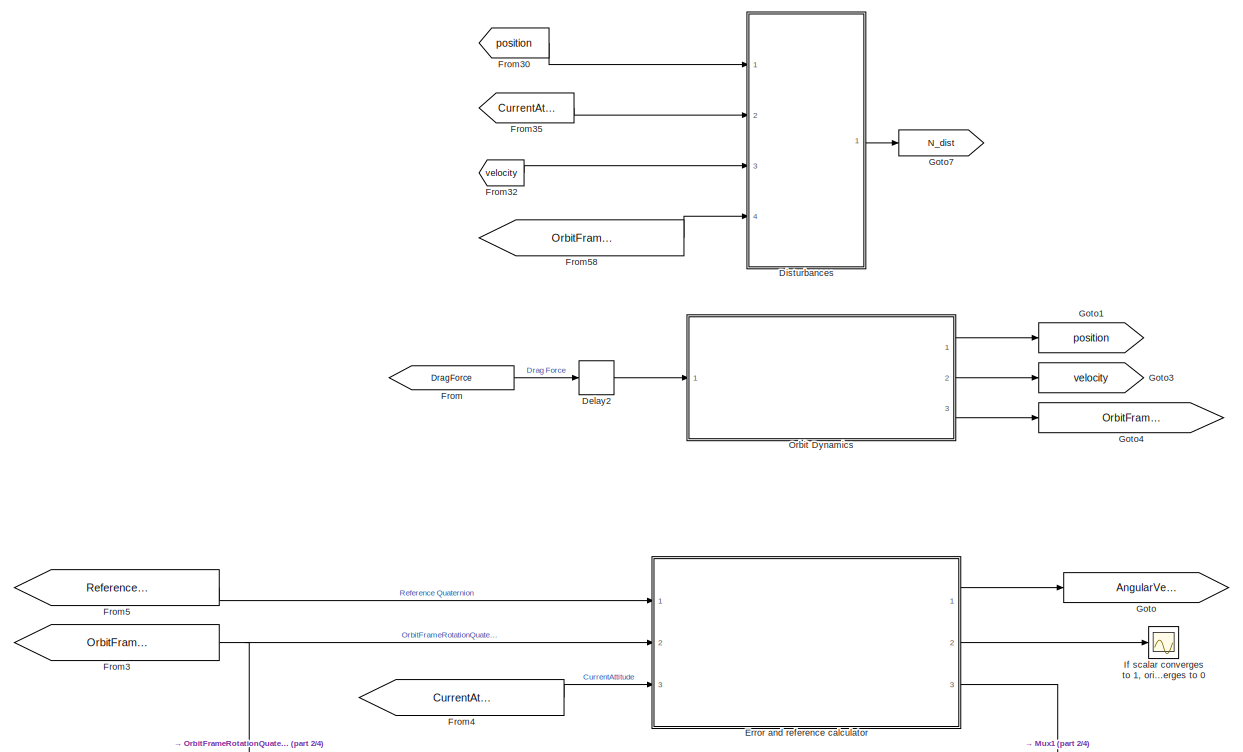
[diagram: root canvas - part 1/4, top right region]
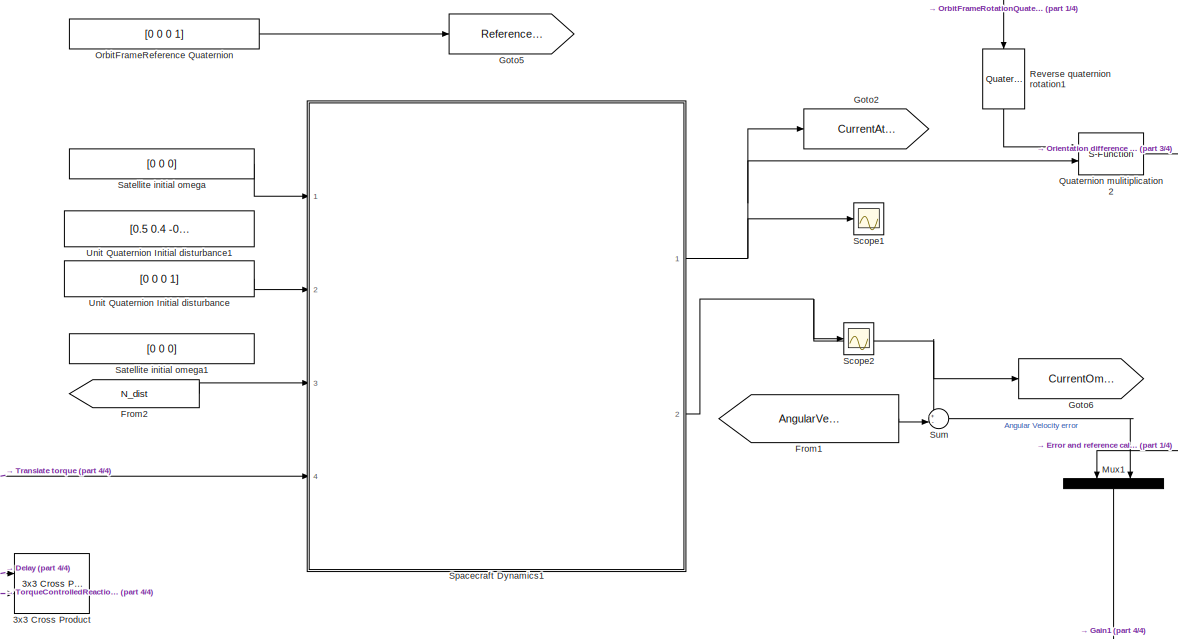
[diagram: root canvas - part 2/4, bottom center region]
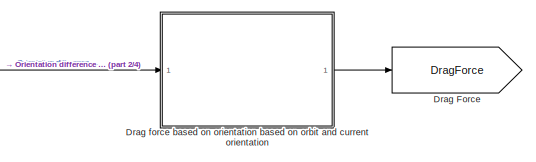
[diagram: root canvas - part 3/4, middle right region]
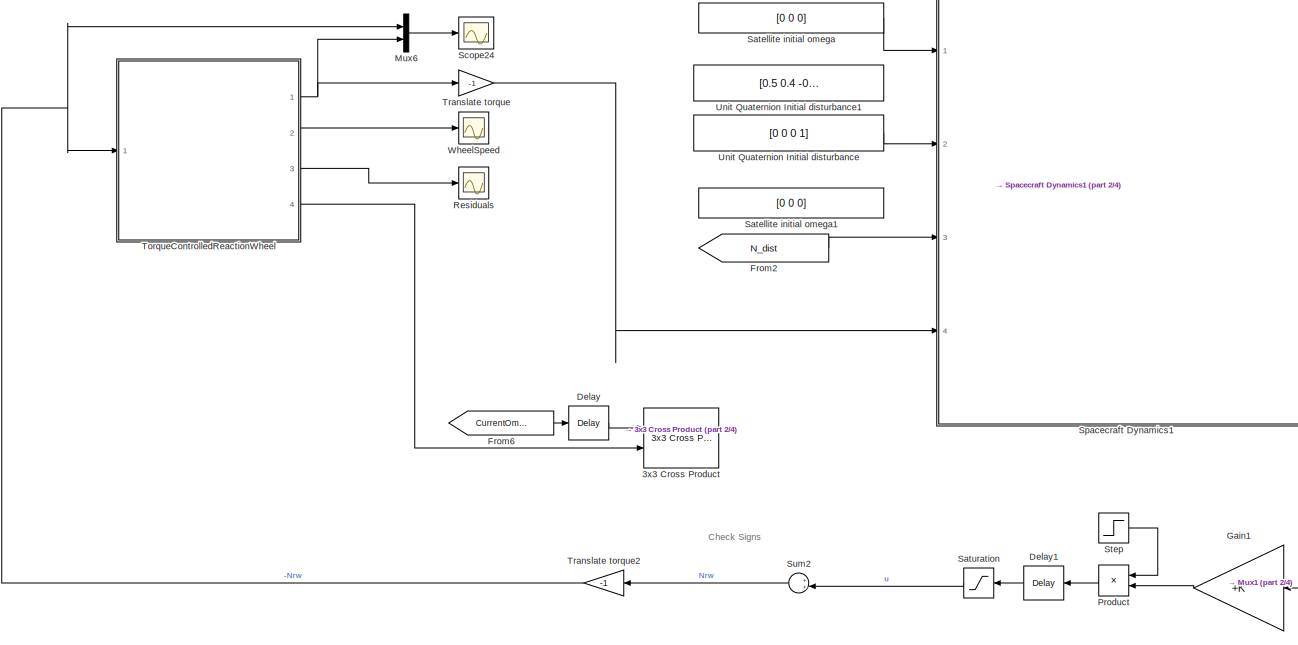
[diagram: root canvas - part 4/4, bottom left region]
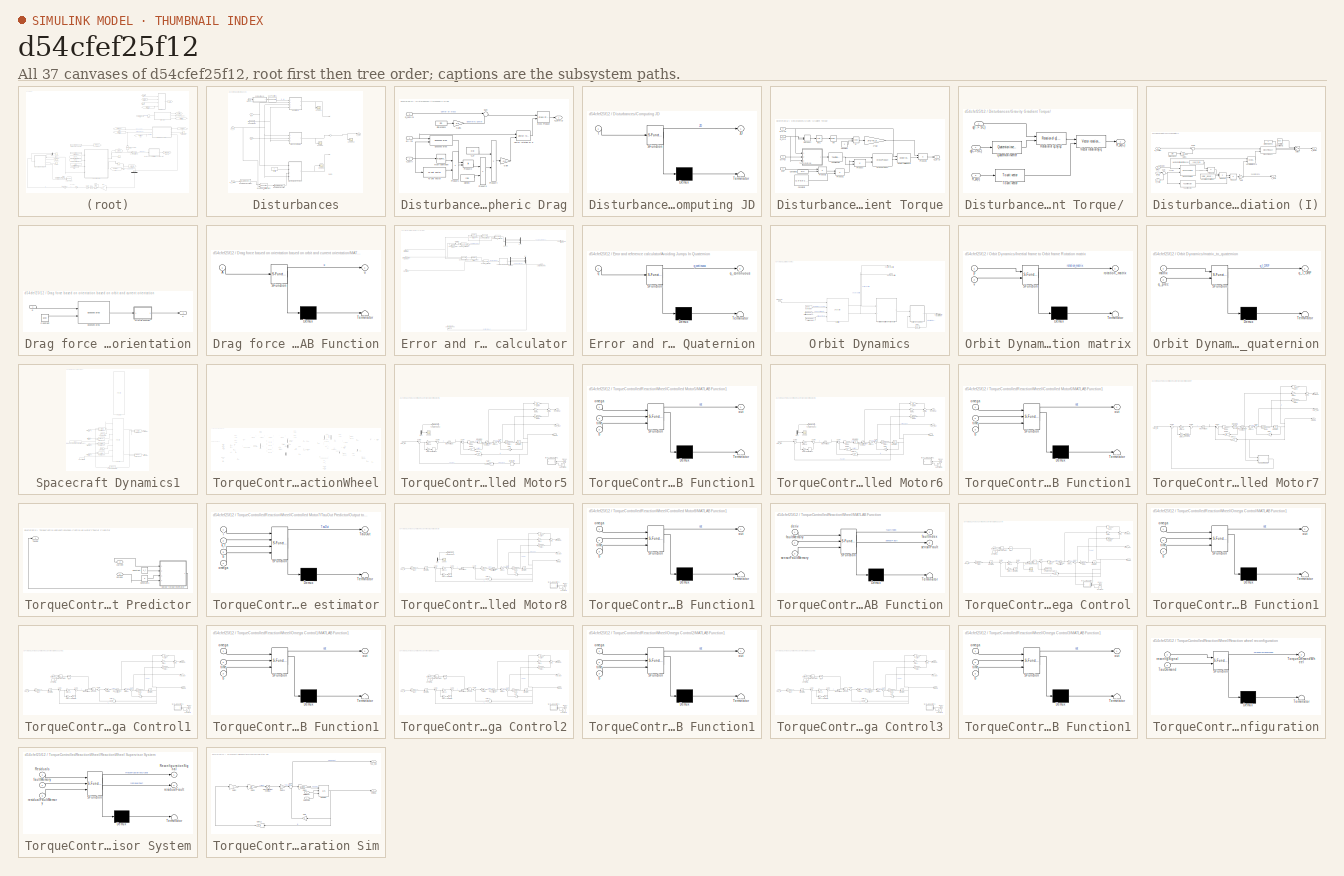
[diagram: thumbnail index - all 37 canvases of the model, root first then tree order]
MODEL slx_d54cfef25f12
KIND model
CONFIG AbsTol = auto
CONFIG EnableMultiTasking = off
CONFIG FixedStep = 1e-2
CONFIG MaxStep = 1e-1
CONFIG MinStep = 1e-6
CONFIG RelTol = 1e-9
CONFIG SampleTimeConstraint = Unconstrained
CONFIG Solver = VariableStepAuto
CONFIG SolverName = VariableStepAuto
CONFIG StartTime = 0.0
CONFIG StopTime = 100
BLOCK [Reference] 3x3 Cross Product  REF=sharedutil/3x3 Cross Product
  Ports = [2, 1]
  SourceBlock = sharedutil/3x3 Cross Product
  SourceProductBaseCode = AE
  SourceProductName = Aerospace Blockset
  SourceType = CrossProduct
BLOCK [Delay] Delay
  DelayLength = 1
  InitialCondition = [0;0;0]
  InputPortMap = u0
  Ports = [1, 1]
BLOCK [Delay] Delay1
  DelayLength = 1
  InitialCondition = [0;0;0]
  InputPortMap = u0
  Ports = [1, 1]
BLOCK [Delay] Delay2
  DelayLength = 1
  InitialCondition = 0
  InputPortMap = u0
  Ports = [1, 1]
BLOCK [SubSystem] Disturbances
  Ports = [4, 1]
  RequestExecContextInheritance = off
BLOCK [SubSystem] Disturbances/Atmospheric Drag
  AncestorBlock = aausat3_lib/Disturbances/Atmospheric
  Ports = [3, 1]
  RequestExecContextInheritance = off
BLOCK [Constant] Disturbances/Atmospheric Drag/C_D
  Value = Cd
BLOCK [Reference] Disturbances/Atmospheric Drag/Cross Product  REF=aausat3_lib/Math Utilities/Vector operations/Cross Product  (lib defined in mdl_4157f6465749, slx_d9305f96731e)
  Ports = [2, 1]
  SourceBlock = aausat3_lib/Math Utilities/Vector operations/Cross Product
  SourceProductName = AAUSAT3
  SourceType = SubSystem
BLOCK [Constant] Disturbances/Atmospheric Drag/Density
  Value = rho
BLOCK [Constant] Disturbances/Atmospheric Drag/Dimensions
  Value = Dim
BLOCK [Reference] Disturbances/Atmospheric Drag/Exposed area  REF=aausat3_lib/Other Model Utilities/Exposed area  (lib defined in mdl_4157f6465749, slx_d9305f96731e)
  Ports = [2, 1]
  SourceBlock = aausat3_lib/Other Model Utilities/Exposed area
  SourceProductName = AAUSAT3
BLOCK [Gain] Disturbances/Atmospheric Drag/Gain
  Gain = -1/2
BLOCK [Gain] Disturbances/Atmospheric Drag/Gain1
  Gain = 1/2
BLOCK [Outport] Disturbances/Atmospheric Drag/N_atm(S)
  IconDisplay = Port number
BLOCK [Product] Disturbances/Atmospheric Drag/Product1
  InputSameDT = off
  Ports = [2, 1]
  RndMeth = Floor
BLOCK [Product] Disturbances/Atmospheric Drag/Product2
  InputSameDT = off
  Ports = [2, 1]
  RndMeth = Floor
BLOCK [Product] Disturbances/Atmospheric Drag/Product3
  InputSameDT = off
  Ports = [2, 1]
  RndMeth = Floor
BLOCK [Product] Disturbances/Atmospheric Drag/Product4
  InputSameDT = off
  Ports = [2, 1]
  RndMeth = Floor
BLOCK [Inport] Disturbances/Atmospheric Drag/R_com(S)
  IconDisplay = Port number
  Port = 3
BLOCK [Sum] Disturbances/Atmospheric Drag/Sum
  IconShape = round
  InputSameDT = off
  Inputs = |-+
  OutDataTypeStr = Inherit: Inherit via internal rule
  Ports = [2, 1]
  SaturateOnIntegerOverflow = off
BLOCK [Reference] Disturbances/Atmospheric Drag/To unit vector  REF=aausat3_lib/Math Utilities/Vector operations/To unit vector  (lib defined in mdl_4157f6465749, slx_d9305f96731e)
  Ports = [1, 1]
  SourceBlock = aausat3_lib/Math Utilities/Vector operations/To unit vector
  SourceProductName = AAUSAT3
  SourceType = SubSystem
BLOCK [Inport] Disturbances/Atmospheric Drag/V_sc(I)
  IconDisplay = Port number
  Port = 2
BLOCK [Reference] Disturbances/Atmospheric Drag/Vector rotation by q  REF=aausat3_lib/Math Utilities/Quaternion operations/Vector rotation by q  (lib defined in mdl_4157f6465749, slx_d9305f96731e)
  Ports = [2, 1]
  SourceBlock = aausat3_lib/Math Utilities/Quaternion operations/Vector rotation by q
  SourceProductName = AAUSAT3
  SourceType = SubSystem
BLOCK [Math] Disturbances/Atmospheric Drag/math operation
  Operator = magnitude^2
  Ports = [1, 1]
BLOCK [Inport] Disturbances/Atmospheric Drag/q(I->S)
  IconDisplay = Port number
BLOCK [Clock] Disturbances/Clock1
  Decimation = 100
BLOCK [SubSystem] Disturbances/Computing JD
  ErrorFcn = Stateflow.Translate.translate
  PermitHierarchicalResolution = ExplicitOnly
  Ports = [1, 1]
  RequestExecContextInheritance = off
  SFBlockType = MATLAB Function
  TreatAsAtomicUnit = on
BLOCK [Demux] Disturbances/Computing JD/ Demux 
  Outputs = 1
  Ports = [1, 1]
BLOCK [S-Function] Disturbances/Computing JD/ SFunction 
  EnableBusSupport = on
  FunctionName = sf_sfun
  PortCounts = [1 2]
  Ports = [1, 2]
  SFcnIsStateOwnerBlock = off
  SFunctionDeploymentMode = off
  Tag = Stateflow S-Function faultHandling_combined 82
BLOCK [Terminator] Disturbances/Computing JD/ Terminator 
BLOCK [Outport] Disturbances/Computing JD/JD
  IconDisplay = Port number
BLOCK [Inport] Disturbances/Computing JD/t
  IconDisplay = Port number
BLOCK [Constant] Disturbances/Constant20
  Value = [0.0493,0.0972,0.0549]
BLOCK [SubSystem] Disturbances/Gravity Gradient Torque
  AncestorBlock = aausat3_lib/Disturbances/Gravity Gradient Torque
  Ports = [4, 1]
  RequestExecContextInheritance = off
BLOCK [SubSystem] Disturbances/Gravity Gradient Torque/ 
  Ports = [3, 1]
  RequestExecContextInheritance = off
BLOCK [Reference] Disturbances/Gravity Gradient Torque/ /Quaternion inverter  REF=aausat3_lib/Math Utilities/Quaternion operations/Quaternion inverter  (lib defined in mdl_4157f6465749, slx_d9305f96731e)
  Ports = [1, 1]
  SourceBlock = aausat3_lib/Math Utilities/Quaternion operations/Quaternion inverter
  SourceProductName = AAUSAT3
  SourceType = SubSystem
BLOCK [Outport] Disturbances/Gravity Gradient Torque/ /R_sc(C)
  IconDisplay = Port number
BLOCK [Inport] Disturbances/Gravity Gradient Torque/ /R_sc(I)
  IconDisplay = Port number
  Port = 3
BLOCK [Reference] Disturbances/Gravity Gradient Torque/ /Rotation of q1 by q2  REF=aausat3_lib/Math Utilities/Quaternion operations/Rotation of q1 by q2  (lib defined in mdl_4157f6465749, slx_d9305f96731e)
  Ports = [2, 1]
  SourceBlock = aausat3_lib/Math Utilities/Quaternion operations/Rotation of q1 by q2
  SourceProductName = AAUSAT3
  SourceType = SubSystem
BLOCK [Reference] Disturbances/Gravity Gradient Torque/ /To unit vector  REF=aausat3_lib/Math Utilities/Vector operations/To unit vector  (lib defined in mdl_4157f6465749, slx_d9305f96731e)
  Ports = [1, 1]
  SourceBlock = aausat3_lib/Math Utilities/Vector operations/To unit vector
  SourceProductName = AAUSAT3
  SourceType = SubSystem
BLOCK [Reference] Disturbances/Gravity Gradient Torque/ /Vector rotation by q  REF=aausat3_lib/Math Utilities/Quaternion operations/Vector rotation by q  (lib defined in mdl_4157f6465749, slx_d9305f96731e)
  Ports = [2, 1]
  SourceBlock = aausat3_lib/Math Utilities/Quaternion operations/Vector rotation by q
  SourceProductName = AAUSAT3
  SourceType = SubSystem
BLOCK [Inport] Disturbances/Gravity Gradient Torque/ /q(C->SC)
  IconDisplay = Port number
BLOCK [Inport] Disturbances/Gravity Gradient Torque/ /q(I -> SC)
  IconDisplay = Port number
  Port = 2
BLOCK [Gain] Disturbances/Gravity Gradient Torque/3*GM
  Gain = 3*G*M_earth
BLOCK [Constant] Disturbances/Gravity Gradient Torque/Constant
  Value = 3
BLOCK [Constant] Disturbances/Gravity Gradient Torque/Constant1
  Value = [1 0 0;0 1 0;0 0 1]
BLOCK [Constant] Disturbances/Gravity Gradient Torque/Constant2
  Value = [1 1 1]
  VectorParams1D = off
BLOCK [Reference] Disturbances/Gravity Gradient Torque/Cross Product  REF=aausat3_lib/Math Utilities/Vector operations/Cross Product  (lib defined in mdl_4157f6465749, slx_d9305f96731e)
  Ports = [2, 1]
  SourceBlock = aausat3_lib/Math Utilities/Vector operations/Cross Product
  SourceProductName = AAUSAT3
  SourceType = SubSystem
BLOCK [DotProduct] Disturbances/Gravity Gradient Torque/Dot roduct
  OutDataTypeStr = Inherit: Inherit via internal rule
BLOCK [Inport] Disturbances/Gravity Gradient Torque/I(C)
  IconDisplay = Port number
  Port = 2
BLOCK [Outport] Disturbances/Gravity Gradient Torque/N_gr(S)
  IconDisplay = Port number
BLOCK [Product] Disturbances/Gravity Gradient Torque/Product
  InputSameDT = off
  Multiplication = Matrix(*)
  Ports = [2, 1]
  RndMeth = Floor
BLOCK [Product] Disturbances/Gravity Gradient Torque/Product1
  InputSameDT = off
  Ports = [2, 1]
  RndMeth = Floor
BLOCK [Product] Disturbances/Gravity Gradient Torque/Product2
  InputSameDT = off
  Multiplication = Matrix(*)
  Ports = [2, 1]
  RndMeth = Floor
BLOCK [Product] Disturbances/Gravity Gradient Torque/Product3
  InputSameDT = off
  Ports = [2, 1]
  RndMeth = Floor
BLOCK [Math] Disturbances/Gravity Gradient Torque/R
  Operator = pow
  Ports = [2, 1]
BLOCK [Inport] Disturbances/Gravity Gradient Torque/R_sc(I)
  IconDisplay = Port number
BLOCK [Reference] Disturbances/Gravity Gradient Torque/To unit vector  REF=aausat3_lib/Math Utilities/Vector operations/To unit vector  (lib defined in mdl_4157f6465749, slx_d9305f96731e)
  Ports = [1, 1]
  SourceBlock = aausat3_lib/Math Utilities/Vector operations/To unit vector
  SourceProductName = AAUSAT3
  SourceType = SubSystem
BLOCK [Reference] Disturbances/Gravity Gradient Torque/Vector rotation by q  REF=aausat3_lib/Math Utilities/Quaternion operations/Vector rotation by q  (lib defined in mdl_4157f6465749, slx_d9305f96731e)
  Ports = [2, 1]
  SourceBlock = aausat3_lib/Math Utilities/Quaternion operations/Vector rotation by q
  SourceProductName = AAUSAT3
  SourceType = SubSystem
BLOCK [Math] Disturbances/Gravity Gradient Torque/inv
  Operator = reciprocal
  Ports = [1, 1]
BLOCK [Math] Disturbances/Gravity Gradient Torque/inv1
  Operator = sqrt
  Ports = [1, 1]
BLOCK [Inport] Disturbances/Gravity Gradient Torque/q(C->S)
  IconDisplay = Port number
  Port = 3
BLOCK [Inport] Disturbances/Gravity Gradient Torque/q(I->S)
  IconDisplay = Port number
  Port = 4
BLOCK [Constant] Disturbances/Inertia
  Value = I
BLOCK [Outport] Disturbances/N_dist
  IconDisplay = Port number
BLOCK [Reference] Disturbances/Quaternion inverter  REF=aausat3_lib/Math Utilities/Quaternion operations/Quaternion inverter  (lib defined in mdl_4157f6465749, slx_d9305f96731e)
  Ports = [1, 1]
  SourceBlock = aausat3_lib/Math Utilities/Quaternion operations/Quaternion inverter
  SourceProductName = AAUSAT3
  SourceType = SubSystem
BLOCK [Reference] Disturbances/Quaternion inverter10  REF=aausat3_lib/Math Utilities/Quaternion operations/Quaternion inverter  (lib defined in mdl_4157f6465749, slx_d9305f96731e)
  Ports = [1, 1]
  SourceBlock = aausat3_lib/Math Utilities/Quaternion operations/Quaternion inverter
  SourceProductName = AAUSAT3
  SourceType = SubSystem
BLOCK [S-Function] Disturbances/Quaternion mulitiplication6
  EnableBusSupport = off
  FunctionName = qmul
  Ports = [2, 1]
  SFcnIsStateOwnerBlock = off
  SFunctionDeploymentMode = off
BLOCK [SubSystem] Disturbances/Radiation (I)
  AncestorBlock = aausat3_lib/Disturbances/Radiation (I)
  Ports = [4, 2]
  RequestExecContextInheritance = off
BLOCK [Constant] Disturbances/Radiation (I)/Absorbtion Coefficient
  Value = solar_absorb_coeff
BLOCK [Constant] Disturbances/Radiation (I)/Absorbtion Coefficient1
  Value = [0;0;0]
BLOCK [Reference] Disturbances/Radiation (I)/Cross Product  REF=aausat3_lib/Math Utilities/Vector operations/Cross Product  (lib defined in mdl_4157f6465749, slx_d9305f96731e)
  Ports = [2, 1]
  SourceBlock = aausat3_lib/Math Utilities/Vector operations/Cross Product
  SourceProductName = AAUSAT3
  SourceType = SubSystem
BLOCK [Constant] Disturbances/Radiation (I)/Dimensions
  Value = Dim
BLOCK [Constant] Disturbances/Radiation (I)/Dimensions1
BLOCK [Reference] Disturbances/Radiation (I)/Exposed area  REF=aausat3_lib/Other Model Utilities/Exposed area  (lib defined in mdl_4157f6465749, slx_d9305f96731e)
  Ports = [2, 1]
  SourceBlock = aausat3_lib/Other Model Utilities/Exposed area
  SourceProductName = AAUSAT3
BLOCK [Outport] Disturbances/Radiation (I)/F_rad(I)
  IconDisplay = Port number
  Port = 2
BLOCK [Gain] Disturbances/Radiation (I)/Gain
  Gain = -1
BLOCK [Gain] Disturbances/Radiation (I)/Gain1
  Gain = 1/2
BLOCK [Constant] Disturbances/Radiation (I)/Momentum flux from the sun
  Value = solar_m_flux
BLOCK [Outport] Disturbances/Radiation (I)/N_rad(S)
  IconDisplay = Port number
BLOCK [Product] Disturbances/Radiation (I)/Product1
  InputSameDT = off
  Ports = [2, 1]
  RndMeth = Floor
BLOCK [Product] Disturbances/Radiation (I)/Product2
  InputSameDT = off
  Ports = [2, 1]
  RndMeth = Floor
BLOCK [Product] Disturbances/Radiation (I)/Product4
  InputSameDT = off
  Ports = [2, 1]
  RndMeth = Floor
BLOCK [Inport] Disturbances/Radiation (I)/R_com(S)
  IconDisplay = Port number
  Port = 4
BLOCK [Inport] Disturbances/Radiation (I)/R_s(I)
  IconDisplay = Port number
BLOCK [Inport] Disturbances/Radiation (I)/R_sat(I)
  IconDisplay = Port number
  Port = 2
BLOCK [Sum] Disturbances/Radiation (I)/Sum
  IconShape = round
  InputSameDT = off
  Inputs = |+-
  OutDataTypeStr = Inherit: Inherit via internal rule
  Ports = [2, 1]
BLOCK [Sum] Disturbances/Radiation (I)/Sum1
  IconShape = round
  InputSameDT = off
  Inputs = |-+
  OutDataTypeStr = Inherit: Inherit via internal rule
  Ports = [2, 1]
  SaturateOnIntegerOverflow = off
BLOCK [Switch] Disturbances/Radiation (I)/Switch
  Criteria = u2 ~= 0
  InputSameDT = off
  SaturateOnIntegerOverflow = off
BLOCK [Reference] Disturbances/Radiation (I)/To unit vector  REF=aausat3_lib/Math Utilities/Vector operations/To unit vector  (lib defined in mdl_4157f6465749, slx_d9305f96731e)
  Ports = [1, 1]
  SourceBlock = aausat3_lib/Math Utilities/Vector operations/To unit vector
  SourceProductName = AAUSAT3
  SourceType = SubSystem
BLOCK [Reference] Disturbances/Radiation (I)/Vector rotation by q  REF=aausat3_lib/Math Utilities/Quaternion operations/Vector rotation by q  (lib defined in mdl_4157f6465749, slx_d9305f96731e)
  Ports = [2, 1]
  SourceBlock = aausat3_lib/Math Utilities/Quaternion operations/Vector rotation by q
  SourceProductName = AAUSAT3
  SourceType = SubSystem
BLOCK [Inport] Disturbances/Radiation (I)/q(I->S)
  IconDisplay = Port number
  Port = 3
BLOCK [Scope] Disturbances/Scope1
  Floating = off
  NumInputPorts = 1
  Ports = [1]
  ScopeSpecificationString = Simulink.scopes.TimeScopeBlockCfg('CurrentConfiguration', extmgr.ConfigurationSet(extmgr.Configuration('Core','General UI',true),extmgr.Configuration('Core','Source UI',true),extmgr.Configuration('Sources','WiredSimulink',true,'DataLoggingVariableName','ScopeData1'),extmgr.Configuration('Visuals','Time Domain',true,'SerializedDisplays',{struct('MinYLimReal','-1.00000','MaxYLimReal','1.00000','YLab...<+1515ch>
BLOCK [Scope] Disturbances/Scope19
  Floating = off
  NumInputPorts = 1
  Ports = [1]
  ScopeSpecificationString = Simulink.scopes.TimeScopeBlockCfg('CurrentConfiguration', extmgr.ConfigurationSet(extmgr.Configuration('Core','General UI',true),extmgr.Configuration('Core','Source UI',true),extmgr.Configuration('Sources','WiredSimulink',true,'DataLoggingVariableName','ScopeData3'),extmgr.Configuration('Visuals','Time Domain',true,'SerializedDisplays',{struct('MinYLimReal','-0.0000000006','MaxYLimReal','0.0000000...<+1522ch>
BLOCK [Scope] Disturbances/Scope2
  Floating = off
  NumInputPorts = 1
  Ports = [1]
  ScopeSpecificationString = Simulink.scopes.TimeScopeBlockCfg('CurrentConfiguration', extmgr.ConfigurationSet(extmgr.Configuration('Core','General UI',true),extmgr.Configuration('Core','Source UI',true),extmgr.Configuration('Sources','WiredSimulink',true,'DataLoggingVariableName','ScopeData2'),extmgr.Configuration('Visuals','Time Domain',true,'SerializedDisplays',{struct('MinYLimReal','-0.0000000006','MaxYLimReal','0.0000000...<+1558ch>
BLOCK [Scope] Disturbances/Scope3
  Floating = off
  NumInputPorts = 1
  Ports = [1]
  ScopeSpecificationString = Simulink.scopes.TimeScopeBlockCfg('CurrentConfiguration', extmgr.ConfigurationSet(extmgr.Configuration('Core','General UI',true),extmgr.Configuration('Core','Source UI',true),extmgr.Configuration('Sources','WiredSimulink',true,'DataLoggingVariableName','ScopeData5'),extmgr.Configuration('Visuals','Time Domain',true,'SerializedDisplays',{struct('MinYLimReal','-0.0000000007','MaxYLimReal','0.0000000...<+1575ch>
BLOCK [Sum] Disturbances/Sum1
  InputSameDT = off
  Inputs = +++
  OutDataTypeStr = Inherit: Inherit via internal rule
  Ports = [3, 1]
BLOCK [Reference] Disturbances/Sun Position1  REF=aausat3_lib/Orbit and Ephemeris/Ephemeris/Sun Position  (lib defined in mdl_4157f6465749, slx_d9305f96731e)
  Ports = [1, 1]
  SourceBlock = aausat3_lib/Orbit and Ephemeris/Ephemeris/Sun Position
  SourceProductName = AAUSAT3
  SourceType = SubSystem
BLOCK [Inport] Disturbances/p1 
  IconDisplay = Port number
BLOCK [Inport] Disturbances/q_I_ORF
  IconDisplay = Port number
  Port = 4
BLOCK [Inport] Disturbances/q_I_S 
  IconDisplay = Port number
  Port = 2
BLOCK [Inport] Disturbances/v1 
  IconDisplay = Port number
  Port = 3
BLOCK [Goto] Drag Force
  GotoTag = DragForce
BLOCK [SubSystem] Drag force based on orientation based on orbit and current orientation
  Ports = [1, 1]
  RequestExecContextInheritance = off
  TreatAsAtomicUnit = on
BLOCK [Constant] Drag force based on orientation based on orbit and current orientation/Constant
  Value = [1 0 0]
BLOCK [Reference] Drag force based on orientation based on orbit and current orientation/Exposed area  REF=aausat3_lib/Other Model Utilities/Exposed area  (lib defined in mdl_4157f6465749, slx_d9305f96731e)
  Ports = [2, 1]
  SourceBlock = aausat3_lib/Other Model Utilities/Exposed area
  SourceProductName = AAUSAT3
BLOCK [SubSystem] Drag force based on orientation based on orbit and current orientation/MATLAB Function
  ErrorFcn = Stateflow.Translate.translate
  PermitHierarchicalResolution = ExplicitOnly
  Ports = [1, 1]
  RequestExecContextInheritance = off
  SFBlockType = MATLAB Function
  TreatAsAtomicUnit = on
BLOCK [Demux] Drag force based on orientation based on orbit and current orientation/MATLAB Function/ Demux 
  Outputs = 1
  Ports = [1, 1]
BLOCK [S-Function] Drag force based on orientation based on orbit and current orientation/MATLAB Function/ SFunction 
  EnableBusSupport = on
  FunctionName = sf_sfun
  PortCounts = [1 2]
  Ports = [1, 2]
  SFcnIsStateOwnerBlock = off
  SFunctionDeploymentMode = off
  Tag = Stateflow S-Function faultHandling_combined 14
BLOCK [Terminator] Drag force based on orientation based on orbit and current orientation/MATLAB Function/ Terminator 
BLOCK [Inport] Drag force based on orientation based on orbit and current orientation/MATLAB Function/A
  IconDisplay = Port number
BLOCK [Outport] Drag force based on orientation based on orbit and current orientation/MATLAB Function/u
  IconDisplay = Port number
BLOCK [Inport] Drag force based on orientation based on orbit and current orientation/q
  IconDisplay = Port number
BLOCK [Outport] Drag force based on orientation based on orbit and current orientation/u
  IconDisplay = Port number
BLOCK [SubSystem] Error and reference calculator
  Ports = [3, 3]
  RequestExecContextInheritance = off
BLOCK [Outport] Error and reference calculator/AngularVelocityReference
  IconDisplay = Port number
BLOCK [SubSystem] Error and reference calculator/Avoiding Jumps In Quaternion
  ErrorFcn = Stateflow.Translate.translate
  PermitHierarchicalResolution = ExplicitOnly
  Ports = [1, 1]
  RequestExecContextInheritance = off
  SFBlockType = MATLAB Function
  TreatAsAtomicUnit = on
BLOCK [Demux] Error and reference calculator/Avoiding Jumps In Quaternion/ Demux 
  Outputs = 1
  Ports = [1, 1]
BLOCK [S-Function] Error and reference calculator/Avoiding Jumps In Quaternion/ SFunction 
  EnableBusSupport = on
  FunctionName = sf_sfun
  PortCounts = [1 2]
  Ports = [1, 2]
  SFcnIsStateOwnerBlock = off
  SFunctionDeploymentMode = off
  Tag = Stateflow S-Function faultHandling_combined 3
BLOCK [Terminator] Error and reference calculator/Avoiding Jumps In Quaternion/ Terminator 
BLOCK [Inport] Error and reference calculator/Avoiding Jumps In Quaternion/q
  IconDisplay = Port number
BLOCK [Outport] Error and reference calculator/Avoiding Jumps In Quaternion/q_continuous
  IconDisplay = Port number
BLOCK [Inport] Error and reference calculator/CurrentAttitude
  IconDisplay = Port number
  Port = 3
BLOCK [Demux] Error and reference calculator/Demux2
  DisplayOption = bar
  Ports = [1, 4]
BLOCK [Demux] Error and reference calculator/Demux3
  DisplayOption = bar
  Ports = [1, 4]
BLOCK [Derivative] Error and reference calculator/Derivative
BLOCK [Gain] Error and reference calculator/Gain
  Gain = 2
  OutDataTypeStr = Inherit: Inherit via internal rule
  ParamDataTypeStr = Inherit: Inherit via internal rule
  SaturateOnIntegerOverflow = off
BLOCK [Mux] Error and reference calculator/Mux
  DisplayOption = bar
  Inputs = 3
  Ports = [3, 1]
BLOCK [Mux] Error and reference calculator/Mux2
  DisplayOption = bar
  Inputs = 3
  Ports = [3, 1]
BLOCK [Inport] Error and reference calculator/OrbitFrameRotationQuaternion
  IconDisplay = Port number
  Port = 2
BLOCK [Outport] Error and reference calculator/Orientation Error (vector component)
  IconDisplay = Port number
  Port = 3
BLOCK [Outport] Error and reference calculator/Quaternion error scalar component
  IconDisplay = Port number
  Port = 2
BLOCK [S-Function] Error and reference calculator/Quaternion mulitiplication
  EnableBusSupport = off
  FunctionName = qmul
  Ports = [2, 1]
  SFcnIsStateOwnerBlock = off
  SFunctionDeploymentMode = off
BLOCK [S-Function] Error and reference calculator/Quaternion mulitiplication1
  EnableBusSupport = off
  FunctionName = qmul
  Ports = [2, 1]
  SFcnIsStateOwnerBlock = off
  SFunctionDeploymentMode = off
BLOCK [S-Function] Error and reference calculator/Quaternion mulitiplication3
  EnableBusSupport = off
  FunctionName = qmul
  Ports = [2, 1]
  SFcnIsStateOwnerBlock = off
  SFunctionDeploymentMode = off
BLOCK [S-Function] Error and reference calculator/Quaternion mulitiplication4
  EnableBusSupport = off
  FunctionName = qmul
  Ports = [2, 1]
  SFcnIsStateOwnerBlock = off
  SFunctionDeploymentMode = off
BLOCK [S-Function] Error and reference calculator/Quaternion mulitiplication5
  EnableBusSupport = off
  FunctionName = qmul
  Ports = [2, 1]
  SFcnIsStateOwnerBlock = off
  SFunctionDeploymentMode = off
BLOCK [Inport] Error and reference calculator/Reference Quaternion
  IconDisplay = Port number
BLOCK [Reference] Error and reference calculator/Reverse quaternion rotation  REF=aausat3_lib/Math Utilities/Quaternion operations/Vector rotation by q/Quaternion inverter  (lib defined in mdl_4157f6465749, slx_d9305f96731e)
  Ports = [1, 1]
  SourceBlock = aausat3_lib/Math Utilities/Quaternion operations/Vector rotation by q/Quaternion inverter
  SourceProductName = AAUSAT3
  SourceType = SubSystem
BLOCK [Reference] Error and reference calculator/Reverse quaternion rotation2  REF=aausat3_lib/Math Utilities/Quaternion operations/Vector rotation by q/Quaternion inverter  (lib defined in mdl_4157f6465749, slx_d9305f96731e)
  Ports = [1, 1]
  SourceBlock = aausat3_lib/Math Utilities/Quaternion operations/Vector rotation by q/Quaternion inverter
  SourceProductName = AAUSAT3
  SourceType = SubSystem
BLOCK [Reference] Error and reference calculator/Reverse quaternion rotation4  REF=aausat3_lib/Math Utilities/Quaternion operations/Vector rotation by q/Quaternion inverter  (lib defined in mdl_4157f6465749, slx_d9305f96731e)
  Ports = [1, 1]
  SourceBlock = aausat3_lib/Math Utilities/Quaternion operations/Vector rotation by q/Quaternion inverter
  SourceProductName = AAUSAT3
  SourceType = SubSystem
BLOCK [From] From
  GotoTag = DragForce
BLOCK [From] From1
  GotoTag = AngularVelocityReference
BLOCK [From] From2
  GotoTag = N_dist
BLOCK [From] From3
  GotoTag = OrbitFrameRotationQuaternion
BLOCK [From] From30
  GotoTag = position
BLOCK [From] From32
  GotoTag = velocity
BLOCK [From] From35
  GotoTag = CurrentAttitude
BLOCK [From] From4
  GotoTag = CurrentAttitude
BLOCK [From] From5
  GotoTag = ReferenceQuaternion
BLOCK [From] From58
  GotoTag = OrbitFrameRotationQuaternion
BLOCK [From] From6
  GotoTag = CurrentOmega
BLOCK [Gain] Gain1
  Gain = +K
  Multiplication = Matrix(K*u)
  OutDataTypeStr = Inherit: Inherit via internal rule
  ParamDataTypeStr = Inherit: Inherit via internal rule
  SaturateOnIntegerOverflow = off
BLOCK [Goto] Goto
  GotoTag = AngularVelocityReference
BLOCK [Goto] Goto1
  GotoTag = position
BLOCK [Goto] Goto2
  GotoTag = CurrentAttitude
BLOCK [Goto] Goto3
  GotoTag = velocity
BLOCK [Goto] Goto4
  GotoTag = OrbitFrameRotationQuaternion
BLOCK [Goto] Goto5
  GotoTag = ReferenceQuaternion
BLOCK [Goto] Goto6
  GotoTag = CurrentOmega
BLOCK [Goto] Goto7
  GotoTag = N_dist
BLOCK [Scope] If scalar converges to 1, orientation error converges to 0
  Floating = off
  NumInputPorts = 1
  Ports = [1]
  ScopeSpecificationString = Simulink.scopes.TimeScopeBlockCfg('CurrentConfiguration', extmgr.ConfigurationSet(extmgr.Configuration('Core','General UI',true),extmgr.Configuration('Core','Source UI',true),extmgr.Configuration('Sources','WiredSimulink',true,'DataLoggingVariableName','ScopeData1'),extmgr.Configuration('Visuals','Time Domain',true,'SerializedDisplays',{struct('MinYLimReal','-0.02921','MaxYLimReal','1.11436','YLab...<+1526ch>
BLOCK [Mux] Mux1
  DisplayOption = bar
  Inputs = 2
  Ports = [2, 1]
BLOCK [Mux] Mux6
  DisplayOption = bar
  Inputs = 2
  Ports = [2, 1]
BLOCK [SubSystem] Orbit Dynamics
  Ports = [1, 3]
  RequestExecContextInheritance = off
BLOCK [Constant] Orbit Dynamics/Constant1
  Value = [0 0 0]
BLOCK [Delay] Orbit Dynamics/Delay
  DelayLength = 1
  InitialCondition = 0
  InputPortMap = u0
  Ports = [1, 1]
BLOCK [Inport] Orbit Dynamics/Drag Force
  IconDisplay = Port number
BLOCK [Outport] Orbit Dynamics/ECI to Orbit rotation quaternion
  IconDisplay = Port number
  Port = 3
BLOCK [SubSystem] Orbit Dynamics/Inertial frame to Orbit frame Rotation matrix
  ErrorFcn = Stateflow.Translate.translate
  PermitHierarchicalResolution = ExplicitOnly
  Ports = [2, 1]
  RequestExecContextInheritance = off
  SFBlockType = MATLAB Function
  TreatAsAtomicUnit = on
BLOCK [Demux] Orbit Dynamics/Inertial frame to Orbit frame Rotation matrix/ Demux 
  Outputs = 1
  Ports = [1, 1]
BLOCK [S-Function] Orbit Dynamics/Inertial frame to Orbit frame Rotation matrix/ SFunction 
  EnableBusSupport = on
  FunctionName = sf_sfun
  PortCounts = [2 2]
  Ports = [2, 2]
  SFcnIsStateOwnerBlock = off
  SFunctionDeploymentMode = off
  Tag = Stateflow S-Function faultHandling_combined 2
BLOCK [Terminator] Orbit Dynamics/Inertial frame to Orbit frame Rotation matrix/ Terminator 
BLOCK [Inport] Orbit Dynamics/Inertial frame to Orbit frame Rotation matrix/p
  IconDisplay = Port number
BLOCK [Outport] Orbit Dynamics/Inertial frame to Orbit frame Rotation matrix/rotation_matrix
  IconDisplay = Port number
BLOCK [Inport] Orbit Dynamics/Inertial frame to Orbit frame Rotation matrix/v
  IconDisplay = Port number
  Port = 2
BLOCK [Constant] Orbit Dynamics/Initial velocity
  Value = [0 7.5459e+03 0]
BLOCK [Constant] Orbit Dynamics/Orbit frame distance
  Value = [7*10^6 0 0]
BLOCK [Outport] Orbit Dynamics/Position of satellite
  IconDisplay = Port number
BLOCK [S-Function] Orbit Dynamics/Satelllite 1
  EnableBusSupport = off
  FunctionName = satDynamics_J2
  Parameters = 1, 5.9722*10^(24), 6.674*10^(-11), 6371009, 1.08262668*10^-3
  Ports = [4, 2]
  SFcnIsStateOwnerBlock = off
  SFunctionDeploymentMode = off
BLOCK [Outport] Orbit Dynamics/Velocity of satellite
  IconDisplay = Port number
  Port = 2
BLOCK [SubSystem] Orbit Dynamics/matrix_to_quaternion
  ErrorFcn = Stateflow.Translate.translate
  PermitHierarchicalResolution = ExplicitOnly
  Ports = [2, 1]
  RequestExecContextInheritance = off
  SFBlockType = MATLAB Function
  TreatAsAtomicUnit = on
BLOCK [Demux] Orbit Dynamics/matrix_to_quaternion/ Demux 
  Outputs = 1
  Ports = [1, 1]
BLOCK [S-Function] Orbit Dynamics/matrix_to_quaternion/ SFunction 
  EnableBusSupport = on
  FunctionName = sf_sfun
  PortCounts = [2 2]
  Ports = [2, 2]
  SFcnIsStateOwnerBlock = off
  SFunctionDeploymentMode = off
  Tag = Stateflow S-Function faultHandling_combined 1
BLOCK [Terminator] Orbit Dynamics/matrix_to_quaternion/ Terminator 
BLOCK [Inport] Orbit Dynamics/matrix_to_quaternion/matrix
  IconDisplay = Port number
BLOCK [Outport] Orbit Dynamics/matrix_to_quaternion/q_I_ORF
  IconDisplay = Port number
BLOCK [Inport] Orbit Dynamics/matrix_to_quaternion/q_prec
  IconDisplay = Port number
  Port = 2
BLOCK [Constant] OrbitFrameReference Quaternion
  Value = [0 0 0 1]
BLOCK [Product] Product
  InputSameDT = off
  OutDataTypeStr = Inherit: Inherit via internal rule
  Ports = [2, 1]
  RndMeth = Floor
  SaturateOnIntegerOverflow = off
BLOCK [S-Function] Quaternion mulitiplication2
  EnableBusSupport = off
  FunctionName = qmul
  Ports = [2, 1]
  SFcnIsStateOwnerBlock = off
  SFunctionDeploymentMode = off
BLOCK [Scope] Residuals
  Floating = off
  NumInputPorts = 1
  Ports = [1]
  ScopeSpecificationString = Simulink.scopes.TimeScopeBlockCfg('CurrentConfiguration', extmgr.ConfigurationSet(extmgr.Configuration('Core','General UI',true),extmgr.Configuration('Core','Source UI',true),extmgr.Configuration('Sources','WiredSimulink',true,'DataLoggingVariableName','ScopeData2'),extmgr.Configuration('Visuals','Time Domain',true,'SerializedDisplays',{struct('MinYLimReal','-0.00000045','MaxYLimReal','0.00000005'...<+1627ch>
BLOCK [Reference] Reverse quaternion rotation1  REF=aausat3_lib/Math Utilities/Quaternion operations/Vector rotation by q/Quaternion inverter  (lib defined in mdl_4157f6465749, slx_d9305f96731e)
  Ports = [1, 1]
  SourceBlock = aausat3_lib/Math Utilities/Quaternion operations/Vector rotation by q/Quaternion inverter
  SourceProductName = AAUSAT3
  SourceType = SubSystem
BLOCK [Constant] Satellite initial omega
  Value = [0 0 0]
BLOCK [Constant] Satellite initial omega1
  Value = [0 0 0]
BLOCK [Saturate] Saturation
  InputPortMap = u0
  LowerLimit = -2*10^-3
  Ports = [1, 1]
  UpperLimit = 2*10^-3
BLOCK [Scope] Scope1
  Floating = off
  NumInputPorts = 1
  Ports = [1]
  ScopeSpecificationString = Simulink.scopes.TimeScopeBlockCfg('CurrentConfiguration', extmgr.ConfigurationSet(extmgr.Configuration('Core','General UI',true),extmgr.Configuration('Core','Source UI',true),extmgr.Configuration('Sources','WiredSimulink',true,'DataLoggingVariableName','ScopeData3'),extmgr.Configuration('Visuals','Time Domain',true,'SerializedDisplays',{struct('MinYLimReal','-0.12505','MaxYLimReal','1.12501','YLab...<+1542ch>
BLOCK [Scope] Scope2
  Floating = off
  NumInputPorts = 1
  Ports = [1]
  ScopeSpecificationString = Simulink.scopes.TimeScopeBlockCfg('CurrentConfiguration', extmgr.ConfigurationSet(extmgr.Configuration('Core','General UI',true),extmgr.Configuration('Core','Source UI',true),extmgr.Configuration('Sources','WiredSimulink',true,'DataLoggingVariableName','ScopeData4'),extmgr.Configuration('Visuals','Time Domain',true,'SerializedDisplays',{struct('MinYLimReal','-0.02877','MaxYLimReal','0.02587','YLab...<+1540ch>
BLOCK [Scope] Scope24
  Floating = off
  NumInputPorts = 1
  Ports = [1]
  ScopeSpecificationString = Simulink.scopes.TimeScopeBlockCfg('CurrentConfiguration', extmgr.ConfigurationSet(extmgr.Configuration('Core','General UI',true),extmgr.Configuration('Core','Source UI',true),extmgr.Configuration('Sources','WiredSimulink',true,'DataLoggingVariableName','ScopeData3'),extmgr.Configuration('Visuals','Time Domain',true,'SerializedDisplays',{struct('MinYLimReal','-0.00000081','MaxYLimReal','0.00000004'...<+1566ch>
BLOCK [SubSystem] Spacecraft Dynamics1
  AncestorBlock = spacecraft_dynamics2_lib/Spacecraft Dynamics
  Ports = [4, 2]
  RequestExecContextInheritance = off
BLOCK [Inport] Spacecraft Dynamics1/Actuator N_mt + N_rw - w x h(sc)
  IconDisplay = Port number
  Port = 4
BLOCK [Outport] Spacecraft Dynamics1/Angular rate W(SC)
  IconDisplay = Port number
  Port = 2
BLOCK [Outport] Spacecraft Dynamics1/Attitude q(I->SC)
  IconDisplay = Port number
BLOCK [Inport] Spacecraft Dynamics1/Disturbance N_dist(SC)
  IconDisplay = Port number
  Port = 3
BLOCK [Constant] Spacecraft Dynamics1/Dummy Nrw input
  Value = [0 0 0]
BLOCK [Inport] Spacecraft Dynamics1/Initial Values W_i(SC)
  IconDisplay = Port number
BLOCK [Inport] Spacecraft Dynamics1/Initial Values q(I->SC)
  IconDisplay = Port number
  Port = 2
BLOCK [Constant] Spacecraft Dynamics1/Principal and Body frame is aligned, Principal frame  q(SC->P)
  Value = [0 0 0 1]
BLOCK [Constant] Spacecraft Dynamics1/Reaction wheel initial ang moment
  Value = [0 0 0 ]
BLOCK [Reference] Spacecraft Dynamics1/Reverse quaternion rotation  REF=aausat3_lib/Math Utilities/Quaternion operations/Vector rotation by q/Quaternion inverter  (lib defined in mdl_4157f6465749, slx_d9305f96731e)
  Ports = [1, 1]
  SourceBlock = aausat3_lib/Math Utilities/Quaternion operations/Vector rotation by q/Quaternion inverter
  SourceProductName = AAUSAT3
  SourceType = SubSystem
BLOCK [Reference] Spacecraft Dynamics1/Rotation of q1 by q1  REF=aausat3_lib/Math Utilities/Quaternion operations/Rotation of q1 by q2  (lib defined in mdl_4157f6465749, slx_d9305f96731e)
  Ports = [2, 1]
  SourceBlock = aausat3_lib/Math Utilities/Quaternion operations/Rotation of q1 by q2
  SourceProductName = AAUSAT3
  SourceType = SubSystem
BLOCK [Reference] Spacecraft Dynamics1/Rotation of q1 by q2  REF=aausat3_lib/Math Utilities/Quaternion operations/Rotation of q1 by q2  (lib defined in mdl_4157f6465749, slx_d9305f96731e)
  Ports = [2, 1]
  SourceBlock = aausat3_lib/Math Utilities/Quaternion operations/Rotation of q1 by q2
  SourceProductName = AAUSAT3
  SourceType = SubSystem
BLOCK [S-Function] Spacecraft Dynamics1/S-Function
  EnableBusSupport = off
  FunctionName = scdynamics3
  Ports = [7, 3]
  SFcnIsStateOwnerBlock = off
  SFunctionDeploymentMode = off
BLOCK [S-Function] Spacecraft Dynamics1/S-Function1
  Commented = on
  EnableBusSupport = off
  FunctionName = scdynamics2
  Ports = [7, 3]
  SFcnIsStateOwnerBlock = off
  SFunctionDeploymentMode = off
BLOCK [Constant] Spacecraft Dynamics1/Spacecraft Inertia I(P)
  Value = I
BLOCK [Reference] Spacecraft Dynamics1/Vector rotation by q  REF=aausat3_lib/Math Utilities/Quaternion operations/Vector rotation by q  (lib defined in mdl_4157f6465749, slx_d9305f96731e)
  Ports = [2, 1]
  SourceBlock = aausat3_lib/Math Utilities/Quaternion operations/Vector rotation by q
  SourceProductName = AAUSAT3
  SourceType = SubSystem
BLOCK [Reference] Spacecraft Dynamics1/Vector rotation by q2  REF=aausat3_lib/Math Utilities/Quaternion operations/Vector rotation by q  (lib defined in mdl_4157f6465749, slx_d9305f96731e)
  Ports = [2, 1]
  SourceBlock = aausat3_lib/Math Utilities/Quaternion operations/Vector rotation by q
  SourceProductName = AAUSAT3
  SourceType = SubSystem
BLOCK [Reference] Spacecraft Dynamics1/Vector rotation by q3  REF=aausat3_lib/Math Utilities/Quaternion operations/Vector rotation by q  (lib defined in mdl_4157f6465749, slx_d9305f96731e)
  Ports = [2, 1]
  SourceBlock = aausat3_lib/Math Utilities/Quaternion operations/Vector rotation by q
  SourceProductName = AAUSAT3
  SourceType = SubSystem
BLOCK [Reference] Spacecraft Dynamics1/Vector rotation by q4  REF=aausat3_lib/Math Utilities/Quaternion operations/Vector rotation by q  (lib defined in mdl_4157f6465749, slx_d9305f96731e)
  Ports = [2, 1]
  SourceBlock = aausat3_lib/Math Utilities/Quaternion operations/Vector rotation by q
  SourceProductName = AAUSAT3
  SourceType = SubSystem
BLOCK [Step] Step
  After = 0
  Before = 1
  SampleTime = 0
  Time = 1000
BLOCK [Sum] Sum
  IconShape = round
  InputSameDT = off
  Inputs = +-|
  OutDataTypeStr = Inherit: Inherit via internal rule
  Ports = [2, 1]
  SaturateOnIntegerOverflow = off
BLOCK [Sum] Sum2
  IconShape = round
  InputSameDT = off
  Inputs = ++|
  OutDataTypeStr = Inherit: Inherit via internal rule
  Ports = [2, 1]
  SaturateOnIntegerOverflow = off
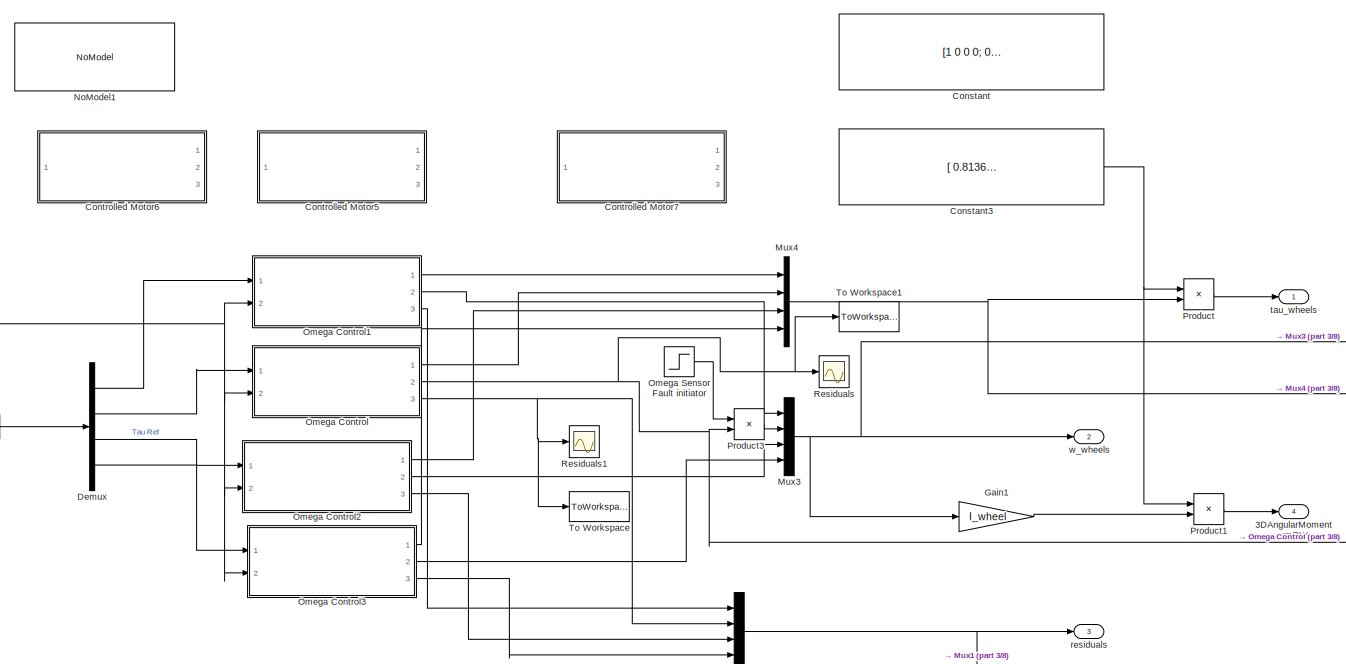
[diagram: TorqueControlledReactionWheel - part 1/8, top center region]
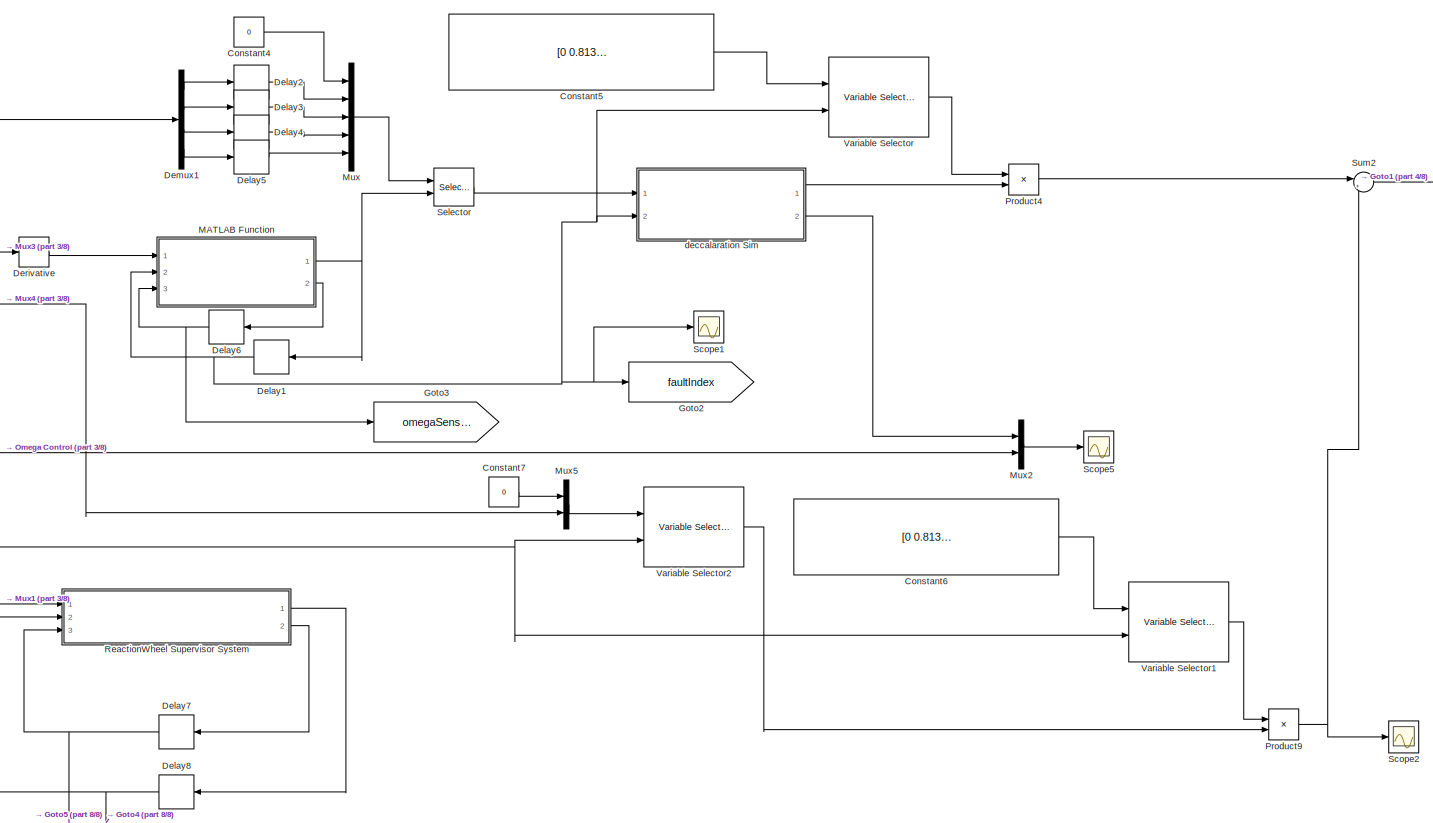
[diagram: TorqueControlledReactionWheel - part 2/8, right side, full height]
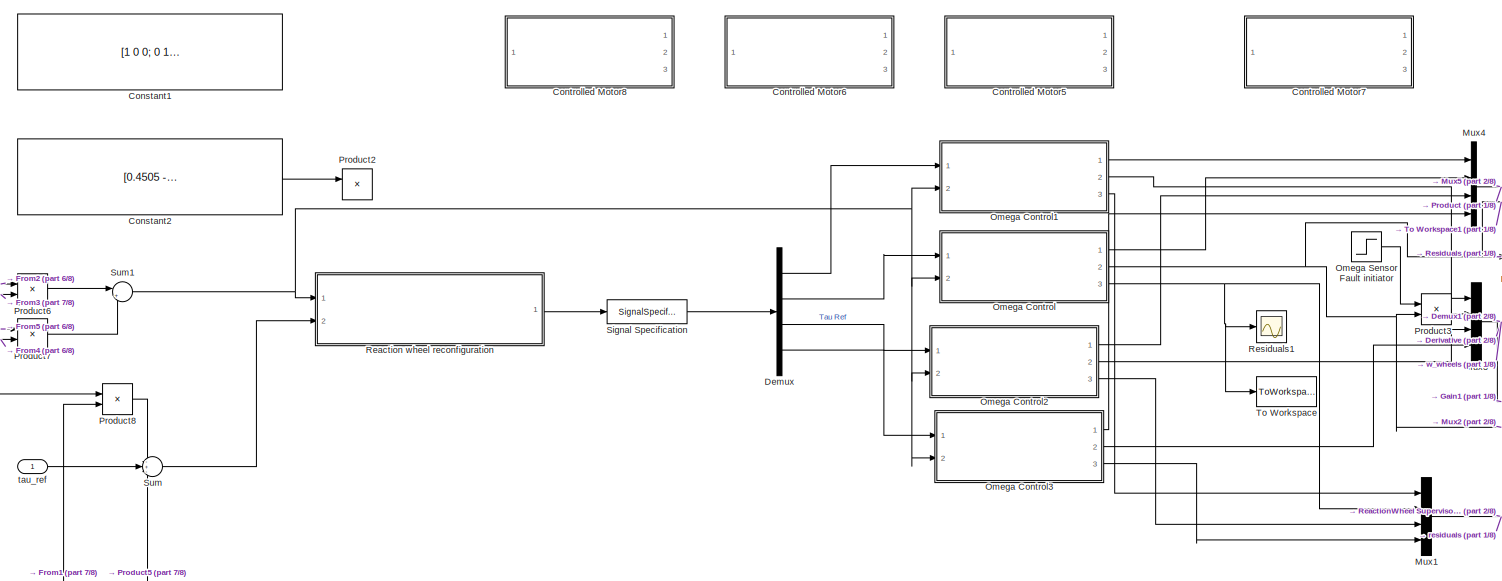
[diagram: TorqueControlledReactionWheel - part 3/8, middle left region]
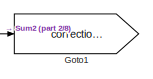
[diagram: TorqueControlledReactionWheel - part 4/8, top right region]
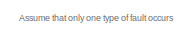
[diagram: TorqueControlledReactionWheel - part 5/8, top left region]
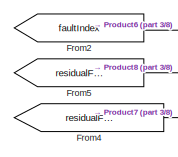
[diagram: TorqueControlledReactionWheel - part 6/8, middle left region]
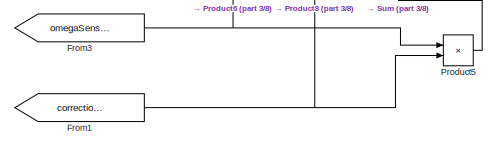
[diagram: TorqueControlledReactionWheel - part 7/8, bottom left region]
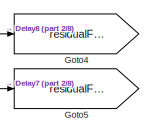
[diagram: TorqueControlledReactionWheel - part 8/8, bottom right region]
BLOCK [SubSystem] TorqueControlledReactionWheel
  Ports = [1, 4]
  RequestExecContextInheritance = off
BLOCK [Outport] TorqueControlledReactionWheel/3DAngularMomentumRW
  IconDisplay = Port number
  Port = 4
BLOCK [Constant] TorqueControlledReactionWheel/Constant
  Value = [1 0 0 0; 0 1 0 0; 0 0 1 0]
BLOCK [Constant] TorqueControlledReactionWheel/Constant1
  Commented = on
  Value = [1 0 0; 0 1 0; 0 0 1; 0 0 0]
BLOCK [Constant] TorqueControlledReactionWheel/Constant2
  Commented = on
  Value = [0.4505   -0.0000    0.0187;\n    0.4087    3.9840   -0.0098;\n    0.4087   -3.9840   -0.0098;\n    0.7372   -0.0000    0.9995]
BLOCK [Constant] TorqueControlledReactionWheel/Constant3
  Value = [    0.8136    0.7749    0.7749         0;\n         0    0.1255   -0.1255         0;\n   -0.5814   -0.5814   -0.5814    1.0000]
BLOCK [Constant] TorqueControlledReactionWheel/Constant4
  Value = 0
BLOCK [Constant] TorqueControlledReactionWheel/Constant5
  Value = [0    0.8136    0.7749    0.7749         0;\n 0        0    0.1255   -0.1255         0;\n 0  -0.5814   -0.5814   -0.5814    1.0000]
BLOCK [Constant] TorqueControlledReactionWheel/Constant6
  Value = [0    0.8136    0.7749    0.7749         0;\n 0        0    0.1255   -0.1255         0;\n 0  -0.5814   -0.5814   -0.5814    1.0000]
BLOCK [Constant] TorqueControlledReactionWheel/Constant7
  Value = 0
BLOCK [SubSystem] TorqueControlledReactionWheel/Controlled Motor5
  Commented = on
  Ports = [1, 3]
  RequestExecContextInheritance = off
BLOCK [Clock] TorqueControlledReactionWheel/Controlled Motor5/Clock1
  Commented = on
BLOCK [Constant] TorqueControlledReactionWheel/Controlled Motor5/Constant1
  Commented = on
  Value = b
BLOCK [Derivative] TorqueControlledReactionWheel/Controlled Motor5/Derivative
BLOCK [Derivative] TorqueControlledReactionWheel/Controlled Motor5/Derivative1
BLOCK [Gain] TorqueControlledReactionWheel/Controlled Motor5/Gain
  Gain = b
  OutDataTypeStr = Inherit: Inherit via internal rule
  ParamDataTypeStr = Inherit: Inherit via internal rule
  SaturateOnIntegerOverflow = off
BLOCK [Gain] TorqueControlledReactionWheel/Controlled Motor5/Gain1
  Gain = 1/I_wheel
  OutDataTypeStr = Inherit: Inherit via internal rule
  ParamDataTypeStr = Inherit: Inherit via internal rule
  SaturateOnIntegerOverflow = off
BLOCK [Gain] TorqueControlledReactionWheel/Controlled Motor5/Gain10
  Gain = kd
  OutDataTypeStr = Inherit: Inherit via internal rule
  ParamDataTypeStr = Inherit: Inherit via internal rule
  SaturateOnIntegerOverflow = off
BLOCK [Gain] TorqueControlledReactionWheel/Controlled Motor5/Gain11
  Gain = k_t
  OutDataTypeStr = Inherit: Inherit via internal rule
  ParamDataTypeStr = Inherit: Inherit via internal rule
  SaturateOnIntegerOverflow = off
BLOCK [Gain] TorqueControlledReactionWheel/Controlled Motor5/Gain12
  Gain = k_e
  OutDataTypeStr = Inherit: Inherit via internal rule
  ParamDataTypeStr = Inherit: Inherit via internal rule
  SaturateOnIntegerOverflow = off
BLOCK [Gain] TorqueControlledReactionWheel/Controlled Motor5/Gain18
  Gain = kp
  OutDataTypeStr = Inherit: Inherit via internal rule
  ParamDataTypeStr = Inherit: Inherit via internal rule
  SaturateOnIntegerOverflow = off
BLOCK [Gain] TorqueControlledReactionWheel/Controlled Motor5/Gain2
  Gain = k_t
  OutDataTypeStr = Inherit: Inherit via internal rule
  ParamDataTypeStr = Inherit: Inherit via internal rule
  SaturateOnIntegerOverflow = off
BLOCK [Gain] TorqueControlledReactionWheel/Controlled Motor5/Gain3
  Gain = I_wheel
  OutDataTypeStr = Inherit: Inherit via internal rule
  ParamDataTypeStr = Inherit: Inherit via internal rule
  SaturateOnIntegerOverflow = off
BLOCK [Gain] TorqueControlledReactionWheel/Controlled Motor5/Gain4
  Gain = b
  OutDataTypeStr = Inherit: Inherit via internal rule
  ParamDataTypeStr = Inherit: Inherit via internal rule
  SaturateOnIntegerOverflow = off
BLOCK [Gain] TorqueControlledReactionWheel/Controlled Motor5/Gain5
  Gain = R
  OutDataTypeStr = Inherit: Inherit via internal rule
  ParamDataTypeStr = Inherit: Inherit via internal rule
  SaturateOnIntegerOverflow = off
BLOCK [Gain] TorqueControlledReactionWheel/Controlled Motor5/Gain6
  Gain = 1/L
  OutDataTypeStr = Inherit: Inherit via internal rule
  ParamDataTypeStr = Inherit: Inherit via internal rule
  SaturateOnIntegerOverflow = off
BLOCK [Gain] TorqueControlledReactionWheel/Controlled Motor5/Gain7
  Gain = I_wheel
  OutDataTypeStr = Inherit: Inherit via internal rule
  ParamDataTypeStr = Inherit: Inherit via internal rule
  SaturateOnIntegerOverflow = off
BLOCK [Integrator] TorqueControlledReactionWheel/Controlled Motor5/Integrator
  Ports = [1, 1]
BLOCK [Integrator] TorqueControlledReactionWheel/Controlled Motor5/Integrator1
  Ports = [1, 1]
BLOCK [SubSystem] TorqueControlledReactionWheel/Controlled Motor5/MATLAB Function1
  Commented = on
  ErrorFcn = Stateflow.Translate.translate
  PermitHierarchicalResolution = ExplicitOnly
  Ports = [3, 1]
  RequestExecContextInheritance = off
  SFBlockType = MATLAB Function
  TreatAsAtomicUnit = on
BLOCK [Demux] TorqueControlledReactionWheel/Controlled Motor5/MATLAB Function1/ Demux 
  Outputs = 1
  Ports = [1, 1]
BLOCK [S-Function] TorqueControlledReactionWheel/Controlled Motor5/MATLAB Function1/ SFunction 
  EnableBusSupport = on
  FunctionName = sf_sfun
  PortCounts = [3 2]
  Ports = [3, 2]
  SFcnIsStateOwnerBlock = off
  SFunctionDeploymentMode = off
  Tag = Stateflow S-Function faultHandling_combined 7
BLOCK [Terminator] TorqueControlledReactionWheel/Controlled Motor5/MATLAB Function1/ Terminator 
BLOCK [Inport] TorqueControlledReactionWheel/Controlled Motor5/MATLAB Function1/b
  IconDisplay = Port number
  Port = 3
BLOCK [Inport] TorqueControlledReactionWheel/Controlled Motor5/MATLAB Function1/omega
  IconDisplay = Port number
BLOCK [Outport] TorqueControlledReactionWheel/Controlled Motor5/MATLAB Function1/out
  IconDisplay = Port number
BLOCK [Inport] TorqueControlledReactionWheel/Controlled Motor5/MATLAB Function1/time
  IconDisplay = Port number
  Port = 2
BLOCK [Saturate] TorqueControlledReactionWheel/Controlled Motor5/Max current Not nominal
  InputPortMap = u0
  LowerLimit = -1.5
  Ports = [1, 1]
  UpperLimit = 1.5
BLOCK [Saturate] TorqueControlledReactionWheel/Controlled Motor5/Max voltage
  InputPortMap = u0
  LowerLimit = -6
  Ports = [1, 1]
  UpperLimit = 6
BLOCK [Mux] TorqueControlledReactionWheel/Controlled Motor5/Mux
  Commented = on
  DisplayOption = bar
  Inputs = 2
  Ports = [2, 1]
BLOCK [Outport] TorqueControlledReactionWheel/Controlled Motor5/Residual
  IconDisplay = Port number
  Port = 3
BLOCK [Scope] TorqueControlledReactionWheel/Controlled Motor5/Scope
  Commented = on
  Floating = off
  NumInputPorts = 1
  Ports = [1]
  ScopeSpecificationString = Simulink.scopes.TimeScopeBlockCfg('CurrentConfiguration', extmgr.ConfigurationSet(extmgr.Configuration('Core','General UI',true),extmgr.Configuration('Core','Source UI',true),extmgr.Configuration('Sources','WiredSimulink',true,'DataLoggingVariableName','ScopeData5'),extmgr.Configuration('Visuals','Time Domain',true,'SerializedDisplays',{struct('MinYLimReal','-0.0000014','MaxYLimReal','0.0000003','...<+1428ch>  <repeated x3 — deduplicated; at blocks: Scope>
BLOCK [Sum] TorqueControlledReactionWheel/Controlled Motor5/Sum
  IconShape = round
  InputSameDT = off
  Inputs = |+-
  OutDataTypeStr = Inherit: Inherit via internal rule
  Ports = [2, 1]
  SaturateOnIntegerOverflow = off
BLOCK [Sum] TorqueControlledReactionWheel/Controlled Motor5/Sum1
  IconShape = round
  InputSameDT = off
  Inputs = +-+
  OutDataTypeStr = Inherit: Inherit via internal rule
  Ports = [3, 1]
  SaturateOnIntegerOverflow = off
BLOCK [Sum] TorqueControlledReactionWheel/Controlled Motor5/Sum7
  IconShape = round
  InputSameDT = off
  Inputs = +--
  OutDataTypeStr = Inherit: Inherit via internal rule
  Ports = [3, 1]
  SaturateOnIntegerOverflow = off
BLOCK [Sum] TorqueControlledReactionWheel/Controlled Motor5/Sum8
  IconShape = round
  InputSameDT = off
  Inputs = |++
  OutDataTypeStr = Inherit: Inherit via internal rule
  Ports = [2, 1]
  SaturateOnIntegerOverflow = off
BLOCK [Sum] TorqueControlledReactionWheel/Controlled Motor5/Sum9
  IconShape = round
  InputSameDT = off
  Inputs = |+-
  OutDataTypeStr = Inherit: Inherit via internal rule
  Ports = [2, 1]
  SaturateOnIntegerOverflow = off
BLOCK [Outport] TorqueControlledReactionWheel/Controlled Motor5/Tau_Out 
  IconDisplay = Port number
BLOCK [Inport] TorqueControlledReactionWheel/Controlled Motor5/Tau_ref
  IconDisplay = Port number
BLOCK [ToWorkspace] TorqueControlledReactionWheel/Controlled Motor5/To Workspace
  Commented = on
  FixptAsFi = on
  MaxDataPoints = inf
  Ports = [1]
  SampleTime = -1
  Save2DSignal = 3-D array (concatenate along third dimension)
  SaveFormat = Timeseries
  VariableName = simout
BLOCK [Outport] TorqueControlledReactionWheel/Controlled Motor5/omega
  IconDisplay = Port number
  Port = 2
BLOCK [SubSystem] TorqueControlledReactionWheel/Controlled Motor6
  Commented = on
  Ports = [1, 3]
  RequestExecContextInheritance = off
BLOCK [Clock] TorqueControlledReactionWheel/Controlled Motor6/Clock1
  Commented = on
BLOCK [Constant] TorqueControlledReactionWheel/Controlled Motor6/Constant1
  Commented = on
  Value = b
BLOCK [Derivative] TorqueControlledReactionWheel/Controlled Motor6/Derivative1
BLOCK [Gain] TorqueControlledReactionWheel/Controlled Motor6/Gain
  Gain = b
  OutDataTypeStr = Inherit: Inherit via internal rule
  ParamDataTypeStr = Inherit: Inherit via internal rule
  SaturateOnIntegerOverflow = off
BLOCK [Gain] TorqueControlledReactionWheel/Controlled Motor6/Gain1
  Gain = 1/I_wheel
  OutDataTypeStr = Inherit: Inherit via internal rule
  ParamDataTypeStr = Inherit: Inherit via internal rule
  SaturateOnIntegerOverflow = off
BLOCK [Gain] TorqueControlledReactionWheel/Controlled Motor6/Gain10
  Gain = kd
  OutDataTypeStr = Inherit: Inherit via internal rule
  ParamDataTypeStr = Inherit: Inherit via internal rule
  SaturateOnIntegerOverflow = off
BLOCK [Gain] TorqueControlledReactionWheel/Controlled Motor6/Gain11
  Gain = k_t
  OutDataTypeStr = Inherit: Inherit via internal rule
  ParamDataTypeStr = Inherit: Inherit via internal rule
  SaturateOnIntegerOverflow = off
BLOCK [Gain] TorqueControlledReactionWheel/Controlled Motor6/Gain12
  Gain = k_e
  OutDataTypeStr = Inherit: Inherit via internal rule
  ParamDataTypeStr = Inherit: Inherit via internal rule
  SaturateOnIntegerOverflow = off
BLOCK [Gain] TorqueControlledReactionWheel/Controlled Motor6/Gain18
  Gain = kp
  OutDataTypeStr = Inherit: Inherit via internal rule
  ParamDataTypeStr = Inherit: Inherit via internal rule
  SaturateOnIntegerOverflow = off
BLOCK [Gain] TorqueControlledReactionWheel/Controlled Motor6/Gain2
  Gain = k_t
  OutDataTypeStr = Inherit: Inherit via internal rule
  ParamDataTypeStr = Inherit: Inherit via internal rule
  SaturateOnIntegerOverflow = off
BLOCK [Gain] TorqueControlledReactionWheel/Controlled Motor6/Gain3
  Gain = I_wheel
  OutDataTypeStr = Inherit: Inherit via internal rule
  ParamDataTypeStr = Inherit: Inherit via internal rule
  SaturateOnIntegerOverflow = off
BLOCK [Gain] TorqueControlledReactionWheel/Controlled Motor6/Gain4
  Gain = b
  OutDataTypeStr = Inherit: Inherit via internal rule
  ParamDataTypeStr = Inherit: Inherit via internal rule
  SaturateOnIntegerOverflow = off
BLOCK [Gain] TorqueControlledReactionWheel/Controlled Motor6/Gain5
  Gain = R
  OutDataTypeStr = Inherit: Inherit via internal rule
  ParamDataTypeStr = Inherit: Inherit via internal rule
  SaturateOnIntegerOverflow = off
BLOCK [Gain] TorqueControlledReactionWheel/Controlled Motor6/Gain6
  Gain = 1/L
  OutDataTypeStr = Inherit: Inherit via internal rule
  ParamDataTypeStr = Inherit: Inherit via internal rule
  SaturateOnIntegerOverflow = off
BLOCK [Integrator] TorqueControlledReactionWheel/Controlled Motor6/Integrator
  Ports = [1, 1]
BLOCK [Integrator] TorqueControlledReactionWheel/Controlled Motor6/Integrator1
  Ports = [1, 1]
BLOCK [SubSystem] TorqueControlledReactionWheel/Controlled Motor6/MATLAB Function1
  Commented = on
  ErrorFcn = Stateflow.Translate.translate
  PermitHierarchicalResolution = ExplicitOnly
  Ports = [3, 1]
  RequestExecContextInheritance = off
  SFBlockType = MATLAB Function
  TreatAsAtomicUnit = on
BLOCK [Demux] TorqueControlledReactionWheel/Controlled Motor6/MATLAB Function1/ Demux 
  Outputs = 1
  Ports = [1, 1]
BLOCK [S-Function] TorqueControlledReactionWheel/Controlled Motor6/MATLAB Function1/ SFunction 
  EnableBusSupport = on
  FunctionName = sf_sfun
  PortCounts = [3 2]
  Ports = [3, 2]
  SFcnIsStateOwnerBlock = off
  SFunctionDeploymentMode = off
  Tag = Stateflow S-Function faultHandling_combined 9
BLOCK [Terminator] TorqueControlledReactionWheel/Controlled Motor6/MATLAB Function1/ Terminator 
BLOCK [Inport] TorqueControlledReactionWheel/Controlled Motor6/MATLAB Function1/b
  IconDisplay = Port number
  Port = 3
BLOCK [Inport] TorqueControlledReactionWheel/Controlled Motor6/MATLAB Function1/omega
  IconDisplay = Port number
BLOCK [Outport] TorqueControlledReactionWheel/Controlled Motor6/MATLAB Function1/out
  IconDisplay = Port number
BLOCK [Inport] TorqueControlledReactionWheel/Controlled Motor6/MATLAB Function1/time
  IconDisplay = Port number
  Port = 2
BLOCK [Saturate] TorqueControlledReactionWheel/Controlled Motor6/Max current Not nominal
  InputPortMap = u0
  LowerLimit = -1.5
  Ports = [1, 1]
  UpperLimit = 1.5
BLOCK [Saturate] TorqueControlledReactionWheel/Controlled Motor6/Max voltage
  InputPortMap = u0
  LowerLimit = -6
  Ports = [1, 1]
  UpperLimit = 6
BLOCK [Mux] TorqueControlledReactionWheel/Controlled Motor6/Mux
  Commented = on
  DisplayOption = bar
  Inputs = 2
  Ports = [2, 1]
BLOCK [Outport] TorqueControlledReactionWheel/Controlled Motor6/Residual
  IconDisplay = Port number
  Port = 3
BLOCK [Scope] TorqueControlledReactionWheel/Controlled Motor6/Scope
  Commented = on
  Floating = off
  NumInputPorts = 1
  Ports = [1]
BLOCK [Sum] TorqueControlledReactionWheel/Controlled Motor6/Sum
  IconShape = round
  InputSameDT = off
  Inputs = |+-
  OutDataTypeStr = Inherit: Inherit via internal rule
  Ports = [2, 1]
  SaturateOnIntegerOverflow = off
BLOCK [Sum] TorqueControlledReactionWheel/Controlled Motor6/Sum1
  IconShape = round
  InputSameDT = off
  Inputs = +-+
  OutDataTypeStr = Inherit: Inherit via internal rule
  Ports = [3, 1]
  SaturateOnIntegerOverflow = off
BLOCK [Sum] TorqueControlledReactionWheel/Controlled Motor6/Sum7
  IconShape = round
  InputSameDT = off
  Inputs = +--
  OutDataTypeStr = Inherit: Inherit via internal rule
  Ports = [3, 1]
  SaturateOnIntegerOverflow = off
BLOCK [Sum] TorqueControlledReactionWheel/Controlled Motor6/Sum8
  IconShape = round
  InputSameDT = off
  Inputs = |++
  OutDataTypeStr = Inherit: Inherit via internal rule
  Ports = [2, 1]
  SaturateOnIntegerOverflow = off
BLOCK [Sum] TorqueControlledReactionWheel/Controlled Motor6/Sum9
  IconShape = round
  InputSameDT = off
  Inputs = |+-
  OutDataTypeStr = Inherit: Inherit via internal rule
  Ports = [2, 1]
  SaturateOnIntegerOverflow = off
BLOCK [Outport] TorqueControlledReactionWheel/Controlled Motor6/Tau_Out 
  IconDisplay = Port number
BLOCK [Inport] TorqueControlledReactionWheel/Controlled Motor6/Tau_ref
  IconDisplay = Port number
BLOCK [ToWorkspace] TorqueControlledReactionWheel/Controlled Motor6/To Workspace
  Commented = on
  FixptAsFi = on
  MaxDataPoints = inf
  Ports = [1]
  SampleTime = -1
  Save2DSignal = 3-D array (concatenate along third dimension)
  SaveFormat = Timeseries
  VariableName = simout
BLOCK [Outport] TorqueControlledReactionWheel/Controlled Motor6/omega
  IconDisplay = Port number
  Port = 2
BLOCK [SubSystem] TorqueControlledReactionWheel/Controlled Motor7
  Commented = on
  Ports = [1, 3]
  RequestExecContextInheritance = off
BLOCK [Gain] TorqueControlledReactionWheel/Controlled Motor7/Gain
  Gain = b
  OutDataTypeStr = Inherit: Inherit via internal rule
  ParamDataTypeStr = Inherit: Inherit via internal rule
  SaturateOnIntegerOverflow = off
BLOCK [Gain] TorqueControlledReactionWheel/Controlled Motor7/Gain1
  Gain = 1/I_wheel
  OutDataTypeStr = Inherit: Inherit via internal rule
  ParamDataTypeStr = Inherit: Inherit via internal rule
  SaturateOnIntegerOverflow = off
BLOCK [Gain] TorqueControlledReactionWheel/Controlled Motor7/Gain10
  Gain = ki
  OutDataTypeStr = Inherit: Inherit via internal rule
  ParamDataTypeStr = Inherit: Inherit via internal rule
  SaturateOnIntegerOverflow = off
BLOCK [Gain] TorqueControlledReactionWheel/Controlled Motor7/Gain11
  Gain = k_t
  OutDataTypeStr = Inherit: Inherit via internal rule
  ParamDataTypeStr = Inherit: Inherit via internal rule
  SaturateOnIntegerOverflow = off
BLOCK [Gain] TorqueControlledReactionWheel/Controlled Motor7/Gain12
  Gain = k_e
  OutDataTypeStr = Inherit: Inherit via internal rule
  ParamDataTypeStr = Inherit: Inherit via internal rule
  SaturateOnIntegerOverflow = off
BLOCK [Gain] TorqueControlledReactionWheel/Controlled Motor7/Gain18
  Gain = kp
  OutDataTypeStr = Inherit: Inherit via internal rule
  ParamDataTypeStr = Inherit: Inherit via internal rule
  SaturateOnIntegerOverflow = off
BLOCK [Gain] TorqueControlledReactionWheel/Controlled Motor7/Gain2
  Gain = k_t
  OutDataTypeStr = Inherit: Inherit via internal rule
  ParamDataTypeStr = Inherit: Inherit via internal rule
  SaturateOnIntegerOverflow = off
BLOCK [Gain] TorqueControlledReactionWheel/Controlled Motor7/Gain3
  Gain = I_wheel
  OutDataTypeStr = Inherit: Inherit via internal rule
  ParamDataTypeStr = Inherit: Inherit via internal rule
  SaturateOnIntegerOverflow = off
BLOCK [Gain] TorqueControlledReactionWheel/Controlled Motor7/Gain4
  Gain = b
  OutDataTypeStr = Inherit: Inherit via internal rule
  ParamDataTypeStr = Inherit: Inherit via internal rule
  SaturateOnIntegerOverflow = off
BLOCK [Gain] TorqueControlledReactionWheel/Controlled Motor7/Gain5
  Gain = R
  OutDataTypeStr = Inherit: Inherit via internal rule
  ParamDataTypeStr = Inherit: Inherit via internal rule
  SaturateOnIntegerOverflow = off
BLOCK [Gain] TorqueControlledReactionWheel/Controlled Motor7/Gain6
  Gain = 1/L
  OutDataTypeStr = Inherit: Inherit via internal rule
  ParamDataTypeStr = Inherit: Inherit via internal rule
  SaturateOnIntegerOverflow = off
BLOCK [Integrator] TorqueControlledReactionWheel/Controlled Motor7/Integrator
  Ports = [1, 1]
BLOCK [Integrator] TorqueControlledReactionWheel/Controlled Motor7/Integrator1
  Ports = [1, 1]
BLOCK [Integrator] TorqueControlledReactionWheel/Controlled Motor7/Integrator6
  Ports = [1, 1]
BLOCK [Saturate] TorqueControlledReactionWheel/Controlled Motor7/Max current Not nominal
  InputPortMap = u0
  LowerLimit = -1.5
  Ports = [1, 1]
  UpperLimit = 1.5
BLOCK [Saturate] TorqueControlledReactionWheel/Controlled Motor7/Max voltage
  InputPortMap = u0
  LowerLimit = -6
  Ports = [1, 1]
  UpperLimit = 6
BLOCK [Outport] TorqueControlledReactionWheel/Controlled Motor7/Residual
  IconDisplay = Port number
  Port = 3
BLOCK [Sum] TorqueControlledReactionWheel/Controlled Motor7/Sum
  IconShape = round
  InputSameDT = off
  Inputs = |+-
  OutDataTypeStr = Inherit: Inherit via internal rule
  Ports = [2, 1]
  SaturateOnIntegerOverflow = off
BLOCK [Sum] TorqueControlledReactionWheel/Controlled Motor7/Sum1
  IconShape = round
  InputSameDT = off
  Inputs = +-+
  OutDataTypeStr = Inherit: Inherit via internal rule
  Ports = [3, 1]
  SaturateOnIntegerOverflow = off
BLOCK [Sum] TorqueControlledReactionWheel/Controlled Motor7/Sum7
  IconShape = round
  InputSameDT = off
  Inputs = +--
  OutDataTypeStr = Inherit: Inherit via internal rule
  Ports = [3, 1]
  SaturateOnIntegerOverflow = off
BLOCK [Sum] TorqueControlledReactionWheel/Controlled Motor7/Sum8
  IconShape = round
  InputSameDT = off
  Inputs = |++
  OutDataTypeStr = Inherit: Inherit via internal rule
  Ports = [2, 1]
  SaturateOnIntegerOverflow = off
BLOCK [Sum] TorqueControlledReactionWheel/Controlled Motor7/Sum9
  IconShape = round
  InputSameDT = off
  Inputs = |+-
  OutDataTypeStr = Inherit: Inherit via internal rule
  Ports = [2, 1]
  SaturateOnIntegerOverflow = off
BLOCK [SubSystem] TorqueControlledReactionWheel/Controlled Motor7/TauOut Predictor
  Ports = [2, 1]
  RequestExecContextInheritance = off
BLOCK [Constant] TorqueControlledReactionWheel/Controlled Motor7/TauOut Predictor/Constant
  Value = k_t
BLOCK [Constant] TorqueControlledReactionWheel/Controlled Motor7/TauOut Predictor/Constant1
  Value = b
BLOCK [SubSystem] TorqueControlledReactionWheel/Controlled Motor7/TauOut Predictor/Output torque estimator
  ErrorFcn = Stateflow.Translate.translate
  PermitHierarchicalResolution = ExplicitOnly
  Ports = [4, 1]
  RequestExecContextInheritance = off
  SFBlockType = MATLAB Function
  TreatAsAtomicUnit = on
BLOCK [Demux] TorqueControlledReactionWheel/Controlled Motor7/TauOut Predictor/Output torque estimator/ Demux 
  Outputs = 1
  Ports = [1, 1]
BLOCK [S-Function] TorqueControlledReactionWheel/Controlled Motor7/TauOut Predictor/Output torque estimator/ SFunction 
  EnableBusSupport = on
  FunctionName = sf_sfun
  PortCounts = [4 2]
  Ports = [4, 2]
  SFcnIsStateOwnerBlock = off
  SFunctionDeploymentMode = off
  Tag = Stateflow S-Function faultHandling_combined 15
BLOCK [Terminator] TorqueControlledReactionWheel/Controlled Motor7/TauOut Predictor/Output torque estimator/ Terminator 
BLOCK [Outport] TorqueControlledReactionWheel/Controlled Motor7/TauOut Predictor/Output torque estimator/TauOut
  IconDisplay = Port number
BLOCK [Inport] TorqueControlledReactionWheel/Controlled Motor7/TauOut Predictor/Output torque estimator/b
  IconDisplay = Port number
  Port = 3
BLOCK [Inport] TorqueControlledReactionWheel/Controlled Motor7/TauOut Predictor/Output torque estimator/i
  IconDisplay = Port number
BLOCK [Inport] TorqueControlledReactionWheel/Controlled Motor7/TauOut Predictor/Output torque estimator/k_t
  IconDisplay = Port number
  Port = 2
BLOCK [Inport] TorqueControlledReactionWheel/Controlled Motor7/TauOut Predictor/Output torque estimator/omega
  IconDisplay = Port number
  Port = 4
BLOCK [Outport] TorqueControlledReactionWheel/Controlled Motor7/TauOut Predictor/TauOut
  IconDisplay = Port number
BLOCK [Inport] TorqueControlledReactionWheel/Controlled Motor7/TauOut Predictor/current
  IconDisplay = Port number
  Port = 2
BLOCK [Inport] TorqueControlledReactionWheel/Controlled Motor7/TauOut Predictor/omega
  IconDisplay = Port number
BLOCK [Outport] TorqueControlledReactionWheel/Controlled Motor7/Tau_Out 
  IconDisplay = Port number
BLOCK [Inport] TorqueControlledReactionWheel/Controlled Motor7/Tau_ref
  IconDisplay = Port number
BLOCK [Outport] TorqueControlledReactionWheel/Controlled Motor7/omega
  IconDisplay = Port number
  Port = 2
BLOCK [SubSystem] TorqueControlledReactionWheel/Controlled Motor8
  Commented = on
  Ports = [1, 3]
  RequestExecContextInheritance = off
BLOCK [Clock] TorqueControlledReactionWheel/Controlled Motor8/Clock1
  Commented = on
BLOCK [Constant] TorqueControlledReactionWheel/Controlled Motor8/Constant1
  Commented = on
  Value = b
BLOCK [Gain] TorqueControlledReactionWheel/Controlled Motor8/Gain
  Gain = b
  OutDataTypeStr = Inherit: Inherit via internal rule
  ParamDataTypeStr = Inherit: Inherit via internal rule
  SaturateOnIntegerOverflow = off
BLOCK [Gain] TorqueControlledReactionWheel/Controlled Motor8/Gain1
  Gain = 1/I_wheel
  OutDataTypeStr = Inherit: Inherit via internal rule
  ParamDataTypeStr = Inherit: Inherit via internal rule
  SaturateOnIntegerOverflow = off
BLOCK [Gain] TorqueControlledReactionWheel/Controlled Motor8/Gain10
  Gain = ki
  OutDataTypeStr = Inherit: Inherit via internal rule
  ParamDataTypeStr = Inherit: Inherit via internal rule
  SaturateOnIntegerOverflow = off
BLOCK [Gain] TorqueControlledReactionWheel/Controlled Motor8/Gain11
  Gain = k_t
  OutDataTypeStr = Inherit: Inherit via internal rule
  ParamDataTypeStr = Inherit: Inherit via internal rule
  SaturateOnIntegerOverflow = off
BLOCK [Gain] TorqueControlledReactionWheel/Controlled Motor8/Gain12
  Gain = k_e
  OutDataTypeStr = Inherit: Inherit via internal rule
  ParamDataTypeStr = Inherit: Inherit via internal rule
  SaturateOnIntegerOverflow = off
BLOCK [Gain] TorqueControlledReactionWheel/Controlled Motor8/Gain18
  Gain = kp
  OutDataTypeStr = Inherit: Inherit via internal rule
  ParamDataTypeStr = Inherit: Inherit via internal rule
  SaturateOnIntegerOverflow = off
BLOCK [Gain] TorqueControlledReactionWheel/Controlled Motor8/Gain2
  Gain = k_t
  OutDataTypeStr = Inherit: Inherit via internal rule
  ParamDataTypeStr = Inherit: Inherit via internal rule
  SaturateOnIntegerOverflow = off
BLOCK [Gain] TorqueControlledReactionWheel/Controlled Motor8/Gain3
  Gain = I_wheel
  OutDataTypeStr = Inherit: Inherit via internal rule
  ParamDataTypeStr = Inherit: Inherit via internal rule
  SaturateOnIntegerOverflow = off
BLOCK [Gain] TorqueControlledReactionWheel/Controlled Motor8/Gain4
  Gain = b
  OutDataTypeStr = Inherit: Inherit via internal rule
  ParamDataTypeStr = Inherit: Inherit via internal rule
  SaturateOnIntegerOverflow = off
BLOCK [Gain] TorqueControlledReactionWheel/Controlled Motor8/Gain6
  Gain = 1/R
  OutDataTypeStr = Inherit: Inherit via internal rule
  ParamDataTypeStr = Inherit: Inherit via internal rule
  SaturateOnIntegerOverflow = off
BLOCK [Gain] TorqueControlledReactionWheel/Controlled Motor8/Gain7
  Gain = 1/I_wheel
  OutDataTypeStr = Inherit: Inherit via internal rule
  ParamDataTypeStr = Inherit: Inherit via internal rule
  SaturateOnIntegerOverflow = off
BLOCK [Integrator] TorqueControlledReactionWheel/Controlled Motor8/Integrator
  Ports = [1, 1]
BLOCK [Integrator] TorqueControlledReactionWheel/Controlled Motor8/Integrator1
  Ports = [1, 1]
BLOCK [Integrator] TorqueControlledReactionWheel/Controlled Motor8/Integrator2
  Ports = [1, 1]
BLOCK [SubSystem] TorqueControlledReactionWheel/Controlled Motor8/MATLAB Function1
  Commented = on
  ErrorFcn = Stateflow.Translate.translate
  PermitHierarchicalResolution = ExplicitOnly
  Ports = [3, 1]
  RequestExecContextInheritance = off
  SFBlockType = MATLAB Function
  TreatAsAtomicUnit = on
BLOCK [Demux] TorqueControlledReactionWheel/Controlled Motor8/MATLAB Function1/ Demux 
  Outputs = 1
  Ports = [1, 1]
BLOCK [S-Function] TorqueControlledReactionWheel/Controlled Motor8/MATLAB Function1/ SFunction 
  EnableBusSupport = on
  FunctionName = sf_sfun
  PortCounts = [3 2]
  Ports = [3, 2]
  SFcnIsStateOwnerBlock = off
  SFunctionDeploymentMode = off
  Tag = Stateflow S-Function faultHandling_combined 16
BLOCK [Terminator] TorqueControlledReactionWheel/Controlled Motor8/MATLAB Function1/ Terminator 
BLOCK [Inport] TorqueControlledReactionWheel/Controlled Motor8/MATLAB Function1/b
  IconDisplay = Port number
  Port = 3
BLOCK [Inport] TorqueControlledReactionWheel/Controlled Motor8/MATLAB Function1/omega
  IconDisplay = Port number
BLOCK [Outport] TorqueControlledReactionWheel/Controlled Motor8/MATLAB Function1/out
  IconDisplay = Port number
BLOCK [Inport] TorqueControlledReactionWheel/Controlled Motor8/MATLAB Function1/time
  IconDisplay = Port number
  Port = 2
BLOCK [Saturate] TorqueControlledReactionWheel/Controlled Motor8/Max current Not nominal
  InputPortMap = u0
  LowerLimit = -1.5
  Ports = [1, 1]
  UpperLimit = 1.5
BLOCK [Saturate] TorqueControlledReactionWheel/Controlled Motor8/Max voltage
  InputPortMap = u0
  LowerLimit = -6
  Ports = [1, 1]
  UpperLimit = 6
BLOCK [Mux] TorqueControlledReactionWheel/Controlled Motor8/Mux
  Commented = on
  DisplayOption = bar
  Inputs = 2
  Ports = [2, 1]
BLOCK [Outport] TorqueControlledReactionWheel/Controlled Motor8/Residual
  IconDisplay = Port number
  Port = 3
BLOCK [Scope] TorqueControlledReactionWheel/Controlled Motor8/Scope
  Commented = on
  Floating = off
  NumInputPorts = 1
  Ports = [1]
BLOCK [Sum] TorqueControlledReactionWheel/Controlled Motor8/Sum
  IconShape = round
  InputSameDT = off
  Inputs = |+-
  OutDataTypeStr = Inherit: Inherit via internal rule
  Ports = [2, 1]
  SaturateOnIntegerOverflow = off
BLOCK [Sum] TorqueControlledReactionWheel/Controlled Motor8/Sum1
  IconShape = round
  InputSameDT = off
  Inputs = +-+
  OutDataTypeStr = Inherit: Inherit via internal rule
  Ports = [3, 1]
  SaturateOnIntegerOverflow = off
BLOCK [Sum] TorqueControlledReactionWheel/Controlled Motor8/Sum7
  IconShape = round
  InputSameDT = off
  Inputs = |+-
  OutDataTypeStr = Inherit: Inherit via internal rule
  Ports = [2, 1]
  SaturateOnIntegerOverflow = off
BLOCK [Sum] TorqueControlledReactionWheel/Controlled Motor8/Sum8
  IconShape = round
  InputSameDT = off
  Inputs = |++
  OutDataTypeStr = Inherit: Inherit via internal rule
  Ports = [2, 1]
  SaturateOnIntegerOverflow = off
BLOCK [Sum] TorqueControlledReactionWheel/Controlled Motor8/Sum9
  IconShape = round
  InputSameDT = off
  Inputs = |+-
  OutDataTypeStr = Inherit: Inherit via internal rule
  Ports = [2, 1]
  SaturateOnIntegerOverflow = off
BLOCK [Outport] TorqueControlledReactionWheel/Controlled Motor8/Tau_Out 
  IconDisplay = Port number
BLOCK [Inport] TorqueControlledReactionWheel/Controlled Motor8/Tau_ref
  IconDisplay = Port number
BLOCK [ToWorkspace] TorqueControlledReactionWheel/Controlled Motor8/To Workspace
  Commented = on
  FixptAsFi = on
  MaxDataPoints = inf
  Ports = [1]
  SampleTime = -1
  Save2DSignal = 3-D array (concatenate along third dimension)
  SaveFormat = Timeseries
  VariableName = simout
BLOCK [Outport] TorqueControlledReactionWheel/Controlled Motor8/omega
  IconDisplay = Port number
  Port = 2
BLOCK [Delay] TorqueControlledReactionWheel/Delay1
  DelayLength = 1
  InitialCondition = 0
  InputPortMap = u0
  Ports = [1, 1]
BLOCK [Delay] TorqueControlledReactionWheel/Delay2
  InitialCondition = 0
  InputPortMap = u0
  Ports = [1, 1]
BLOCK [Delay] TorqueControlledReactionWheel/Delay3
  InitialCondition = 0
  InputPortMap = u0
  Ports = [1, 1]
BLOCK [Delay] TorqueControlledReactionWheel/Delay4
  InitialCondition = 0
  InputPortMap = u0
  Ports = [1, 1]
BLOCK [Delay] TorqueControlledReactionWheel/Delay5
  InitialCondition = 0
  InputPortMap = u0
  Ports = [1, 1]
BLOCK [Delay] TorqueControlledReactionWheel/Delay6
  DelayLength = 1
  InitialCondition = 0
  InputPortMap = u0
  Ports = [1, 1]
BLOCK [Delay] TorqueControlledReactionWheel/Delay7
  DelayLength = 1
  InitialCondition = 0
  InputPortMap = u0
  Ports = [1, 1]
BLOCK [Delay] TorqueControlledReactionWheel/Delay8
  DelayLength = 1
  InitialCondition = 0
  InputPortMap = u0
  Ports = [1, 1]
BLOCK [Demux] TorqueControlledReactionWheel/Demux
  DisplayOption = bar
  Ports = [1, 4]
BLOCK [Demux] TorqueControlledReactionWheel/Demux1
  DisplayOption = bar
  Ports = [1, 4]
BLOCK [Derivative] TorqueControlledReactionWheel/Derivative
BLOCK [From] TorqueControlledReactionWheel/From1
  GotoTag = correctionTorque
BLOCK [From] TorqueControlledReactionWheel/From2
  GotoTag = faultIndex
BLOCK [From] TorqueControlledReactionWheel/From3
  GotoTag = omegaSensorFault
BLOCK [From] TorqueControlledReactionWheel/From4
  GotoTag = residualFaultIndex
BLOCK [From] TorqueControlledReactionWheel/From5
  GotoTag = residualFault
BLOCK [Gain] TorqueControlledReactionWheel/Gain1
  Gain = I_wheel
  OutDataTypeStr = Inherit: Inherit via internal rule
  ParamDataTypeStr = Inherit: Inherit via internal rule
  SaturateOnIntegerOverflow = off
BLOCK [Goto] TorqueControlledReactionWheel/Goto1
  GotoTag = correctionTorque
BLOCK [Goto] TorqueControlledReactionWheel/Goto2
  GotoTag = faultIndex
BLOCK [Goto] TorqueControlledReactionWheel/Goto3
  GotoTag = omegaSensorFault
BLOCK [Goto] TorqueControlledReactionWheel/Goto4
  GotoTag = residualFaultIndex
BLOCK [Goto] TorqueControlledReactionWheel/Goto5
  GotoTag = residualFault
BLOCK [SubSystem] TorqueControlledReactionWheel/MATLAB Function
  ErrorFcn = Stateflow.Translate.translate
  PermitHierarchicalResolution = ExplicitOnly
  Ports = [3, 2]
  RequestExecContextInheritance = off
  SFBlockType = MATLAB Function
  TreatAsAtomicUnit = on
BLOCK [Demux] TorqueControlledReactionWheel/MATLAB Function/ Demux 
  Outputs = 1
  Ports = [1, 1]
BLOCK [S-Function] TorqueControlledReactionWheel/MATLAB Function/ SFunction 
  EnableBusSupport = on
  FunctionName = sf_sfun
  PortCounts = [3 3]
  Ports = [3, 3]
  SFcnIsStateOwnerBlock = off
  SFunctionDeploymentMode = off
  Tag = Stateflow S-Function faultHandling_combined 4
BLOCK [Terminator] TorqueControlledReactionWheel/MATLAB Function/ Terminator 
BLOCK [Inport] TorqueControlledReactionWheel/MATLAB Function/deriv
  IconDisplay = Port number
BLOCK [Outport] TorqueControlledReactionWheel/MATLAB Function/faultIndex
  IconDisplay = Port number
BLOCK [Inport] TorqueControlledReactionWheel/MATLAB Function/faultMemory
  IconDisplay = Port number
  Port = 2
BLOCK [Outport] TorqueControlledReactionWheel/MATLAB Function/sensorFault
  IconDisplay = Port number
  Port = 2
BLOCK [Inport] TorqueControlledReactionWheel/MATLAB Function/sensorFaultMemory
  IconDisplay = Port number
  Port = 3
BLOCK [Mux] TorqueControlledReactionWheel/Mux
  DisplayOption = bar
  Inputs = 5
  Ports = [5, 1]
BLOCK [Mux] TorqueControlledReactionWheel/Mux1
  DisplayOption = bar
  Ports = [4, 1]
BLOCK [Mux] TorqueControlledReactionWheel/Mux2
  DisplayOption = bar
  Inputs = 2
  Ports = [2, 1]
BLOCK [Mux] TorqueControlledReactionWheel/Mux3
  DisplayOption = bar
  Ports = [4, 1]
BLOCK [Mux] TorqueControlledReactionWheel/Mux4
  DisplayOption = bar
  Ports = [4, 1]
BLOCK [Mux] TorqueControlledReactionWheel/Mux5
  DisplayOption = bar
  Inputs = 2
  Ports = [2, 1]
BLOCK [Reference] TorqueControlledReactionWheel/NoModel1  REF=library/Reaction Wheel Models/NoModel  (lib defined in slx_3ff6af1150bc, slx_4edaf752ec85, +11 more)
  Commented = on
  Ports = [1, 3]
  SourceBlock = library/Reaction Wheel Models/NoModel
  SourceType = SubSystem
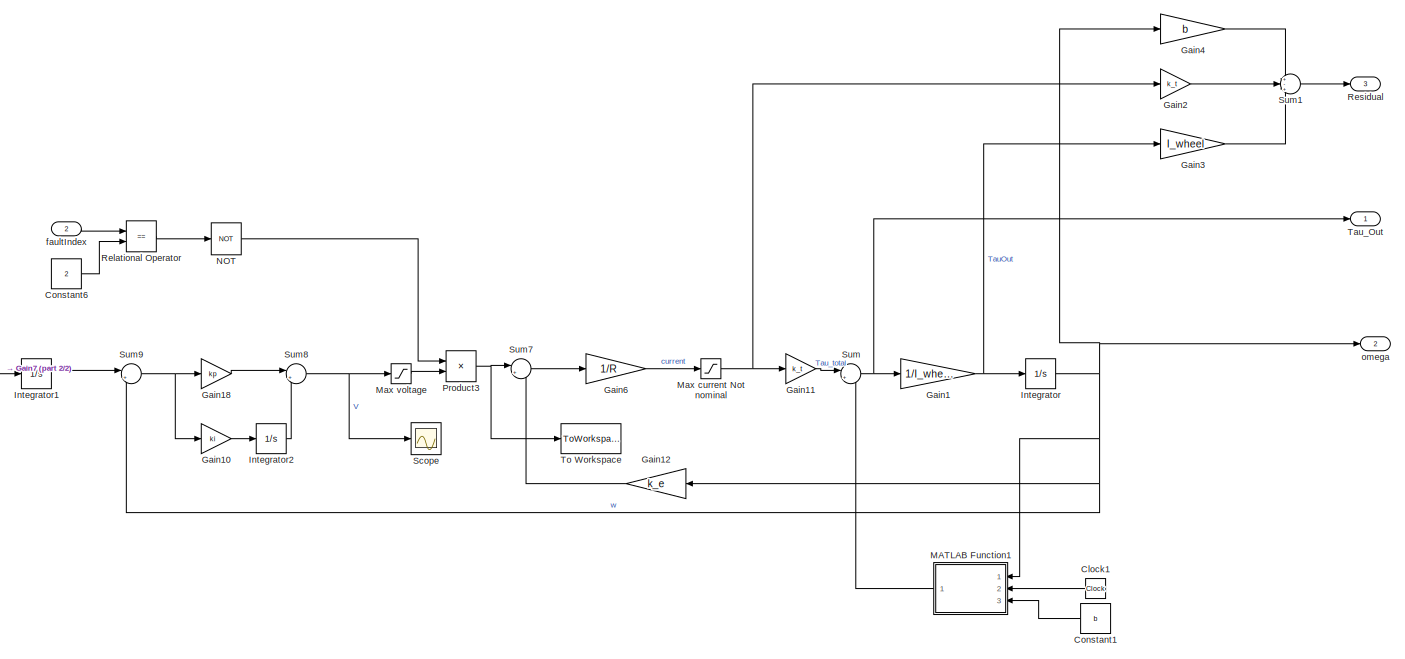
[diagram: TorqueControlledReactionWheel/Omega Control - part 1/2, most of the canvas]
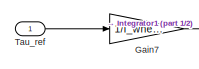
[diagram: TorqueControlledReactionWheel/Omega Control - part 2/2, middle left region]
BLOCK [SubSystem] TorqueControlledReactionWheel/Omega Control
  Ports = [2, 3]
  RequestExecContextInheritance = off
BLOCK [Clock] TorqueControlledReactionWheel/Omega Control/Clock1
BLOCK [Constant] TorqueControlledReactionWheel/Omega Control/Constant1
  Value = b
BLOCK [Constant] TorqueControlledReactionWheel/Omega Control/Constant6
  Value = 2
BLOCK [Gain] TorqueControlledReactionWheel/Omega Control/Gain1
  Gain = 1/I_wheel
  OutDataTypeStr = Inherit: Inherit via internal rule
  ParamDataTypeStr = Inherit: Inherit via internal rule
  SaturateOnIntegerOverflow = off
BLOCK [Gain] TorqueControlledReactionWheel/Omega Control/Gain10
  Gain = ki
  OutDataTypeStr = Inherit: Inherit via internal rule
  ParamDataTypeStr = Inherit: Inherit via internal rule
  SaturateOnIntegerOverflow = off
BLOCK [Gain] TorqueControlledReactionWheel/Omega Control/Gain11
  Gain = k_t
  OutDataTypeStr = Inherit: Inherit via internal rule
  ParamDataTypeStr = Inherit: Inherit via internal rule
  SaturateOnIntegerOverflow = off
BLOCK [Gain] TorqueControlledReactionWheel/Omega Control/Gain12
  Gain = k_e
  OutDataTypeStr = Inherit: Inherit via internal rule
  ParamDataTypeStr = Inherit: Inherit via internal rule
  SaturateOnIntegerOverflow = off
BLOCK [Gain] TorqueControlledReactionWheel/Omega Control/Gain18
  Gain = kp
  OutDataTypeStr = Inherit: Inherit via internal rule
  ParamDataTypeStr = Inherit: Inherit via internal rule
  SaturateOnIntegerOverflow = off
BLOCK [Gain] TorqueControlledReactionWheel/Omega Control/Gain2
  Gain = k_t
  OutDataTypeStr = Inherit: Inherit via internal rule
  ParamDataTypeStr = Inherit: Inherit via internal rule
  SaturateOnIntegerOverflow = off
BLOCK [Gain] TorqueControlledReactionWheel/Omega Control/Gain3
  Gain = I_wheel
  OutDataTypeStr = Inherit: Inherit via internal rule
  ParamDataTypeStr = Inherit: Inherit via internal rule
  SaturateOnIntegerOverflow = off
BLOCK [Gain] TorqueControlledReactionWheel/Omega Control/Gain4
  Gain = b
  OutDataTypeStr = Inherit: Inherit via internal rule
  ParamDataTypeStr = Inherit: Inherit via internal rule
  SaturateOnIntegerOverflow = off
BLOCK [Gain] TorqueControlledReactionWheel/Omega Control/Gain6
  Gain = 1/R
  OutDataTypeStr = Inherit: Inherit via internal rule
  ParamDataTypeStr = Inherit: Inherit via internal rule
  SaturateOnIntegerOverflow = off
BLOCK [Gain] TorqueControlledReactionWheel/Omega Control/Gain7
  Gain = 1/I_wheel
  OutDataTypeStr = Inherit: Inherit via internal rule
  ParamDataTypeStr = Inherit: Inherit via internal rule
  SaturateOnIntegerOverflow = off
BLOCK [Integrator] TorqueControlledReactionWheel/Omega Control/Integrator
  Ports = [1, 1]
BLOCK [Integrator] TorqueControlledReactionWheel/Omega Control/Integrator1
  Ports = [1, 1]
BLOCK [Integrator] TorqueControlledReactionWheel/Omega Control/Integrator2
  Ports = [1, 1]
BLOCK [SubSystem] TorqueControlledReactionWheel/Omega Control/MATLAB Function1
  ErrorFcn = Stateflow.Translate.translate
  PermitHierarchicalResolution = ExplicitOnly
  Ports = [3, 1]
  RequestExecContextInheritance = off
  SFBlockType = MATLAB Function
  TreatAsAtomicUnit = on
BLOCK [Demux] TorqueControlledReactionWheel/Omega Control/MATLAB Function1/ Demux 
  Outputs = 1
  Ports = [1, 1]
BLOCK [S-Function] TorqueControlledReactionWheel/Omega Control/MATLAB Function1/ SFunction 
  EnableBusSupport = on
  FunctionName = sf_sfun
  PortCounts = [3 2]
  Ports = [3, 2]
  SFcnIsStateOwnerBlock = off
  SFunctionDeploymentMode = off
  Tag = Stateflow S-Function faultHandling_combined 5
BLOCK [Terminator] TorqueControlledReactionWheel/Omega Control/MATLAB Function1/ Terminator 
BLOCK [Inport] TorqueControlledReactionWheel/Omega Control/MATLAB Function1/b
  IconDisplay = Port number
  Port = 3
BLOCK [Inport] TorqueControlledReactionWheel/Omega Control/MATLAB Function1/omega
  IconDisplay = Port number
BLOCK [Outport] TorqueControlledReactionWheel/Omega Control/MATLAB Function1/out
  IconDisplay = Port number
BLOCK [Inport] TorqueControlledReactionWheel/Omega Control/MATLAB Function1/time
  IconDisplay = Port number
  Port = 2
BLOCK [Saturate] TorqueControlledReactionWheel/Omega Control/Max current Not nominal
  InputPortMap = u0
  LowerLimit = -1.5
  Ports = [1, 1]
  UpperLimit = 1.5
BLOCK [Saturate] TorqueControlledReactionWheel/Omega Control/Max voltage
  InputPortMap = u0
  LowerLimit = -6
  Ports = [1, 1]
  UpperLimit = 6
BLOCK [Logic] TorqueControlledReactionWheel/Omega Control/NOT
  AllPortsSameDT = off
  IconShape = distinctive
  Operator = NOT
  OutDataTypeStr = boolean
  Ports = [1, 1]
BLOCK [Product] TorqueControlledReactionWheel/Omega Control/Product3
  InputSameDT = off
  OutDataTypeStr = Inherit: Inherit via internal rule
  Ports = [2, 1]
  RndMeth = Floor
  SaturateOnIntegerOverflow = off
BLOCK [RelationalOperator] TorqueControlledReactionWheel/Omega Control/Relational Operator
  InputSameDT = off
  Operator = ==
  OutDataTypeStr = boolean
  Ports = [2, 1]
  RndMeth = Simplest
  ZeroCross = off
BLOCK [Outport] TorqueControlledReactionWheel/Omega Control/Residual
  IconDisplay = Port number
  Port = 3
BLOCK [Scope] TorqueControlledReactionWheel/Omega Control/Scope
  Floating = off
  NumInputPorts = 1
  Ports = [1]
  ScopeSpecificationString = Simulink.scopes.TimeScopeBlockCfg('CurrentConfiguration', extmgr.ConfigurationSet(extmgr.Configuration('Core','General UI',true),extmgr.Configuration('Core','Source UI',true),extmgr.Configuration('Sources','WiredSimulink',true,'DataLoggingVariableName','ScopeData1'),extmgr.Configuration('Visuals','Time Domain',true,'SerializedDisplays',{struct('MinYLimReal','-2.16748','MaxYLimReal','19.50729','YLa...<+1396ch>
BLOCK [Sum] TorqueControlledReactionWheel/Omega Control/Sum
  IconShape = round
  InputSameDT = off
  Inputs = |+-
  OutDataTypeStr = Inherit: Inherit via internal rule
  Ports = [2, 1]
  SaturateOnIntegerOverflow = off
BLOCK [Sum] TorqueControlledReactionWheel/Omega Control/Sum1
  IconShape = round
  InputSameDT = off
  Inputs = +-+
  OutDataTypeStr = Inherit: Inherit via internal rule
  Ports = [3, 1]
  SaturateOnIntegerOverflow = off
BLOCK [Sum] TorqueControlledReactionWheel/Omega Control/Sum7
  IconShape = round
  InputSameDT = off
  Inputs = |+-
  OutDataTypeStr = Inherit: Inherit via internal rule
  Ports = [2, 1]
  SaturateOnIntegerOverflow = off
BLOCK [Sum] TorqueControlledReactionWheel/Omega Control/Sum8
  IconShape = round
  InputSameDT = off
  Inputs = |++
  OutDataTypeStr = Inherit: Inherit via internal rule
  Ports = [2, 1]
  SaturateOnIntegerOverflow = off
BLOCK [Sum] TorqueControlledReactionWheel/Omega Control/Sum9
  IconShape = round
  InputSameDT = off
  Inputs = |+-
  OutDataTypeStr = Inherit: Inherit via internal rule
  Ports = [2, 1]
  SaturateOnIntegerOverflow = off
BLOCK [Outport] TorqueControlledReactionWheel/Omega Control/Tau_Out 
  IconDisplay = Port number
BLOCK [Inport] TorqueControlledReactionWheel/Omega Control/Tau_ref
  IconDisplay = Port number
BLOCK [ToWorkspace] TorqueControlledReactionWheel/Omega Control/To Workspace
  FixptAsFi = on
  MaxDataPoints = inf
  Ports = [1]
  SampleTime = -1
  Save2DSignal = 3-D array (concatenate along third dimension)
  SaveFormat = Timeseries
  VariableName = voltage
BLOCK [Inport] TorqueControlledReactionWheel/Omega Control/faultIndex
  IconDisplay = Port number
  Port = 2
BLOCK [Outport] TorqueControlledReactionWheel/Omega Control/omega
  IconDisplay = Port number
  Port = 2
BLOCK [SubSystem] TorqueControlledReactionWheel/Omega Control1
  Ports = [2, 3]
  RequestExecContextInheritance = off
BLOCK [Clock] TorqueControlledReactionWheel/Omega Control1/Clock1
  Commented = on
BLOCK [Constant] TorqueControlledReactionWheel/Omega Control1/Constant1
  Commented = on
  Value = b
BLOCK [Constant] TorqueControlledReactionWheel/Omega Control1/Constant6
BLOCK [Gain] TorqueControlledReactionWheel/Omega Control1/Gain
  Gain = b
  OutDataTypeStr = Inherit: Inherit via internal rule
  ParamDataTypeStr = Inherit: Inherit via internal rule
  SaturateOnIntegerOverflow = off
BLOCK [Gain] TorqueControlledReactionWheel/Omega Control1/Gain1
  Gain = 1/I_wheel
  OutDataTypeStr = Inherit: Inherit via internal rule
  ParamDataTypeStr = Inherit: Inherit via internal rule
  SaturateOnIntegerOverflow = off
BLOCK [Gain] TorqueControlledReactionWheel/Omega Control1/Gain10
  Gain = ki
  OutDataTypeStr = Inherit: Inherit via internal rule
  ParamDataTypeStr = Inherit: Inherit via internal rule
  SaturateOnIntegerOverflow = off
BLOCK [Gain] TorqueControlledReactionWheel/Omega Control1/Gain11
  Gain = k_t
  OutDataTypeStr = Inherit: Inherit via internal rule
  ParamDataTypeStr = Inherit: Inherit via internal rule
  SaturateOnIntegerOverflow = off
BLOCK [Gain] TorqueControlledReactionWheel/Omega Control1/Gain12
  Gain = k_e
  OutDataTypeStr = Inherit: Inherit via internal rule
  ParamDataTypeStr = Inherit: Inherit via internal rule
  SaturateOnIntegerOverflow = off
BLOCK [Gain] TorqueControlledReactionWheel/Omega Control1/Gain18
  Gain = kp
  OutDataTypeStr = Inherit: Inherit via internal rule
  ParamDataTypeStr = Inherit: Inherit via internal rule
  SaturateOnIntegerOverflow = off
BLOCK [Gain] TorqueControlledReactionWheel/Omega Control1/Gain2
  Gain = k_t
  OutDataTypeStr = Inherit: Inherit via internal rule
  ParamDataTypeStr = Inherit: Inherit via internal rule
  SaturateOnIntegerOverflow = off
BLOCK [Gain] TorqueControlledReactionWheel/Omega Control1/Gain3
  Gain = I_wheel
  OutDataTypeStr = Inherit: Inherit via internal rule
  ParamDataTypeStr = Inherit: Inherit via internal rule
  SaturateOnIntegerOverflow = off
BLOCK [Gain] TorqueControlledReactionWheel/Omega Control1/Gain4
  Gain = b
  OutDataTypeStr = Inherit: Inherit via internal rule
  ParamDataTypeStr = Inherit: Inherit via internal rule
  SaturateOnIntegerOverflow = off
BLOCK [Gain] TorqueControlledReactionWheel/Omega Control1/Gain6
  Gain = 1/R
  OutDataTypeStr = Inherit: Inherit via internal rule
  ParamDataTypeStr = Inherit: Inherit via internal rule
  SaturateOnIntegerOverflow = off
BLOCK [Gain] TorqueControlledReactionWheel/Omega Control1/Gain7
  Gain = 1/I_wheel
  OutDataTypeStr = Inherit: Inherit via internal rule
  ParamDataTypeStr = Inherit: Inherit via internal rule
  SaturateOnIntegerOverflow = off
BLOCK [Integrator] TorqueControlledReactionWheel/Omega Control1/Integrator
  Ports = [1, 1]
BLOCK [Integrator] TorqueControlledReactionWheel/Omega Control1/Integrator1
  Ports = [1, 1]
BLOCK [Integrator] TorqueControlledReactionWheel/Omega Control1/Integrator2
  Ports = [1, 1]
BLOCK [SubSystem] TorqueControlledReactionWheel/Omega Control1/MATLAB Function1
  Commented = on
  ErrorFcn = Stateflow.Translate.translate
  PermitHierarchicalResolution = ExplicitOnly
  Ports = [3, 1]
  RequestExecContextInheritance = off
  SFBlockType = MATLAB Function
  TreatAsAtomicUnit = on
BLOCK [Demux] TorqueControlledReactionWheel/Omega Control1/MATLAB Function1/ Demux 
  Outputs = 1
  Ports = [1, 1]
BLOCK [S-Function] TorqueControlledReactionWheel/Omega Control1/MATLAB Function1/ SFunction 
  EnableBusSupport = on
  FunctionName = sf_sfun
  PortCounts = [3 2]
  Ports = [3, 2]
  SFcnIsStateOwnerBlock = off
  SFunctionDeploymentMode = off
  Tag = Stateflow S-Function faultHandling_combined 6
BLOCK [Terminator] TorqueControlledReactionWheel/Omega Control1/MATLAB Function1/ Terminator 
BLOCK [Inport] TorqueControlledReactionWheel/Omega Control1/MATLAB Function1/b
  IconDisplay = Port number
  Port = 3
BLOCK [Inport] TorqueControlledReactionWheel/Omega Control1/MATLAB Function1/omega
  IconDisplay = Port number
BLOCK [Outport] TorqueControlledReactionWheel/Omega Control1/MATLAB Function1/out
  IconDisplay = Port number
BLOCK [Inport] TorqueControlledReactionWheel/Omega Control1/MATLAB Function1/time
  IconDisplay = Port number
  Port = 2
BLOCK [Saturate] TorqueControlledReactionWheel/Omega Control1/Max current Not nominal
  InputPortMap = u0
  LowerLimit = -1.5
  Ports = [1, 1]
  UpperLimit = 1.5
BLOCK [Saturate] TorqueControlledReactionWheel/Omega Control1/Max voltage
  InputPortMap = u0
  LowerLimit = -6
  Ports = [1, 1]
  UpperLimit = 6
BLOCK [Logic] TorqueControlledReactionWheel/Omega Control1/NOT
  AllPortsSameDT = off
  IconShape = distinctive
  Operator = NOT
  OutDataTypeStr = boolean
  Ports = [1, 1]
BLOCK [Product] TorqueControlledReactionWheel/Omega Control1/Product3
  InputSameDT = off
  OutDataTypeStr = Inherit: Inherit via internal rule
  Ports = [2, 1]
  RndMeth = Floor
  SaturateOnIntegerOverflow = off
BLOCK [RelationalOperator] TorqueControlledReactionWheel/Omega Control1/Relational Operator
  InputSameDT = off
  Operator = ==
  OutDataTypeStr = boolean
  Ports = [2, 1]
  RndMeth = Simplest
  ZeroCross = off
BLOCK [Outport] TorqueControlledReactionWheel/Omega Control1/Residual
  IconDisplay = Port number
  Port = 3
BLOCK [Sum] TorqueControlledReactionWheel/Omega Control1/Sum
  IconShape = round
  InputSameDT = off
  Inputs = |+-
  OutDataTypeStr = Inherit: Inherit via internal rule
  Ports = [2, 1]
  SaturateOnIntegerOverflow = off
BLOCK [Sum] TorqueControlledReactionWheel/Omega Control1/Sum1
  IconShape = round
  InputSameDT = off
  Inputs = +-+
  OutDataTypeStr = Inherit: Inherit via internal rule
  Ports = [3, 1]
  SaturateOnIntegerOverflow = off
BLOCK [Sum] TorqueControlledReactionWheel/Omega Control1/Sum7
  IconShape = round
  InputSameDT = off
  Inputs = |+-
  OutDataTypeStr = Inherit: Inherit via internal rule
  Ports = [2, 1]
  SaturateOnIntegerOverflow = off
BLOCK [Sum] TorqueControlledReactionWheel/Omega Control1/Sum8
  IconShape = round
  InputSameDT = off
  Inputs = |++
  OutDataTypeStr = Inherit: Inherit via internal rule
  Ports = [2, 1]
  SaturateOnIntegerOverflow = off
BLOCK [Sum] TorqueControlledReactionWheel/Omega Control1/Sum9
  IconShape = round
  InputSameDT = off
  Inputs = |+-
  OutDataTypeStr = Inherit: Inherit via internal rule
  Ports = [2, 1]
  SaturateOnIntegerOverflow = off
BLOCK [Outport] TorqueControlledReactionWheel/Omega Control1/Tau_Out 
  IconDisplay = Port number
BLOCK [Inport] TorqueControlledReactionWheel/Omega Control1/Tau_ref
  IconDisplay = Port number
BLOCK [Inport] TorqueControlledReactionWheel/Omega Control1/faultIndex
  IconDisplay = Port number
  Port = 2
BLOCK [Outport] TorqueControlledReactionWheel/Omega Control1/omega
  IconDisplay = Port number
  Port = 2
BLOCK [SubSystem] TorqueControlledReactionWheel/Omega Control2
  Ports = [2, 3]
  RequestExecContextInheritance = off
BLOCK [Clock] TorqueControlledReactionWheel/Omega Control2/Clock1
  Commented = on
BLOCK [Constant] TorqueControlledReactionWheel/Omega Control2/Constant1
  Commented = on
  Value = b
BLOCK [Constant] TorqueControlledReactionWheel/Omega Control2/Constant6
  Value = 3
BLOCK [Gain] TorqueControlledReactionWheel/Omega Control2/Gain
  Gain = b
  OutDataTypeStr = Inherit: Inherit via internal rule
  ParamDataTypeStr = Inherit: Inherit via internal rule
  SaturateOnIntegerOverflow = off
BLOCK [Gain] TorqueControlledReactionWheel/Omega Control2/Gain1
  Gain = 1/I_wheel
  OutDataTypeStr = Inherit: Inherit via internal rule
  ParamDataTypeStr = Inherit: Inherit via internal rule
  SaturateOnIntegerOverflow = off
BLOCK [Gain] TorqueControlledReactionWheel/Omega Control2/Gain10
  Gain = ki
  OutDataTypeStr = Inherit: Inherit via internal rule
  ParamDataTypeStr = Inherit: Inherit via internal rule
  SaturateOnIntegerOverflow = off
BLOCK [Gain] TorqueControlledReactionWheel/Omega Control2/Gain11
  Gain = k_t
  OutDataTypeStr = Inherit: Inherit via internal rule
  ParamDataTypeStr = Inherit: Inherit via internal rule
  SaturateOnIntegerOverflow = off
BLOCK [Gain] TorqueControlledReactionWheel/Omega Control2/Gain12
  Gain = k_e
  OutDataTypeStr = Inherit: Inherit via internal rule
  ParamDataTypeStr = Inherit: Inherit via internal rule
  SaturateOnIntegerOverflow = off
BLOCK [Gain] TorqueControlledReactionWheel/Omega Control2/Gain18
  Gain = kp
  OutDataTypeStr = Inherit: Inherit via internal rule
  ParamDataTypeStr = Inherit: Inherit via internal rule
  SaturateOnIntegerOverflow = off
BLOCK [Gain] TorqueControlledReactionWheel/Omega Control2/Gain2
  Gain = k_t
  OutDataTypeStr = Inherit: Inherit via internal rule
  ParamDataTypeStr = Inherit: Inherit via internal rule
  SaturateOnIntegerOverflow = off
BLOCK [Gain] TorqueControlledReactionWheel/Omega Control2/Gain3
  Gain = I_wheel
  OutDataTypeStr = Inherit: Inherit via internal rule
  ParamDataTypeStr = Inherit: Inherit via internal rule
  SaturateOnIntegerOverflow = off
BLOCK [Gain] TorqueControlledReactionWheel/Omega Control2/Gain4
  Gain = b
  OutDataTypeStr = Inherit: Inherit via internal rule
  ParamDataTypeStr = Inherit: Inherit via internal rule
  SaturateOnIntegerOverflow = off
BLOCK [Gain] TorqueControlledReactionWheel/Omega Control2/Gain6
  Gain = 1/R
  OutDataTypeStr = Inherit: Inherit via internal rule
  ParamDataTypeStr = Inherit: Inherit via internal rule
  SaturateOnIntegerOverflow = off
BLOCK [Gain] TorqueControlledReactionWheel/Omega Control2/Gain7
  Gain = 1/I_wheel
  OutDataTypeStr = Inherit: Inherit via internal rule
  ParamDataTypeStr = Inherit: Inherit via internal rule
  SaturateOnIntegerOverflow = off
BLOCK [Integrator] TorqueControlledReactionWheel/Omega Control2/Integrator
  Ports = [1, 1]
BLOCK [Integrator] TorqueControlledReactionWheel/Omega Control2/Integrator1
  Ports = [1, 1]
BLOCK [Integrator] TorqueControlledReactionWheel/Omega Control2/Integrator2
  Ports = [1, 1]
BLOCK [SubSystem] TorqueControlledReactionWheel/Omega Control2/MATLAB Function1
  Commented = on
  ErrorFcn = Stateflow.Translate.translate
  PermitHierarchicalResolution = ExplicitOnly
  Ports = [3, 1]
  RequestExecContextInheritance = off
  SFBlockType = MATLAB Function
  TreatAsAtomicUnit = on
BLOCK [Demux] TorqueControlledReactionWheel/Omega Control2/MATLAB Function1/ Demux 
  Outputs = 1
  Ports = [1, 1]
BLOCK [S-Function] TorqueControlledReactionWheel/Omega Control2/MATLAB Function1/ SFunction 
  EnableBusSupport = on
  FunctionName = sf_sfun
  PortCounts = [3 2]
  Ports = [3, 2]
  SFcnIsStateOwnerBlock = off
  SFunctionDeploymentMode = off
  Tag = Stateflow S-Function faultHandling_combined 8
BLOCK [Terminator] TorqueControlledReactionWheel/Omega Control2/MATLAB Function1/ Terminator 
BLOCK [Inport] TorqueControlledReactionWheel/Omega Control2/MATLAB Function1/b
  IconDisplay = Port number
  Port = 3
BLOCK [Inport] TorqueControlledReactionWheel/Omega Control2/MATLAB Function1/omega
  IconDisplay = Port number
BLOCK [Outport] TorqueControlledReactionWheel/Omega Control2/MATLAB Function1/out
  IconDisplay = Port number
BLOCK [Inport] TorqueControlledReactionWheel/Omega Control2/MATLAB Function1/time
  IconDisplay = Port number
  Port = 2
BLOCK [Saturate] TorqueControlledReactionWheel/Omega Control2/Max current Not nominal
  InputPortMap = u0
  LowerLimit = -1.5
  Ports = [1, 1]
  UpperLimit = 1.5
BLOCK [Saturate] TorqueControlledReactionWheel/Omega Control2/Max voltage
  InputPortMap = u0
  LowerLimit = -6
  Ports = [1, 1]
  UpperLimit = 6
BLOCK [Logic] TorqueControlledReactionWheel/Omega Control2/NOT
  AllPortsSameDT = off
  IconShape = distinctive
  Operator = NOT
  OutDataTypeStr = boolean
  Ports = [1, 1]
BLOCK [Product] TorqueControlledReactionWheel/Omega Control2/Product3
  InputSameDT = off
  OutDataTypeStr = Inherit: Inherit via internal rule
  Ports = [2, 1]
  RndMeth = Floor
  SaturateOnIntegerOverflow = off
BLOCK [RelationalOperator] TorqueControlledReactionWheel/Omega Control2/Relational Operator
  InputSameDT = off
  Operator = ==
  OutDataTypeStr = boolean
  Ports = [2, 1]
  RndMeth = Simplest
  ZeroCross = off
BLOCK [Outport] TorqueControlledReactionWheel/Omega Control2/Residual
  IconDisplay = Port number
  Port = 3
BLOCK [Sum] TorqueControlledReactionWheel/Omega Control2/Sum
  IconShape = round
  InputSameDT = off
  Inputs = |+-
  OutDataTypeStr = Inherit: Inherit via internal rule
  Ports = [2, 1]
  SaturateOnIntegerOverflow = off
BLOCK [Sum] TorqueControlledReactionWheel/Omega Control2/Sum1
  IconShape = round
  InputSameDT = off
  Inputs = +-+
  OutDataTypeStr = Inherit: Inherit via internal rule
  Ports = [3, 1]
  SaturateOnIntegerOverflow = off
BLOCK [Sum] TorqueControlledReactionWheel/Omega Control2/Sum7
  IconShape = round
  InputSameDT = off
  Inputs = |+-
  OutDataTypeStr = Inherit: Inherit via internal rule
  Ports = [2, 1]
  SaturateOnIntegerOverflow = off
BLOCK [Sum] TorqueControlledReactionWheel/Omega Control2/Sum8
  IconShape = round
  InputSameDT = off
  Inputs = |++
  OutDataTypeStr = Inherit: Inherit via internal rule
  Ports = [2, 1]
  SaturateOnIntegerOverflow = off
BLOCK [Sum] TorqueControlledReactionWheel/Omega Control2/Sum9
  IconShape = round
  InputSameDT = off
  Inputs = |+-
  OutDataTypeStr = Inherit: Inherit via internal rule
  Ports = [2, 1]
  SaturateOnIntegerOverflow = off
BLOCK [Outport] TorqueControlledReactionWheel/Omega Control2/Tau_Out 
  IconDisplay = Port number
BLOCK [Inport] TorqueControlledReactionWheel/Omega Control2/Tau_ref
  IconDisplay = Port number
BLOCK [Inport] TorqueControlledReactionWheel/Omega Control2/faultIndex
  IconDisplay = Port number
  Port = 2
BLOCK [Outport] TorqueControlledReactionWheel/Omega Control2/omega
  IconDisplay = Port number
  Port = 2
BLOCK [SubSystem] TorqueControlledReactionWheel/Omega Control3
  Ports = [2, 3]
  RequestExecContextInheritance = off
BLOCK [Clock] TorqueControlledReactionWheel/Omega Control3/Clock1
  Commented = on
BLOCK [Constant] TorqueControlledReactionWheel/Omega Control3/Constant1
  Commented = on
  Value = b
BLOCK [Constant] TorqueControlledReactionWheel/Omega Control3/Constant6
  Value = 4
BLOCK [Gain] TorqueControlledReactionWheel/Omega Control3/Gain
  Gain = b
  OutDataTypeStr = Inherit: Inherit via internal rule
  ParamDataTypeStr = Inherit: Inherit via internal rule
  SaturateOnIntegerOverflow = off
BLOCK [Gain] TorqueControlledReactionWheel/Omega Control3/Gain1
  Gain = 1/I_wheel
  OutDataTypeStr = Inherit: Inherit via internal rule
  ParamDataTypeStr = Inherit: Inherit via internal rule
  SaturateOnIntegerOverflow = off
BLOCK [Gain] TorqueControlledReactionWheel/Omega Control3/Gain10
  Gain = ki
  OutDataTypeStr = Inherit: Inherit via internal rule
  ParamDataTypeStr = Inherit: Inherit via internal rule
  SaturateOnIntegerOverflow = off
BLOCK [Gain] TorqueControlledReactionWheel/Omega Control3/Gain11
  Gain = k_t
  OutDataTypeStr = Inherit: Inherit via internal rule
  ParamDataTypeStr = Inherit: Inherit via internal rule
  SaturateOnIntegerOverflow = off
BLOCK [Gain] TorqueControlledReactionWheel/Omega Control3/Gain12
  Gain = k_e
  OutDataTypeStr = Inherit: Inherit via internal rule
  ParamDataTypeStr = Inherit: Inherit via internal rule
  SaturateOnIntegerOverflow = off
BLOCK [Gain] TorqueControlledReactionWheel/Omega Control3/Gain18
  Gain = kp
  OutDataTypeStr = Inherit: Inherit via internal rule
  ParamDataTypeStr = Inherit: Inherit via internal rule
  SaturateOnIntegerOverflow = off
BLOCK [Gain] TorqueControlledReactionWheel/Omega Control3/Gain2
  Gain = k_t
  OutDataTypeStr = Inherit: Inherit via internal rule
  ParamDataTypeStr = Inherit: Inherit via internal rule
  SaturateOnIntegerOverflow = off
BLOCK [Gain] TorqueControlledReactionWheel/Omega Control3/Gain3
  Gain = I_wheel
  OutDataTypeStr = Inherit: Inherit via internal rule
  ParamDataTypeStr = Inherit: Inherit via internal rule
  SaturateOnIntegerOverflow = off
BLOCK [Gain] TorqueControlledReactionWheel/Omega Control3/Gain4
  Gain = b
  OutDataTypeStr = Inherit: Inherit via internal rule
  ParamDataTypeStr = Inherit: Inherit via internal rule
  SaturateOnIntegerOverflow = off
BLOCK [Gain] TorqueControlledReactionWheel/Omega Control3/Gain6
  Gain = 1/R
  OutDataTypeStr = Inherit: Inherit via internal rule
  ParamDataTypeStr = Inherit: Inherit via internal rule
  SaturateOnIntegerOverflow = off
BLOCK [Gain] TorqueControlledReactionWheel/Omega Control3/Gain7
  Gain = 1/I_wheel
  OutDataTypeStr = Inherit: Inherit via internal rule
  ParamDataTypeStr = Inherit: Inherit via internal rule
  SaturateOnIntegerOverflow = off
BLOCK [Integrator] TorqueControlledReactionWheel/Omega Control3/Integrator
  Ports = [1, 1]
BLOCK [Integrator] TorqueControlledReactionWheel/Omega Control3/Integrator1
  Ports = [1, 1]
BLOCK [Integrator] TorqueControlledReactionWheel/Omega Control3/Integrator2
  Ports = [1, 1]
BLOCK [SubSystem] TorqueControlledReactionWheel/Omega Control3/MATLAB Function1
  Commented = on
  ErrorFcn = Stateflow.Translate.translate
  PermitHierarchicalResolution = ExplicitOnly
  Ports = [3, 1]
  RequestExecContextInheritance = off
  SFBlockType = MATLAB Function
  TreatAsAtomicUnit = on
BLOCK [Demux] TorqueControlledReactionWheel/Omega Control3/MATLAB Function1/ Demux 
  Outputs = 1
  Ports = [1, 1]
BLOCK [S-Function] TorqueControlledReactionWheel/Omega Control3/MATLAB Function1/ SFunction 
  EnableBusSupport = on
  FunctionName = sf_sfun
  PortCounts = [3 2]
  Ports = [3, 2]
  SFcnIsStateOwnerBlock = off
  SFunctionDeploymentMode = off
  Tag = Stateflow S-Function faultHandling_combined 10
BLOCK [Terminator] TorqueControlledReactionWheel/Omega Control3/MATLAB Function1/ Terminator 
BLOCK [Inport] TorqueControlledReactionWheel/Omega Control3/MATLAB Function1/b
  IconDisplay = Port number
  Port = 3
BLOCK [Inport] TorqueControlledReactionWheel/Omega Control3/MATLAB Function1/omega
  IconDisplay = Port number
BLOCK [Outport] TorqueControlledReactionWheel/Omega Control3/MATLAB Function1/out
  IconDisplay = Port number
BLOCK [Inport] TorqueControlledReactionWheel/Omega Control3/MATLAB Function1/time
  IconDisplay = Port number
  Port = 2
BLOCK [Saturate] TorqueControlledReactionWheel/Omega Control3/Max current Not nominal
  InputPortMap = u0
  LowerLimit = -1.5
  Ports = [1, 1]
  UpperLimit = 1.5
BLOCK [Saturate] TorqueControlledReactionWheel/Omega Control3/Max voltage
  InputPortMap = u0
  LowerLimit = -6
  Ports = [1, 1]
  UpperLimit = 6
BLOCK [Logic] TorqueControlledReactionWheel/Omega Control3/NOT
  AllPortsSameDT = off
  IconShape = distinctive
  Operator = NOT
  OutDataTypeStr = boolean
  Ports = [1, 1]
BLOCK [Product] TorqueControlledReactionWheel/Omega Control3/Product3
  InputSameDT = off
  OutDataTypeStr = Inherit: Inherit via internal rule
  Ports = [2, 1]
  RndMeth = Floor
  SaturateOnIntegerOverflow = off
BLOCK [RelationalOperator] TorqueControlledReactionWheel/Omega Control3/Relational Operator
  InputSameDT = off
  Operator = ==
  OutDataTypeStr = boolean
  Ports = [2, 1]
  RndMeth = Simplest
  ZeroCross = off
BLOCK [Outport] TorqueControlledReactionWheel/Omega Control3/Residual
  IconDisplay = Port number
  Port = 3
BLOCK [Sum] TorqueControlledReactionWheel/Omega Control3/Sum
  IconShape = round
  InputSameDT = off
  Inputs = |+-
  OutDataTypeStr = Inherit: Inherit via internal rule
  Ports = [2, 1]
  SaturateOnIntegerOverflow = off
BLOCK [Sum] TorqueControlledReactionWheel/Omega Control3/Sum1
  IconShape = round
  InputSameDT = off
  Inputs = +-+
  OutDataTypeStr = Inherit: Inherit via internal rule
  Ports = [3, 1]
  SaturateOnIntegerOverflow = off
BLOCK [Sum] TorqueControlledReactionWheel/Omega Control3/Sum7
  IconShape = round
  InputSameDT = off
  Inputs = |+-
  OutDataTypeStr = Inherit: Inherit via internal rule
  Ports = [2, 1]
  SaturateOnIntegerOverflow = off
BLOCK [Sum] TorqueControlledReactionWheel/Omega Control3/Sum8
  IconShape = round
  InputSameDT = off
  Inputs = |++
  OutDataTypeStr = Inherit: Inherit via internal rule
  Ports = [2, 1]
  SaturateOnIntegerOverflow = off
BLOCK [Sum] TorqueControlledReactionWheel/Omega Control3/Sum9
  IconShape = round
  InputSameDT = off
  Inputs = |+-
  OutDataTypeStr = Inherit: Inherit via internal rule
  Ports = [2, 1]
  SaturateOnIntegerOverflow = off
BLOCK [Outport] TorqueControlledReactionWheel/Omega Control3/Tau_Out 
  IconDisplay = Port number
BLOCK [Inport] TorqueControlledReactionWheel/Omega Control3/Tau_ref
  IconDisplay = Port number
BLOCK [Inport] TorqueControlledReactionWheel/Omega Control3/faultIndex
  IconDisplay = Port number
  Port = 2
BLOCK [Outport] TorqueControlledReactionWheel/Omega Control3/omega
  IconDisplay = Port number
  Port = 2
BLOCK [Step] TorqueControlledReactionWheel/Omega Sensor Fault initiator
  After = 0
  Before = 1
  SampleTime = 0
  Time = 1000
BLOCK [Product] TorqueControlledReactionWheel/Product
  InputSameDT = off
  Multiplication = Matrix(*)
  OutDataTypeStr = Inherit: Inherit via internal rule
  Ports = [2, 1]
  RndMeth = Floor
  SaturateOnIntegerOverflow = off
BLOCK [Product] TorqueControlledReactionWheel/Product1
  InputSameDT = off
  Multiplication = Matrix(*)
  OutDataTypeStr = Inherit: Inherit via internal rule
  Ports = [2, 1]
  RndMeth = Floor
  SaturateOnIntegerOverflow = off
BLOCK [Product] TorqueControlledReactionWheel/Product2
  Commented = on
  InputSameDT = off
  Multiplication = Matrix(*)
  OutDataTypeStr = Inherit: Inherit via internal rule
  Ports = [2, 1]
  RndMeth = Floor
  SaturateOnIntegerOverflow = off
BLOCK [Product] TorqueControlledReactionWheel/Product3
  InputSameDT = off
  OutDataTypeStr = Inherit: Inherit via internal rule
  Ports = [2, 1]
  RndMeth = Floor
  SaturateOnIntegerOverflow = off
BLOCK [Product] TorqueControlledReactionWheel/Product4
  InputSameDT = off
  Multiplication = Matrix(*)
  OutDataTypeStr = Inherit: Inherit via internal rule
  Ports = [2, 1]
  RndMeth = Floor
  SaturateOnIntegerOverflow = off
BLOCK [Product] TorqueControlledReactionWheel/Product5
  InputSameDT = off
  OutDataTypeStr = Inherit: Inherit via internal rule
  Ports = [2, 1]
  RndMeth = Floor
  SaturateOnIntegerOverflow = off
BLOCK [Product] TorqueControlledReactionWheel/Product6
  InputSameDT = off
  OutDataTypeStr = Inherit: Inherit via internal rule
  Ports = [2, 1]
  RndMeth = Floor
  SaturateOnIntegerOverflow = off
BLOCK [Product] TorqueControlledReactionWheel/Product7
  InputSameDT = off
  OutDataTypeStr = Inherit: Inherit via internal rule
  Ports = [2, 1]
  RndMeth = Floor
  SaturateOnIntegerOverflow = off
BLOCK [Product] TorqueControlledReactionWheel/Product8
  InputSameDT = off
  OutDataTypeStr = Inherit: Inherit via internal rule
  Ports = [2, 1]
  RndMeth = Floor
  SaturateOnIntegerOverflow = off
BLOCK [Product] TorqueControlledReactionWheel/Product9
  InputSameDT = off
  Multiplication = Matrix(*)
  OutDataTypeStr = Inherit: Inherit via internal rule
  Ports = [2, 1]
  RndMeth = Floor
  SaturateOnIntegerOverflow = off
BLOCK [SubSystem] TorqueControlledReactionWheel/Reaction wheel reconfiguration
  ErrorFcn = Stateflow.Translate.translate
  PermitHierarchicalResolution = ExplicitOnly
  Ports = [2, 1]
  RequestExecContextInheritance = off
  SFBlockType = MATLAB Function
  TreatAsAtomicUnit = on
BLOCK [Demux] TorqueControlledReactionWheel/Reaction wheel reconfiguration/ Demux 
  Outputs = 1
  Ports = [1, 1]
BLOCK [S-Function] TorqueControlledReactionWheel/Reaction wheel reconfiguration/ SFunction 
  EnableBusSupport = on
  FunctionName = sf_sfun
  PortCounts = [2 2]
  Ports = [2, 2]
  SFcnIsStateOwnerBlock = off
  SFunctionDeploymentMode = off
  Tag = Stateflow S-Function faultHandling_combined 18
BLOCK [Terminator] TorqueControlledReactionWheel/Reaction wheel reconfiguration/ Terminator 
BLOCK [Inport] TorqueControlledReactionWheel/Reaction wheel reconfiguration/TauDemand
  IconDisplay = Port number
  Port = 2
BLOCK [Outport] TorqueControlledReactionWheel/Reaction wheel reconfiguration/TorqueDemandWheel
  IconDisplay = Port number
BLOCK [Inport] TorqueControlledReactionWheel/Reaction wheel reconfiguration/reconfigSignal
  IconDisplay = Port number
BLOCK [SubSystem] TorqueControlledReactionWheel/ReactionWheel Supervisor System
  ErrorFcn = Stateflow.Translate.translate
  PermitHierarchicalResolution = ExplicitOnly
  Ports = [3, 2]
  RequestExecContextInheritance = off
  SFBlockType = MATLAB Function
  TreatAsAtomicUnit = on
BLOCK [Demux] TorqueControlledReactionWheel/ReactionWheel Supervisor System/ Demux 
  Outputs = 1
  Ports = [1, 1]
BLOCK [S-Function] TorqueControlledReactionWheel/ReactionWheel Supervisor System/ SFunction 
  EnableBusSupport = on
  FunctionName = sf_sfun
  PortCounts = [3 3]
  Ports = [3, 3]
  SFcnIsStateOwnerBlock = off
  SFunctionDeploymentMode = off
  Tag = Stateflow S-Function faultHandling_combined 11
BLOCK [Terminator] TorqueControlledReactionWheel/ReactionWheel Supervisor System/ Terminator 
BLOCK [Outport] TorqueControlledReactionWheel/ReactionWheel Supervisor System/ReconfigurationSignal
  IconDisplay = Port number
BLOCK [Inport] TorqueControlledReactionWheel/ReactionWheel Supervisor System/Residuals
  IconDisplay = Port number
BLOCK [Inport] TorqueControlledReactionWheel/ReactionWheel Supervisor System/faultMemory
  IconDisplay = Port number
  Port = 2
BLOCK [Outport] TorqueControlledReactionWheel/ReactionWheel Supervisor System/residualFault
  IconDisplay = Port number
  Port = 2
BLOCK [Inport] TorqueControlledReactionWheel/ReactionWheel Supervisor System/residualFaultMemory
  IconDisplay = Port number
  Port = 3
BLOCK [Scope] TorqueControlledReactionWheel/Residuals
  Floating = off
  NumInputPorts = 1
  Ports = [1]
  ScopeSpecificationString = Simulink.scopes.TimeScopeBlockCfg('CurrentConfiguration', extmgr.ConfigurationSet(extmgr.Configuration('Core','General UI',true),extmgr.Configuration('Core','Source UI',true),extmgr.Configuration('Sources','WiredSimulink',true,'DataLoggingVariableName','ScopeData2'),extmgr.Configuration('Visuals','Time Domain',true,'SerializedDisplays',{struct('MinYLimReal','-0.23197','MaxYLimReal','2.08775','YLab...<+1477ch>
BLOCK [Scope] TorqueControlledReactionWheel/Residuals1
  Floating = off
  NumInputPorts = 1
  Ports = [1]
  ScopeSpecificationString = Simulink.scopes.TimeScopeBlockCfg('CurrentConfiguration', extmgr.ConfigurationSet(extmgr.Configuration('Core','General UI',true),extmgr.Configuration('Core','Source UI',true),extmgr.Configuration('Sources','WiredSimulink',true,'DataLoggingVariableName','ScopeData3'),extmgr.Configuration('Visuals','Time Domain',true,'SerializedDisplays',{struct('MinYLimReal','-0.00000045','MaxYLimReal','0.00000005'...<+1501ch>
BLOCK [Scope] TorqueControlledReactionWheel/Scope1
  Floating = off
  NumInputPorts = 1
  Ports = [1]
  ScopeSpecificationString = Simulink.scopes.TimeScopeBlockCfg('CurrentConfiguration', extmgr.ConfigurationSet(extmgr.Configuration('Core','General UI',true),extmgr.Configuration('Core','Source UI',true),extmgr.Configuration('Sources','WiredSimulink',true,'DataLoggingVariableName','ScopeData1'),extmgr.Configuration('Visuals','Time Domain',true,'SerializedDisplays',{struct('MinYLimReal','-1.00000','MaxYLimReal','1.00000','YLab...<+1416ch>
BLOCK [Scope] TorqueControlledReactionWheel/Scope2
  Floating = off
  NumInputPorts = 1
  Ports = [1]
  ScopeSpecificationString = Simulink.scopes.TimeScopeBlockCfg('CurrentConfiguration', extmgr.ConfigurationSet(extmgr.Configuration('Core','General UI',true),extmgr.Configuration('Core','Source UI',true),extmgr.Configuration('Sources','WiredSimulink',true,'DataLoggingVariableName','ScopeData2'),extmgr.Configuration('Visuals','Time Domain',true,'SerializedDisplays',{struct('MinYLimReal','-0.0000000013','MaxYLimReal','0.0000000...<+1486ch>
BLOCK [Scope] TorqueControlledReactionWheel/Scope5
  Floating = off
  NumInputPorts = 1
  Ports = [1]
  ScopeSpecificationString = Simulink.scopes.TimeScopeBlockCfg('CurrentConfiguration', extmgr.ConfigurationSet(extmgr.Configuration('Core','General UI',true),extmgr.Configuration('Core','Source UI',true),extmgr.Configuration('Sources','WiredSimulink',true,'DataLoggingVariableName','ScopeData5'),extmgr.Configuration('Visuals','Time Domain',true,'SerializedDisplays',{struct('MinYLimReal','0.87608','MaxYLimReal','0.91581','YLabe...<+1445ch>
BLOCK [Selector] TorqueControlledReactionWheel/Selector
  IndexMode = Zero-based
  IndexOptions = Index vector (port)
  Indices = [1 3]
  InputPortWidth = 5
  OutputSizes = 1
  Ports = [2, 1]
BLOCK [SignalSpecification] TorqueControlledReactionWheel/Signal Specification
  Dimensions = 4
BLOCK [Sum] TorqueControlledReactionWheel/Sum
  IconShape = round
  InputSameDT = off
  Inputs = -+-
  OutDataTypeStr = Inherit: Inherit via internal rule
  Ports = [3, 1]
  SaturateOnIntegerOverflow = off
BLOCK [Sum] TorqueControlledReactionWheel/Sum1
  IconShape = round
  InputSameDT = off
  Inputs = |++
  OutDataTypeStr = Inherit: Inherit via internal rule
  Ports = [2, 1]
  SaturateOnIntegerOverflow = off
BLOCK [Sum] TorqueControlledReactionWheel/Sum2
  IconShape = round
  InputSameDT = off
  Inputs = |++
  OutDataTypeStr = Inherit: Inherit via internal rule
  Ports = [2, 1]
  SaturateOnIntegerOverflow = off
BLOCK [ToWorkspace] TorqueControlledReactionWheel/To Workspace
  FixptAsFi = on
  MaxDataPoints = inf
  Ports = [1]
  SampleTime = -1
  Save2DSignal = 3-D array (concatenate along third dimension)
  SaveFormat = Timeseries
  VariableName = residual
BLOCK [ToWorkspace] TorqueControlledReactionWheel/To Workspace1
  FixptAsFi = on
  MaxDataPoints = inf
  Ports = [1]
  SampleTime = -1
  Save2DSignal = 3-D array (concatenate along third dimension)
  SaveFormat = Timeseries
  VariableName = omega
BLOCK [Reference] TorqueControlledReactionWheel/Variable Selector  REF=dspindex/Variable
Selector
  Ports = [2, 1]
  SourceBlock = dspindex/Variable\nSelector
  SourceProductBaseCode = DS
  SourceProductName = DSP System Toolbox
  SourceType = Variable Selector
BLOCK [Reference] TorqueControlledReactionWheel/Variable Selector1  REF=dspindex/Variable
Selector
  Ports = [2, 1]
  SourceBlock = dspindex/Variable\nSelector
  SourceProductBaseCode = DS
  SourceProductName = DSP System Toolbox
  SourceType = Variable Selector
BLOCK [Reference] TorqueControlledReactionWheel/Variable Selector2  REF=dspindex/Variable
Selector
  Ports = [2, 1]
  SourceBlock = dspindex/Variable\nSelector
  SourceProductBaseCode = DS
  SourceProductName = DSP System Toolbox
  SourceType = Variable Selector
BLOCK [SubSystem] TorqueControlledReactionWheel/deccalaration Sim
  Ports = [2, 2]
  RequestExecContextInheritance = off
BLOCK [Gain] TorqueControlledReactionWheel/deccalaration Sim/Gain
  Gain = b
  OutDataTypeStr = Inherit: Inherit via internal rule
  ParamDataTypeStr = Inherit: Inherit via internal rule
  SaturateOnIntegerOverflow = off
BLOCK [Gain] TorqueControlledReactionWheel/deccalaration Sim/Gain1
  Gain = 1/I_wheel
  OutDataTypeStr = Inherit: Inherit via internal rule
  ParamDataTypeStr = Inherit: Inherit via internal rule
  SaturateOnIntegerOverflow = off
BLOCK [Gain] TorqueControlledReactionWheel/deccalaration Sim/Gain11
  Gain = k_t
  OutDataTypeStr = Inherit: Inherit via internal rule
  ParamDataTypeStr = Inherit: Inherit via internal rule
  SaturateOnIntegerOverflow = off
BLOCK [Gain] TorqueControlledReactionWheel/deccalaration Sim/Gain12
  Gain = k_e
  OutDataTypeStr = Inherit: Inherit via internal rule
  ParamDataTypeStr = Inherit: Inherit via internal rule
  SaturateOnIntegerOverflow = off
BLOCK [Gain] TorqueControlledReactionWheel/deccalaration Sim/Gain2
  Gain = -1
  OutDataTypeStr = Inherit: Inherit via internal rule
  ParamDataTypeStr = Inherit: Inherit via internal rule
  SaturateOnIntegerOverflow = off
BLOCK [Gain] TorqueControlledReactionWheel/deccalaration Sim/Gain6
  Gain = 1/R
  OutDataTypeStr = Inherit: Inherit via internal rule
  ParamDataTypeStr = Inherit: Inherit via internal rule
  SaturateOnIntegerOverflow = off
BLOCK [Integrator] TorqueControlledReactionWheel/deccalaration Sim/Integrator
  ExternalReset = rising
  InitialConditionSource = external
  Ports = [3, 1]
BLOCK [Saturate] TorqueControlledReactionWheel/deccalaration Sim/Max current Not nominal
  InputPortMap = u0
  LowerLimit = -1.5
  Ports = [1, 1]
  UpperLimit = 1.5
BLOCK [Inport] TorqueControlledReactionWheel/deccalaration Sim/Omega init
  IconDisplay = Port number
BLOCK [Inport] TorqueControlledReactionWheel/deccalaration Sim/Start signal
  IconDisplay = Port number
  Port = 2
BLOCK [Sum] TorqueControlledReactionWheel/deccalaration Sim/Sum
  IconShape = round
  InputSameDT = off
  Inputs = |+-
  OutDataTypeStr = Inherit: Inherit via internal rule
  Ports = [2, 1]
  SaturateOnIntegerOverflow = off
BLOCK [Outport] TorqueControlledReactionWheel/deccalaration Sim/Tau_Out 
  IconDisplay = Port number
BLOCK [Outport] TorqueControlledReactionWheel/deccalaration Sim/omega
  IconDisplay = Port number
  Port = 2
BLOCK [Outport] TorqueControlledReactionWheel/residuals
  IconDisplay = Port number
  Port = 3
BLOCK [Inport] TorqueControlledReactionWheel/tau_ref 
  IconDisplay = Port number
BLOCK [Outport] TorqueControlledReactionWheel/tau_wheels
  IconDisplay = Port number
BLOCK [Outport] TorqueControlledReactionWheel/w_wheels
  IconDisplay = Port number
  Port = 2
BLOCK [Gain] Translate torque
  Gain = -1
  OutDataTypeStr = Inherit: Inherit via internal rule
  ParamDataTypeStr = Inherit: Inherit via internal rule
  SaturateOnIntegerOverflow = off
BLOCK [Gain] Translate torque2
  Gain = -1
  OutDataTypeStr = Inherit: Inherit via internal rule
  ParamDataTypeStr = Inherit: Inherit via internal rule
  SaturateOnIntegerOverflow = off
BLOCK [Constant] Unit Quaternion Initial disturbance
  Value = [0 0 0 1]
BLOCK [Constant] Unit Quaternion Initial disturbance1
  Value = [0.5 0.4 -0.6 sqrt(1-0.5^2-0.4^2-0.6^2)]
BLOCK [Scope] WheelSpeed
  Floating = off
  NumInputPorts = 1
  Ports = [1]
  ScopeSpecificationString = Simulink.scopes.TimeScopeBlockCfg('CurrentConfiguration', extmgr.ConfigurationSet(extmgr.Configuration('Core','General UI',true),extmgr.Configuration('Core','Source UI',true),extmgr.Configuration('Sources','WiredSimulink',true,'DataLoggingVariableName','ScopeData1'),extmgr.Configuration('Visuals','Time Domain',true,'SerializedDisplays',{struct('MinYLimReal','-12.9877','MaxYLimReal','5.90885','YLab...<+1578ch>
ANNOTATION (root): Check Signs
ANNOTATION Disturbances/Gravity Gradient Torque: To principal frame
ANNOTATION Disturbances/Radiation (I): Earth rotation
ANNOTATION Disturbances/Radiation (I): Radiation force
ANNOTATION Disturbances/Radiation (I): Sun line
ANNOTATION TorqueControlledReactionWheel: Assume that only one type of fault occurs
LINE Delay1:1 -> Saturation:1
LINE Delay2:1 -> Orbit Dynamics:1
LINE Delay:1 -> 3x3 Cross Product:1
NET Disturbances/Atmospheric Drag:1 -> Disturbances/Scope2:1, Disturbances/Sum1:2
LINE Disturbances/Clock1:1 -> Disturbances/Computing JD:1
LINE Disturbances/Computing JD:1 -> Disturbances/Sun Position1:1
NET Disturbances/Constant20:1 -> Disturbances/Atmospheric Drag:3, Disturbances/Radiation (I):4
NET Disturbances/Gravity Gradient Torque:1 -> Disturbances/Scope3:1, Disturbances/Sum1:3
LINE Disturbances/Inertia:1 -> Disturbances/Gravity Gradient Torque:2
LINE Disturbances/Quaternion inverter10:1 -> Disturbances/Quaternion mulitiplication6:1
LINE Disturbances/Quaternion inverter:1 -> Disturbances/Gravity Gradient Torque:3
LINE Disturbances/Quaternion mulitiplication6:1 -> Disturbances/Quaternion inverter:1
NET Disturbances/Radiation (I):1 -> Disturbances/Scope1:1, Disturbances/Sum1:1
NET Disturbances/Sum1:1 -> Disturbances/N_dist:1, Disturbances/Scope19:1
LINE Disturbances/Sun Position1:1 -> Disturbances/Radiation (I):1
NET Disturbances/p1 :1 -> Disturbances/Gravity Gradient Torque:1, Disturbances/Radiation (I):2
LINE Disturbances/q_I_ORF:1 -> Disturbances/Quaternion inverter10:1
NET Disturbances/q_I_S :1 -> Disturbances/Atmospheric Drag:1, Disturbances/Gravity Gradient Torque:4, Disturbances/Quaternion mulitiplication6:2, Disturbances/Radiation (I):3
LINE Disturbances/v1 :1 -> Disturbances/Atmospheric Drag:2
LINE Disturbances:1 -> Goto7:1
LINE Drag force based on orientation based on orbit and current orientation/Constant:1 -> Drag force based on orientation based on orbit and current orientation/Exposed area:2
LINE Drag force based on orientation based on orbit and current orientation/Exposed area:1 -> Drag force based on orientation based on orbit and current orientation/MATLAB Function:1
LINE Drag force based on orientation based on orbit and current orientation/MATLAB Function:1 -> Drag force based on orientation based on orbit and current orientation/u:1
LINE Drag force based on orientation based on orbit and current orientation/q:1 -> Drag force based on orientation based on orbit and current orientation/Exposed area:1
LINE Drag force based on orientation based on orbit and current orientation:1 -> Drag Force:1
LINE Error and reference calculator/Avoiding Jumps In Quaternion:1 -> Error and reference calculator/Demux2:1
LINE Error and reference calculator/CurrentAttitude:1 -> Error and reference calculator/Quaternion mulitiplication1:2
LINE Error and reference calculator/Demux2:1 -> Error and reference calculator/Mux:1
LINE Error and reference calculator/Demux2:2 -> Error and reference calculator/Mux:2
LINE Error and reference calculator/Demux2:3 -> Error and reference calculator/Mux:3
LINE Error and reference calculator/Demux2:4 -> Error and reference calculator/Quaternion error scalar component:1
LINE Error and reference calculator/Demux3:1 -> Error and reference calculator/Mux2:1
LINE Error and reference calculator/Demux3:2 -> Error and reference calculator/Mux2:2
LINE Error and reference calculator/Demux3:3 -> Error and reference calculator/Mux2:3
LINE Error and reference calculator/Derivative:1 -> Error and reference calculator/Quaternion mulitiplication3:1
LINE Error and reference calculator/Gain:1 -> Error and reference calculator/Quaternion mulitiplication4:2
LINE Error and reference calculator/Mux2:1 -> Error and reference calculator/AngularVelocityReference:1
LINE Error and reference calculator/Mux:1 -> Error and reference calculator/Orientation Error (vector component):1
NET Error and reference calculator/OrbitFrameRotationQuaternion:1 -> Error and reference calculator/Derivative:1, Error and reference calculator/Quaternion mulitiplication:1, Error and reference calculator/Reverse quaternion rotation2:1
LINE Error and reference calculator/Quaternion mulitiplication1:1 -> Error and reference calculator/Avoiding Jumps In Quaternion:1
LINE Error and reference calculator/Quaternion mulitiplication3:1 -> Error and reference calculator/Gain:1
LINE Error and reference calculator/Quaternion mulitiplication4:1 -> Error and reference calculator/Quaternion mulitiplication5:1
LINE Error and reference calculator/Quaternion mulitiplication5:1 -> Error and reference calculator/Demux3:1
LINE Error and reference calculator/Quaternion mulitiplication:1 -> Error and reference calculator/Reverse quaternion rotation:1
NET Error and reference calculator/Reference Quaternion:1 -> Error and reference calculator/Quaternion mulitiplication5:2, Error and reference calculator/Quaternion mulitiplication:2, Error and reference calculator/Reverse quaternion rotation4:1
LINE Error and reference calculator/Reverse quaternion rotation2:1 -> Error and reference calculator/Quaternion mulitiplication3:2
LINE Error and reference calculator/Reverse quaternion rotation4:1 -> Error and reference calculator/Quaternion mulitiplication4:1
LINE Error and reference calculator/Reverse quaternion rotation:1 -> Error and reference calculator/Quaternion mulitiplication1:1
LINE Error and reference calculator:1 -> Goto:1
LINE Error and reference calculator:2 -> If scalar converges to 1, orientation error converges to 0:1
LINE Error and reference calculator:3 -> Mux1:1
LINE From1:1 -> Sum:2
LINE From2:1 -> Spacecraft Dynamics1:3
LINE From30:1 -> Disturbances:1
LINE From32:1 -> Disturbances:3
LINE From35:1 -> Disturbances:2
NET From3:1 -> Error and reference calculator:2, Reverse quaternion rotation1:1
LINE From4:1 -> Error and reference calculator:3
LINE From58:1 -> Disturbances:4
LINE From5:1 -> Error and reference calculator:1
LINE From6:1 -> Delay:1
LINE From:1 -> Delay2:1
LINE Gain1:1 -> Product:2
LINE Mux1:1 -> Gain1:1
LINE Mux6:1 -> Scope24:1
LINE Orbit Dynamics/Constant1:1 -> Orbit Dynamics/Satelllite 1:2
LINE Orbit Dynamics/Delay:1 -> Orbit Dynamics/matrix_to_quaternion:2
LINE Orbit Dynamics/Drag Force:1 -> Orbit Dynamics/Satelllite 1:1
LINE Orbit Dynamics/Inertial frame to Orbit frame Rotation matrix:1 -> Orbit Dynamics/matrix_to_quaternion:1
LINE Orbit Dynamics/Initial velocity:1 -> Orbit Dynamics/Satelllite 1:4
LINE Orbit Dynamics/Orbit frame distance:1 -> Orbit Dynamics/Satelllite 1:3
NET Orbit Dynamics/Satelllite 1:1 -> Orbit Dynamics/Inertial frame to Orbit frame Rotation matrix:1, Orbit Dynamics/Position of satellite:1
NET Orbit Dynamics/Satelllite 1:2 -> Orbit Dynamics/Inertial frame to Orbit frame Rotation matrix:2, Orbit Dynamics/Velocity of satellite:1
NET Orbit Dynamics/matrix_to_quaternion:1 -> Orbit Dynamics/Delay:1, Orbit Dynamics/ECI to Orbit rotation quaternion:1
LINE Orbit Dynamics:1 -> Goto1:1
LINE Orbit Dynamics:2 -> Goto3:1
LINE Orbit Dynamics:3 -> Goto4:1
LINE OrbitFrameReference Quaternion:1 -> Goto5:1
LINE Product:1 -> Delay1:1
LINE Quaternion mulitiplication2:1 -> Drag force based on orientation based on orbit and current orientation:1
LINE Reverse quaternion rotation1:1 -> Quaternion mulitiplication2:1
LINE Satellite initial omega:1 -> Spacecraft Dynamics1:1
LINE Saturation:1 -> Sum2:2
NET Spacecraft Dynamics1:1 -> Goto2:1, Quaternion mulitiplication2:2, Scope1:1
NET Spacecraft Dynamics1:2 -> Goto6:1, Scope2:1, Sum:1
LINE Step:1 -> Product:1
LINE Sum2:1 -> Translate torque2:1
LINE Sum:1 -> Mux1:2
LINE TorqueControlledReactionWheel/Constant2:1 -> TorqueControlledReactionWheel/Product2:1
NET TorqueControlledReactionWheel/Constant3:1 -> TorqueControlledReactionWheel/Product1:1, TorqueControlledReactionWheel/Product:1
LINE TorqueControlledReactionWheel/Constant4:1 -> TorqueControlledReactionWheel/Mux:1
LINE TorqueControlledReactionWheel/Constant5:1 -> TorqueControlledReactionWheel/Variable Selector:1
LINE TorqueControlledReactionWheel/Constant6:1 -> TorqueControlledReactionWheel/Variable Selector1:1
LINE TorqueControlledReactionWheel/Constant7:1 -> TorqueControlledReactionWheel/Mux5:1
LINE TorqueControlledReactionWheel/Controlled Motor5/Clock1:1 -> TorqueControlledReactionWheel/Controlled Motor5/MATLAB Function1:2
LINE TorqueControlledReactionWheel/Controlled Motor5/Constant1:1 -> TorqueControlledReactionWheel/Controlled Motor5/MATLAB Function1:3
LINE TorqueControlledReactionWheel/Controlled Motor5/Derivative1:1 -> TorqueControlledReactionWheel/Controlled Motor5/Sum8:2
LINE TorqueControlledReactionWheel/Controlled Motor5/Derivative:1 -> TorqueControlledReactionWheel/Controlled Motor5/Gain7:1
LINE TorqueControlledReactionWheel/Controlled Motor5/Gain10:1 -> TorqueControlledReactionWheel/Controlled Motor5/Derivative1:1
LINE TorqueControlledReactionWheel/Controlled Motor5/Gain11:1 -> TorqueControlledReactionWheel/Controlled Motor5/Sum:1
LINE TorqueControlledReactionWheel/Controlled Motor5/Gain12:1 -> TorqueControlledReactionWheel/Controlled Motor5/Sum7:2
LINE TorqueControlledReactionWheel/Controlled Motor5/Gain18:1 -> TorqueControlledReactionWheel/Controlled Motor5/Sum8:1
NET TorqueControlledReactionWheel/Controlled Motor5/Gain1:1 -> TorqueControlledReactionWheel/Controlled Motor5/Gain3:1, TorqueControlledReactionWheel/Controlled Motor5/Integrator:1
LINE TorqueControlledReactionWheel/Controlled Motor5/Gain2:1 -> TorqueControlledReactionWheel/Controlled Motor5/Sum1:2
LINE TorqueControlledReactionWheel/Controlled Motor5/Gain3:1 -> TorqueControlledReactionWheel/Controlled Motor5/Sum1:3
LINE TorqueControlledReactionWheel/Controlled Motor5/Gain4:1 -> TorqueControlledReactionWheel/Controlled Motor5/Sum1:1
LINE TorqueControlledReactionWheel/Controlled Motor5/Gain5:1 -> TorqueControlledReactionWheel/Controlled Motor5/Sum7:3
LINE TorqueControlledReactionWheel/Controlled Motor5/Gain6:1 -> TorqueControlledReactionWheel/Controlled Motor5/Integrator1:1
LINE TorqueControlledReactionWheel/Controlled Motor5/Gain7:1 -> TorqueControlledReactionWheel/Controlled Motor5/Sum9:2
LINE TorqueControlledReactionWheel/Controlled Motor5/Gain:1 -> TorqueControlledReactionWheel/Controlled Motor5/Sum:2
NET TorqueControlledReactionWheel/Controlled Motor5/Integrator1:1 -> TorqueControlledReactionWheel/Controlled Motor5/Gain5:1, TorqueControlledReactionWheel/Controlled Motor5/Max current Not nominal:1
NET TorqueControlledReactionWheel/Controlled Motor5/Integrator:1 -> TorqueControlledReactionWheel/Controlled Motor5/Derivative:1, TorqueControlledReactionWheel/Controlled Motor5/Gain12:1, TorqueControlledReactionWheel/Controlled Motor5/Gain4:1, TorqueControlledReactionWheel/Controlled Motor5/Gain:1, TorqueControlledReactionWheel/Controlled Motor5/omega:1
NET TorqueControlledReactionWheel/Controlled Motor5/Max current Not nominal:1 -> TorqueControlledReactionWheel/Controlled Motor5/Gain11:1, TorqueControlledReactionWheel/Controlled Motor5/Gain2:1
LINE TorqueControlledReactionWheel/Controlled Motor5/Max voltage:1 -> TorqueControlledReactionWheel/Controlled Motor5/Sum7:1
NET TorqueControlledReactionWheel/Controlled Motor5/Mux:1 -> TorqueControlledReactionWheel/Controlled Motor5/Scope:1, TorqueControlledReactionWheel/Controlled Motor5/To Workspace:1
LINE TorqueControlledReactionWheel/Controlled Motor5/Sum1:1 -> TorqueControlledReactionWheel/Controlled Motor5/Residual:1
LINE TorqueControlledReactionWheel/Controlled Motor5/Sum7:1 -> TorqueControlledReactionWheel/Controlled Motor5/Gain6:1
LINE TorqueControlledReactionWheel/Controlled Motor5/Sum8:1 -> TorqueControlledReactionWheel/Controlled Motor5/Max voltage:1
NET TorqueControlledReactionWheel/Controlled Motor5/Sum9:1 -> TorqueControlledReactionWheel/Controlled Motor5/Gain10:1, TorqueControlledReactionWheel/Controlled Motor5/Gain18:1
NET TorqueControlledReactionWheel/Controlled Motor5/Sum:1 -> TorqueControlledReactionWheel/Controlled Motor5/Gain1:1, TorqueControlledReactionWheel/Controlled Motor5/Tau_Out :1
LINE TorqueControlledReactionWheel/Controlled Motor5/Tau_ref:1 -> TorqueControlledReactionWheel/Controlled Motor5/Sum9:1
LINE TorqueControlledReactionWheel/Controlled Motor6/Clock1:1 -> TorqueControlledReactionWheel/Controlled Motor6/MATLAB Function1:2
LINE TorqueControlledReactionWheel/Controlled Motor6/Constant1:1 -> TorqueControlledReactionWheel/Controlled Motor6/MATLAB Function1:3
LINE TorqueControlledReactionWheel/Controlled Motor6/Derivative1:1 -> TorqueControlledReactionWheel/Controlled Motor6/Sum8:2
LINE TorqueControlledReactionWheel/Controlled Motor6/Gain10:1 -> TorqueControlledReactionWheel/Controlled Motor6/Derivative1:1
LINE TorqueControlledReactionWheel/Controlled Motor6/Gain11:1 -> TorqueControlledReactionWheel/Controlled Motor6/Sum:1
LINE TorqueControlledReactionWheel/Controlled Motor6/Gain12:1 -> TorqueControlledReactionWheel/Controlled Motor6/Sum7:2
LINE TorqueControlledReactionWheel/Controlled Motor6/Gain18:1 -> TorqueControlledReactionWheel/Controlled Motor6/Sum8:1
NET TorqueControlledReactionWheel/Controlled Motor6/Gain1:1 -> TorqueControlledReactionWheel/Controlled Motor6/Gain3:1, TorqueControlledReactionWheel/Controlled Motor6/Integrator:1, TorqueControlledReactionWheel/Controlled Motor6/Sum9:2
LINE TorqueControlledReactionWheel/Controlled Motor6/Gain2:1 -> TorqueControlledReactionWheel/Controlled Motor6/Sum1:2
LINE TorqueControlledReactionWheel/Controlled Motor6/Gain3:1 -> TorqueControlledReactionWheel/Controlled Motor6/Sum1:3
LINE TorqueControlledReactionWheel/Controlled Motor6/Gain4:1 -> TorqueControlledReactionWheel/Controlled Motor6/Sum1:1
LINE TorqueControlledReactionWheel/Controlled Motor6/Gain5:1 -> TorqueControlledReactionWheel/Controlled Motor6/Sum7:3
LINE TorqueControlledReactionWheel/Controlled Motor6/Gain6:1 -> TorqueControlledReactionWheel/Controlled Motor6/Integrator1:1
LINE TorqueControlledReactionWheel/Controlled Motor6/Gain:1 -> TorqueControlledReactionWheel/Controlled Motor6/Sum:2
NET TorqueControlledReactionWheel/Controlled Motor6/Integrator1:1 -> TorqueControlledReactionWheel/Controlled Motor6/Gain5:1, TorqueControlledReactionWheel/Controlled Motor6/Max current Not nominal:1
NET TorqueControlledReactionWheel/Controlled Motor6/Integrator:1 -> TorqueControlledReactionWheel/Controlled Motor6/Gain12:1, TorqueControlledReactionWheel/Controlled Motor6/Gain4:1, TorqueControlledReactionWheel/Controlled Motor6/Gain:1, TorqueControlledReactionWheel/Controlled Motor6/omega:1
NET TorqueControlledReactionWheel/Controlled Motor6/Max current Not nominal:1 -> TorqueControlledReactionWheel/Controlled Motor6/Gain11:1, TorqueControlledReactionWheel/Controlled Motor6/Gain2:1
LINE TorqueControlledReactionWheel/Controlled Motor6/Max voltage:1 -> TorqueControlledReactionWheel/Controlled Motor6/Sum7:1
NET TorqueControlledReactionWheel/Controlled Motor6/Mux:1 -> TorqueControlledReactionWheel/Controlled Motor6/Scope:1, TorqueControlledReactionWheel/Controlled Motor6/To Workspace:1
LINE TorqueControlledReactionWheel/Controlled Motor6/Sum1:1 -> TorqueControlledReactionWheel/Controlled Motor6/Residual:1
LINE TorqueControlledReactionWheel/Controlled Motor6/Sum7:1 -> TorqueControlledReactionWheel/Controlled Motor6/Gain6:1
LINE TorqueControlledReactionWheel/Controlled Motor6/Sum8:1 -> TorqueControlledReactionWheel/Controlled Motor6/Max voltage:1
NET TorqueControlledReactionWheel/Controlled Motor6/Sum9:1 -> TorqueControlledReactionWheel/Controlled Motor6/Gain10:1, TorqueControlledReactionWheel/Controlled Motor6/Gain18:1
NET TorqueControlledReactionWheel/Controlled Motor6/Sum:1 -> TorqueControlledReactionWheel/Controlled Motor6/Gain1:1, TorqueControlledReactionWheel/Controlled Motor6/Tau_Out :1
LINE TorqueControlledReactionWheel/Controlled Motor6/Tau_ref:1 -> TorqueControlledReactionWheel/Controlled Motor6/Sum9:1
LINE TorqueControlledReactionWheel/Controlled Motor7/Gain10:1 -> TorqueControlledReactionWheel/Controlled Motor7/Integrator6:1
LINE TorqueControlledReactionWheel/Controlled Motor7/Gain11:1 -> TorqueControlledReactionWheel/Controlled Motor7/Sum:1
LINE TorqueControlledReactionWheel/Controlled Motor7/Gain12:1 -> TorqueControlledReactionWheel/Controlled Motor7/Sum7:2
LINE TorqueControlledReactionWheel/Controlled Motor7/Gain18:1 -> TorqueControlledReactionWheel/Controlled Motor7/Sum8:1
NET TorqueControlledReactionWheel/Controlled Motor7/Gain1:1 -> TorqueControlledReactionWheel/Controlled Motor7/Gain3:1, TorqueControlledReactionWheel/Controlled Motor7/Integrator:1
LINE TorqueControlledReactionWheel/Controlled Motor7/Gain2:1 -> TorqueControlledReactionWheel/Controlled Motor7/Sum1:2
LINE TorqueControlledReactionWheel/Controlled Motor7/Gain3:1 -> TorqueControlledReactionWheel/Controlled Motor7/Sum1:3
LINE TorqueControlledReactionWheel/Controlled Motor7/Gain4:1 -> TorqueControlledReactionWheel/Controlled Motor7/Sum1:1
LINE TorqueControlledReactionWheel/Controlled Motor7/Gain5:1 -> TorqueControlledReactionWheel/Controlled Motor7/Sum7:3
LINE TorqueControlledReactionWheel/Controlled Motor7/Gain6:1 -> TorqueControlledReactionWheel/Controlled Motor7/Integrator1:1
LINE TorqueControlledReactionWheel/Controlled Motor7/Gain:1 -> TorqueControlledReactionWheel/Controlled Motor7/Sum:2
NET TorqueControlledReactionWheel/Controlled Motor7/Integrator1:1 -> TorqueControlledReactionWheel/Controlled Motor7/Gain5:1, TorqueControlledReactionWheel/Controlled Motor7/Max current Not nominal:1
LINE TorqueControlledReactionWheel/Controlled Motor7/Integrator6:1 -> TorqueControlledReactionWheel/Controlled Motor7/Sum8:2
NET TorqueControlledReactionWheel/Controlled Motor7/Integrator:1 -> TorqueControlledReactionWheel/Controlled Motor7/Gain12:1, TorqueControlledReactionWheel/Controlled Motor7/Gain4:1, TorqueControlledReactionWheel/Controlled Motor7/Gain:1, TorqueControlledReactionWheel/Controlled Motor7/TauOut Predictor:1, TorqueControlledReactionWheel/Controlled Motor7/omega:1
NET TorqueControlledReactionWheel/Controlled Motor7/Max current Not nominal:1 -> TorqueControlledReactionWheel/Controlled Motor7/Gain11:1, TorqueControlledReactionWheel/Controlled Motor7/Gain2:1, TorqueControlledReactionWheel/Controlled Motor7/TauOut Predictor:2
LINE TorqueControlledReactionWheel/Controlled Motor7/Max voltage:1 -> TorqueControlledReactionWheel/Controlled Motor7/Sum7:1
LINE TorqueControlledReactionWheel/Controlled Motor7/Sum1:1 -> TorqueControlledReactionWheel/Controlled Motor7/Residual:1
LINE TorqueControlledReactionWheel/Controlled Motor7/Sum7:1 -> TorqueControlledReactionWheel/Controlled Motor7/Gain6:1
LINE TorqueControlledReactionWheel/Controlled Motor7/Sum8:1 -> TorqueControlledReactionWheel/Controlled Motor7/Max voltage:1
NET TorqueControlledReactionWheel/Controlled Motor7/Sum9:1 -> TorqueControlledReactionWheel/Controlled Motor7/Gain10:1, TorqueControlledReactionWheel/Controlled Motor7/Gain18:1
NET TorqueControlledReactionWheel/Controlled Motor7/Sum:1 -> TorqueControlledReactionWheel/Controlled Motor7/Gain1:1, TorqueControlledReactionWheel/Controlled Motor7/Tau_Out :1
LINE TorqueControlledReactionWheel/Controlled Motor7/TauOut Predictor/Constant1:1 -> TorqueControlledReactionWheel/Controlled Motor7/TauOut Predictor/Output torque estimator:3
LINE TorqueControlledReactionWheel/Controlled Motor7/TauOut Predictor/Constant:1 -> TorqueControlledReactionWheel/Controlled Motor7/TauOut Predictor/Output torque estimator:2
LINE TorqueControlledReactionWheel/Controlled Motor7/TauOut Predictor/Output torque estimator:1 -> TorqueControlledReactionWheel/Controlled Motor7/TauOut Predictor/TauOut:1
LINE TorqueControlledReactionWheel/Controlled Motor7/TauOut Predictor/current:1 -> TorqueControlledReactionWheel/Controlled Motor7/TauOut Predictor/Output torque estimator:1
LINE TorqueControlledReactionWheel/Controlled Motor7/TauOut Predictor/omega:1 -> TorqueControlledReactionWheel/Controlled Motor7/TauOut Predictor/Output torque estimator:4
LINE TorqueControlledReactionWheel/Controlled Motor7/TauOut Predictor:1 -> TorqueControlledReactionWheel/Controlled Motor7/Sum9:2
LINE TorqueControlledReactionWheel/Controlled Motor7/Tau_ref:1 -> TorqueControlledReactionWheel/Controlled Motor7/Sum9:1
LINE TorqueControlledReactionWheel/Controlled Motor8/Clock1:1 -> TorqueControlledReactionWheel/Controlled Motor8/MATLAB Function1:2
LINE TorqueControlledReactionWheel/Controlled Motor8/Constant1:1 -> TorqueControlledReactionWheel/Controlled Motor8/MATLAB Function1:3
LINE TorqueControlledReactionWheel/Controlled Motor8/Gain10:1 -> TorqueControlledReactionWheel/Controlled Motor8/Integrator2:1
LINE TorqueControlledReactionWheel/Controlled Motor8/Gain11:1 -> TorqueControlledReactionWheel/Controlled Motor8/Sum:1
LINE TorqueControlledReactionWheel/Controlled Motor8/Gain12:1 -> TorqueControlledReactionWheel/Controlled Motor8/Sum7:2
LINE TorqueControlledReactionWheel/Controlled Motor8/Gain18:1 -> TorqueControlledReactionWheel/Controlled Motor8/Sum8:1
NET TorqueControlledReactionWheel/Controlled Motor8/Gain1:1 -> TorqueControlledReactionWheel/Controlled Motor8/Gain3:1, TorqueControlledReactionWheel/Controlled Motor8/Integrator:1
LINE TorqueControlledReactionWheel/Controlled Motor8/Gain2:1 -> TorqueControlledReactionWheel/Controlled Motor8/Sum1:2
LINE TorqueControlledReactionWheel/Controlled Motor8/Gain3:1 -> TorqueControlledReactionWheel/Controlled Motor8/Sum1:3
LINE TorqueControlledReactionWheel/Controlled Motor8/Gain4:1 -> TorqueControlledReactionWheel/Controlled Motor8/Sum1:1
LINE TorqueControlledReactionWheel/Controlled Motor8/Gain6:1 -> TorqueControlledReactionWheel/Controlled Motor8/Max current Not nominal:1
LINE TorqueControlledReactionWheel/Controlled Motor8/Gain7:1 -> TorqueControlledReactionWheel/Controlled Motor8/Integrator1:1
LINE TorqueControlledReactionWheel/Controlled Motor8/Gain:1 -> TorqueControlledReactionWheel/Controlled Motor8/Sum:2
LINE TorqueControlledReactionWheel/Controlled Motor8/Integrator1:1 -> TorqueControlledReactionWheel/Controlled Motor8/Sum9:1
LINE TorqueControlledReactionWheel/Controlled Motor8/Integrator2:1 -> TorqueControlledReactionWheel/Controlled Motor8/Sum8:2
NET TorqueControlledReactionWheel/Controlled Motor8/Integrator:1 -> TorqueControlledReactionWheel/Controlled Motor8/Gain12:1, TorqueControlledReactionWheel/Controlled Motor8/Gain4:1, TorqueControlledReactionWheel/Controlled Motor8/Gain:1, TorqueControlledReactionWheel/Controlled Motor8/Sum9:2, TorqueControlledReactionWheel/Controlled Motor8/omega:1
NET TorqueControlledReactionWheel/Controlled Motor8/Max current Not nominal:1 -> TorqueControlledReactionWheel/Controlled Motor8/Gain11:1, TorqueControlledReactionWheel/Controlled Motor8/Gain2:1
LINE TorqueControlledReactionWheel/Controlled Motor8/Max voltage:1 -> TorqueControlledReactionWheel/Controlled Motor8/Sum7:1
NET TorqueControlledReactionWheel/Controlled Motor8/Mux:1 -> TorqueControlledReactionWheel/Controlled Motor8/Scope:1, TorqueControlledReactionWheel/Controlled Motor8/To Workspace:1
LINE TorqueControlledReactionWheel/Controlled Motor8/Sum1:1 -> TorqueControlledReactionWheel/Controlled Motor8/Residual:1
LINE TorqueControlledReactionWheel/Controlled Motor8/Sum7:1 -> TorqueControlledReactionWheel/Controlled Motor8/Gain6:1
LINE TorqueControlledReactionWheel/Controlled Motor8/Sum8:1 -> TorqueControlledReactionWheel/Controlled Motor8/Max voltage:1
NET TorqueControlledReactionWheel/Controlled Motor8/Sum9:1 -> TorqueControlledReactionWheel/Controlled Motor8/Gain10:1, TorqueControlledReactionWheel/Controlled Motor8/Gain18:1
NET TorqueControlledReactionWheel/Controlled Motor8/Sum:1 -> TorqueControlledReactionWheel/Controlled Motor8/Gain1:1, TorqueControlledReactionWheel/Controlled Motor8/Tau_Out :1
LINE TorqueControlledReactionWheel/Controlled Motor8/Tau_ref:1 -> TorqueControlledReactionWheel/Controlled Motor8/Gain7:1
NET TorqueControlledReactionWheel/Delay1:1 -> TorqueControlledReactionWheel/Goto2:1, TorqueControlledReactionWheel/MATLAB Function:2, TorqueControlledReactionWheel/Scope1:1, TorqueControlledReactionWheel/Variable Selector:2, TorqueControlledReactionWheel/deccalaration Sim:2
LINE TorqueControlledReactionWheel/Delay2:1 -> TorqueControlledReactionWheel/Mux:2
LINE TorqueControlledReactionWheel/Delay3:1 -> TorqueControlledReactionWheel/Mux:3
LINE TorqueControlledReactionWheel/Delay4:1 -> TorqueControlledReactionWheel/Mux:4
LINE TorqueControlledReactionWheel/Delay5:1 -> TorqueControlledReactionWheel/Mux:5
NET TorqueControlledReactionWheel/Delay6:1 -> TorqueControlledReactionWheel/Goto3:1, TorqueControlledReactionWheel/MATLAB Function:3
NET TorqueControlledReactionWheel/Delay7:1 -> TorqueControlledReactionWheel/Goto5:1, TorqueControlledReactionWheel/ReactionWheel Supervisor System:3
NET TorqueControlledReactionWheel/Delay8:1 -> TorqueControlledReactionWheel/Goto4:1, TorqueControlledReactionWheel/ReactionWheel Supervisor System:2, TorqueControlledReactionWheel/Variable Selector1:2, TorqueControlledReactionWheel/Variable Selector2:2
LINE TorqueControlledReactionWheel/Demux1:1 -> TorqueControlledReactionWheel/Delay2:1
LINE TorqueControlledReactionWheel/Demux1:2 -> TorqueControlledReactionWheel/Delay3:1
LINE TorqueControlledReactionWheel/Demux1:3 -> TorqueControlledReactionWheel/Delay4:1
LINE TorqueControlledReactionWheel/Demux1:4 -> TorqueControlledReactionWheel/Delay5:1
LINE TorqueControlledReactionWheel/Demux:1 -> TorqueControlledReactionWheel/Omega Control1:1
LINE TorqueControlledReactionWheel/Demux:2 -> TorqueControlledReactionWheel/Omega Control:1
LINE TorqueControlledReactionWheel/Demux:3 -> TorqueControlledReactionWheel/Omega Control2:1
LINE TorqueControlledReactionWheel/Demux:4 -> TorqueControlledReactionWheel/Omega Control3:1
LINE TorqueControlledReactionWheel/Derivative:1 -> TorqueControlledReactionWheel/MATLAB Function:1
NET TorqueControlledReactionWheel/From1:1 -> TorqueControlledReactionWheel/Product5:2, TorqueControlledReactionWheel/Product8:2
LINE TorqueControlledReactionWheel/From2:1 -> TorqueControlledReactionWheel/Product6:1
NET TorqueControlledReactionWheel/From3:1 -> TorqueControlledReactionWheel/Product5:1, TorqueControlledReactionWheel/Product6:2
LINE TorqueControlledReactionWheel/From4:1 -> TorqueControlledReactionWheel/Product7:2
NET TorqueControlledReactionWheel/From5:1 -> TorqueControlledReactionWheel/Product7:1, TorqueControlledReactionWheel/Product8:1
LINE TorqueControlledReactionWheel/Gain1:1 -> TorqueControlledReactionWheel/Product1:2
NET TorqueControlledReactionWheel/MATLAB Function:1 -> TorqueControlledReactionWheel/Delay1:1, TorqueControlledReactionWheel/Selector:2
LINE TorqueControlledReactionWheel/MATLAB Function:2 -> TorqueControlledReactionWheel/Delay6:1
NET TorqueControlledReactionWheel/Mux1:1 -> TorqueControlledReactionWheel/ReactionWheel Supervisor System:1, TorqueControlledReactionWheel/residuals:1
LINE TorqueControlledReactionWheel/Mux2:1 -> TorqueControlledReactionWheel/Scope5:1
NET TorqueControlledReactionWheel/Mux3:1 -> TorqueControlledReactionWheel/Demux1:1, TorqueControlledReactionWheel/Derivative:1, TorqueControlledReactionWheel/Gain1:1, TorqueControlledReactionWheel/w_wheels:1
NET TorqueControlledReactionWheel/Mux4:1 -> TorqueControlledReactionWheel/Mux5:2, TorqueControlledReactionWheel/Product:2
LINE TorqueControlledReactionWheel/Mux5:1 -> TorqueControlledReactionWheel/Variable Selector2:1
LINE TorqueControlledReactionWheel/Mux:1 -> TorqueControlledReactionWheel/Selector:1
LINE TorqueControlledReactionWheel/Omega Control/Clock1:1 -> TorqueControlledReactionWheel/Omega Control/MATLAB Function1:2
LINE TorqueControlledReactionWheel/Omega Control/Constant1:1 -> TorqueControlledReactionWheel/Omega Control/MATLAB Function1:3
LINE TorqueControlledReactionWheel/Omega Control/Constant6:1 -> TorqueControlledReactionWheel/Omega Control/Relational Operator:2
LINE TorqueControlledReactionWheel/Omega Control/Gain10:1 -> TorqueControlledReactionWheel/Omega Control/Integrator2:1
LINE TorqueControlledReactionWheel/Omega Control/Gain11:1 -> TorqueControlledReactionWheel/Omega Control/Sum:1
LINE TorqueControlledReactionWheel/Omega Control/Gain12:1 -> TorqueControlledReactionWheel/Omega Control/Sum7:2
LINE TorqueControlledReactionWheel/Omega Control/Gain18:1 -> TorqueControlledReactionWheel/Omega Control/Sum8:1
NET TorqueControlledReactionWheel/Omega Control/Gain1:1 -> TorqueControlledReactionWheel/Omega Control/Gain3:1, TorqueControlledReactionWheel/Omega Control/Integrator:1
LINE TorqueControlledReactionWheel/Omega Control/Gain2:1 -> TorqueControlledReactionWheel/Omega Control/Sum1:2
LINE TorqueControlledReactionWheel/Omega Control/Gain3:1 -> TorqueControlledReactionWheel/Omega Control/Sum1:3
LINE TorqueControlledReactionWheel/Omega Control/Gain4:1 -> TorqueControlledReactionWheel/Omega Control/Sum1:1
LINE TorqueControlledReactionWheel/Omega Control/Gain6:1 -> TorqueControlledReactionWheel/Omega Control/Max current Not nominal:1
LINE TorqueControlledReactionWheel/Omega Control/Gain7:1 -> TorqueControlledReactionWheel/Omega Control/Integrator1:1
LINE TorqueControlledReactionWheel/Omega Control/Integrator1:1 -> TorqueControlledReactionWheel/Omega Control/Sum9:1
LINE TorqueControlledReactionWheel/Omega Control/Integrator2:1 -> TorqueControlledReactionWheel/Omega Control/Sum8:2
NET TorqueControlledReactionWheel/Omega Control/Integrator:1 -> TorqueControlledReactionWheel/Omega Control/Gain12:1, TorqueControlledReactionWheel/Omega Control/Gain4:1, TorqueControlledReactionWheel/Omega Control/MATLAB Function1:1, TorqueControlledReactionWheel/Omega Control/Sum9:2, TorqueControlledReactionWheel/Omega Control/omega:1
LINE TorqueControlledReactionWheel/Omega Control/MATLAB Function1:1 -> TorqueControlledReactionWheel/Omega Control/Sum:2
NET TorqueControlledReactionWheel/Omega Control/Max current Not nominal:1 -> TorqueControlledReactionWheel/Omega Control/Gain11:1, TorqueControlledReactionWheel/Omega Control/Gain2:1
LINE TorqueControlledReactionWheel/Omega Control/Max voltage:1 -> TorqueControlledReactionWheel/Omega Control/Product3:2
LINE TorqueControlledReactionWheel/Omega Control/NOT:1 -> TorqueControlledReactionWheel/Omega Control/Product3:1
NET TorqueControlledReactionWheel/Omega Control/Product3:1 -> TorqueControlledReactionWheel/Omega Control/Sum7:1, TorqueControlledReactionWheel/Omega Control/To Workspace:1
LINE TorqueControlledReactionWheel/Omega Control/Relational Operator:1 -> TorqueControlledReactionWheel/Omega Control/NOT:1
LINE TorqueControlledReactionWheel/Omega Control/Sum1:1 -> TorqueControlledReactionWheel/Omega Control/Residual:1
LINE TorqueControlledReactionWheel/Omega Control/Sum7:1 -> TorqueControlledReactionWheel/Omega Control/Gain6:1
NET TorqueControlledReactionWheel/Omega Control/Sum8:1 -> TorqueControlledReactionWheel/Omega Control/Max voltage:1, TorqueControlledReactionWheel/Omega Control/Scope:1
NET TorqueControlledReactionWheel/Omega Control/Sum9:1 -> TorqueControlledReactionWheel/Omega Control/Gain10:1, TorqueControlledReactionWheel/Omega Control/Gain18:1
NET TorqueControlledReactionWheel/Omega Control/Sum:1 -> TorqueControlledReactionWheel/Omega Control/Gain1:1, TorqueControlledReactionWheel/Omega Control/Tau_Out :1
LINE TorqueControlledReactionWheel/Omega Control/Tau_ref:1 -> TorqueControlledReactionWheel/Omega Control/Gain7:1
LINE TorqueControlledReactionWheel/Omega Control/faultIndex:1 -> TorqueControlledReactionWheel/Omega Control/Relational Operator:1
LINE TorqueControlledReactionWheel/Omega Control1/Clock1:1 -> TorqueControlledReactionWheel/Omega Control1/MATLAB Function1:2
LINE TorqueControlledReactionWheel/Omega Control1/Constant1:1 -> TorqueControlledReactionWheel/Omega Control1/MATLAB Function1:3
LINE TorqueControlledReactionWheel/Omega Control1/Constant6:1 -> TorqueControlledReactionWheel/Omega Control1/Relational Operator:2
LINE TorqueControlledReactionWheel/Omega Control1/Gain10:1 -> TorqueControlledReactionWheel/Omega Control1/Integrator2:1
LINE TorqueControlledReactionWheel/Omega Control1/Gain11:1 -> TorqueControlledReactionWheel/Omega Control1/Sum:1
LINE TorqueControlledReactionWheel/Omega Control1/Gain12:1 -> TorqueControlledReactionWheel/Omega Control1/Sum7:2
LINE TorqueControlledReactionWheel/Omega Control1/Gain18:1 -> TorqueControlledReactionWheel/Omega Control1/Sum8:1
NET TorqueControlledReactionWheel/Omega Control1/Gain1:1 -> TorqueControlledReactionWheel/Omega Control1/Gain3:1, TorqueControlledReactionWheel/Omega Control1/Integrator:1
LINE TorqueControlledReactionWheel/Omega Control1/Gain2:1 -> TorqueControlledReactionWheel/Omega Control1/Sum1:2
LINE TorqueControlledReactionWheel/Omega Control1/Gain3:1 -> TorqueControlledReactionWheel/Omega Control1/Sum1:3
LINE TorqueControlledReactionWheel/Omega Control1/Gain4:1 -> TorqueControlledReactionWheel/Omega Control1/Sum1:1
LINE TorqueControlledReactionWheel/Omega Control1/Gain6:1 -> TorqueControlledReactionWheel/Omega Control1/Max current Not nominal:1
LINE TorqueControlledReactionWheel/Omega Control1/Gain7:1 -> TorqueControlledReactionWheel/Omega Control1/Integrator1:1
LINE TorqueControlledReactionWheel/Omega Control1/Gain:1 -> TorqueControlledReactionWheel/Omega Control1/Sum:2
LINE TorqueControlledReactionWheel/Omega Control1/Integrator1:1 -> TorqueControlledReactionWheel/Omega Control1/Sum9:1
LINE TorqueControlledReactionWheel/Omega Control1/Integrator2:1 -> TorqueControlledReactionWheel/Omega Control1/Sum8:2
NET TorqueControlledReactionWheel/Omega Control1/Integrator:1 -> TorqueControlledReactionWheel/Omega Control1/Gain12:1, TorqueControlledReactionWheel/Omega Control1/Gain4:1, TorqueControlledReactionWheel/Omega Control1/Gain:1, TorqueControlledReactionWheel/Omega Control1/Sum9:2, TorqueControlledReactionWheel/Omega Control1/omega:1
NET TorqueControlledReactionWheel/Omega Control1/Max current Not nominal:1 -> TorqueControlledReactionWheel/Omega Control1/Gain11:1, TorqueControlledReactionWheel/Omega Control1/Gain2:1
LINE TorqueControlledReactionWheel/Omega Control1/Max voltage:1 -> TorqueControlledReactionWheel/Omega Control1/Product3:2
LINE TorqueControlledReactionWheel/Omega Control1/NOT:1 -> TorqueControlledReactionWheel/Omega Control1/Product3:1
LINE TorqueControlledReactionWheel/Omega Control1/Product3:1 -> TorqueControlledReactionWheel/Omega Control1/Sum7:1
LINE TorqueControlledReactionWheel/Omega Control1/Relational Operator:1 -> TorqueControlledReactionWheel/Omega Control1/NOT:1
LINE TorqueControlledReactionWheel/Omega Control1/Sum1:1 -> TorqueControlledReactionWheel/Omega Control1/Residual:1
LINE TorqueControlledReactionWheel/Omega Control1/Sum7:1 -> TorqueControlledReactionWheel/Omega Control1/Gain6:1
LINE TorqueControlledReactionWheel/Omega Control1/Sum8:1 -> TorqueControlledReactionWheel/Omega Control1/Max voltage:1
NET TorqueControlledReactionWheel/Omega Control1/Sum9:1 -> TorqueControlledReactionWheel/Omega Control1/Gain10:1, TorqueControlledReactionWheel/Omega Control1/Gain18:1
NET TorqueControlledReactionWheel/Omega Control1/Sum:1 -> TorqueControlledReactionWheel/Omega Control1/Gain1:1, TorqueControlledReactionWheel/Omega Control1/Tau_Out :1
LINE TorqueControlledReactionWheel/Omega Control1/Tau_ref:1 -> TorqueControlledReactionWheel/Omega Control1/Gain7:1
LINE TorqueControlledReactionWheel/Omega Control1/faultIndex:1 -> TorqueControlledReactionWheel/Omega Control1/Relational Operator:1
LINE TorqueControlledReactionWheel/Omega Control1:1 -> TorqueControlledReactionWheel/Mux4:1
LINE TorqueControlledReactionWheel/Omega Control1:2 -> TorqueControlledReactionWheel/Mux3:1
LINE TorqueControlledReactionWheel/Omega Control1:3 -> TorqueControlledReactionWheel/Mux1:1
LINE TorqueControlledReactionWheel/Omega Control2/Clock1:1 -> TorqueControlledReactionWheel/Omega Control2/MATLAB Function1:2
LINE TorqueControlledReactionWheel/Omega Control2/Constant1:1 -> TorqueControlledReactionWheel/Omega Control2/MATLAB Function1:3
LINE TorqueControlledReactionWheel/Omega Control2/Constant6:1 -> TorqueControlledReactionWheel/Omega Control2/Relational Operator:2
LINE TorqueControlledReactionWheel/Omega Control2/Gain10:1 -> TorqueControlledReactionWheel/Omega Control2/Integrator2:1
LINE TorqueControlledReactionWheel/Omega Control2/Gain11:1 -> TorqueControlledReactionWheel/Omega Control2/Sum:1
LINE TorqueControlledReactionWheel/Omega Control2/Gain12:1 -> TorqueControlledReactionWheel/Omega Control2/Sum7:2
LINE TorqueControlledReactionWheel/Omega Control2/Gain18:1 -> TorqueControlledReactionWheel/Omega Control2/Sum8:1
NET TorqueControlledReactionWheel/Omega Control2/Gain1:1 -> TorqueControlledReactionWheel/Omega Control2/Gain3:1, TorqueControlledReactionWheel/Omega Control2/Integrator:1
LINE TorqueControlledReactionWheel/Omega Control2/Gain2:1 -> TorqueControlledReactionWheel/Omega Control2/Sum1:2
LINE TorqueControlledReactionWheel/Omega Control2/Gain3:1 -> TorqueControlledReactionWheel/Omega Control2/Sum1:3
LINE TorqueControlledReactionWheel/Omega Control2/Gain4:1 -> TorqueControlledReactionWheel/Omega Control2/Sum1:1
LINE TorqueControlledReactionWheel/Omega Control2/Gain6:1 -> TorqueControlledReactionWheel/Omega Control2/Max current Not nominal:1
LINE TorqueControlledReactionWheel/Omega Control2/Gain7:1 -> TorqueControlledReactionWheel/Omega Control2/Integrator1:1
LINE TorqueControlledReactionWheel/Omega Control2/Gain:1 -> TorqueControlledReactionWheel/Omega Control2/Sum:2
LINE TorqueControlledReactionWheel/Omega Control2/Integrator1:1 -> TorqueControlledReactionWheel/Omega Control2/Sum9:1
LINE TorqueControlledReactionWheel/Omega Control2/Integrator2:1 -> TorqueControlledReactionWheel/Omega Control2/Sum8:2
NET TorqueControlledReactionWheel/Omega Control2/Integrator:1 -> TorqueControlledReactionWheel/Omega Control2/Gain12:1, TorqueControlledReactionWheel/Omega Control2/Gain4:1, TorqueControlledReactionWheel/Omega Control2/Gain:1, TorqueControlledReactionWheel/Omega Control2/Sum9:2, TorqueControlledReactionWheel/Omega Control2/omega:1
NET TorqueControlledReactionWheel/Omega Control2/Max current Not nominal:1 -> TorqueControlledReactionWheel/Omega Control2/Gain11:1, TorqueControlledReactionWheel/Omega Control2/Gain2:1
LINE TorqueControlledReactionWheel/Omega Control2/Max voltage:1 -> TorqueControlledReactionWheel/Omega Control2/Product3:2
LINE TorqueControlledReactionWheel/Omega Control2/NOT:1 -> TorqueControlledReactionWheel/Omega Control2/Product3:1
LINE TorqueControlledReactionWheel/Omega Control2/Product3:1 -> TorqueControlledReactionWheel/Omega Control2/Sum7:1
LINE TorqueControlledReactionWheel/Omega Control2/Relational Operator:1 -> TorqueControlledReactionWheel/Omega Control2/NOT:1
LINE TorqueControlledReactionWheel/Omega Control2/Sum1:1 -> TorqueControlledReactionWheel/Omega Control2/Residual:1
LINE TorqueControlledReactionWheel/Omega Control2/Sum7:1 -> TorqueControlledReactionWheel/Omega Control2/Gain6:1
LINE TorqueControlledReactionWheel/Omega Control2/Sum8:1 -> TorqueControlledReactionWheel/Omega Control2/Max voltage:1
NET TorqueControlledReactionWheel/Omega Control2/Sum9:1 -> TorqueControlledReactionWheel/Omega Control2/Gain10:1, TorqueControlledReactionWheel/Omega Control2/Gain18:1
NET TorqueControlledReactionWheel/Omega Control2/Sum:1 -> TorqueControlledReactionWheel/Omega Control2/Gain1:1, TorqueControlledReactionWheel/Omega Control2/Tau_Out :1
LINE TorqueControlledReactionWheel/Omega Control2/Tau_ref:1 -> TorqueControlledReactionWheel/Omega Control2/Gain7:1
LINE TorqueControlledReactionWheel/Omega Control2/faultIndex:1 -> TorqueControlledReactionWheel/Omega Control2/Relational Operator:1
LINE TorqueControlledReactionWheel/Omega Control2:1 -> TorqueControlledReactionWheel/Mux4:3
LINE TorqueControlledReactionWheel/Omega Control2:2 -> TorqueControlledReactionWheel/Mux3:3
LINE TorqueControlledReactionWheel/Omega Control2:3 -> TorqueControlledReactionWheel/Mux1:3
LINE TorqueControlledReactionWheel/Omega Control3/Clock1:1 -> TorqueControlledReactionWheel/Omega Control3/MATLAB Function1:2
LINE TorqueControlledReactionWheel/Omega Control3/Constant1:1 -> TorqueControlledReactionWheel/Omega Control3/MATLAB Function1:3
LINE TorqueControlledReactionWheel/Omega Control3/Constant6:1 -> TorqueControlledReactionWheel/Omega Control3/Relational Operator:2
LINE TorqueControlledReactionWheel/Omega Control3/Gain10:1 -> TorqueControlledReactionWheel/Omega Control3/Integrator2:1
LINE TorqueControlledReactionWheel/Omega Control3/Gain11:1 -> TorqueControlledReactionWheel/Omega Control3/Sum:1
LINE TorqueControlledReactionWheel/Omega Control3/Gain12:1 -> TorqueControlledReactionWheel/Omega Control3/Sum7:2
LINE TorqueControlledReactionWheel/Omega Control3/Gain18:1 -> TorqueControlledReactionWheel/Omega Control3/Sum8:1
NET TorqueControlledReactionWheel/Omega Control3/Gain1:1 -> TorqueControlledReactionWheel/Omega Control3/Gain3:1, TorqueControlledReactionWheel/Omega Control3/Integrator:1
LINE TorqueControlledReactionWheel/Omega Control3/Gain2:1 -> TorqueControlledReactionWheel/Omega Control3/Sum1:2
LINE TorqueControlledReactionWheel/Omega Control3/Gain3:1 -> TorqueControlledReactionWheel/Omega Control3/Sum1:3
LINE TorqueControlledReactionWheel/Omega Control3/Gain4:1 -> TorqueControlledReactionWheel/Omega Control3/Sum1:1
LINE TorqueControlledReactionWheel/Omega Control3/Gain6:1 -> TorqueControlledReactionWheel/Omega Control3/Max current Not nominal:1
LINE TorqueControlledReactionWheel/Omega Control3/Gain7:1 -> TorqueControlledReactionWheel/Omega Control3/Integrator1:1
LINE TorqueControlledReactionWheel/Omega Control3/Gain:1 -> TorqueControlledReactionWheel/Omega Control3/Sum:2
LINE TorqueControlledReactionWheel/Omega Control3/Integrator1:1 -> TorqueControlledReactionWheel/Omega Control3/Sum9:1
LINE TorqueControlledReactionWheel/Omega Control3/Integrator2:1 -> TorqueControlledReactionWheel/Omega Control3/Sum8:2
NET TorqueControlledReactionWheel/Omega Control3/Integrator:1 -> TorqueControlledReactionWheel/Omega Control3/Gain12:1, TorqueControlledReactionWheel/Omega Control3/Gain4:1, TorqueControlledReactionWheel/Omega Control3/Gain:1, TorqueControlledReactionWheel/Omega Control3/Sum9:2, TorqueControlledReactionWheel/Omega Control3/omega:1
NET TorqueControlledReactionWheel/Omega Control3/Max current Not nominal:1 -> TorqueControlledReactionWheel/Omega Control3/Gain11:1, TorqueControlledReactionWheel/Omega Control3/Gain2:1
LINE TorqueControlledReactionWheel/Omega Control3/Max voltage:1 -> TorqueControlledReactionWheel/Omega Control3/Product3:2
LINE TorqueControlledReactionWheel/Omega Control3/NOT:1 -> TorqueControlledReactionWheel/Omega Control3/Product3:1
LINE TorqueControlledReactionWheel/Omega Control3/Product3:1 -> TorqueControlledReactionWheel/Omega Control3/Sum7:1
LINE TorqueControlledReactionWheel/Omega Control3/Relational Operator:1 -> TorqueControlledReactionWheel/Omega Control3/NOT:1
LINE TorqueControlledReactionWheel/Omega Control3/Sum1:1 -> TorqueControlledReactionWheel/Omega Control3/Residual:1
LINE TorqueControlledReactionWheel/Omega Control3/Sum7:1 -> TorqueControlledReactionWheel/Omega Control3/Gain6:1
LINE TorqueControlledReactionWheel/Omega Control3/Sum8:1 -> TorqueControlledReactionWheel/Omega Control3/Max voltage:1
NET TorqueControlledReactionWheel/Omega Control3/Sum9:1 -> TorqueControlledReactionWheel/Omega Control3/Gain10:1, TorqueControlledReactionWheel/Omega Control3/Gain18:1
NET TorqueControlledReactionWheel/Omega Control3/Sum:1 -> TorqueControlledReactionWheel/Omega Control3/Gain1:1, TorqueControlledReactionWheel/Omega Control3/Tau_Out :1
LINE TorqueControlledReactionWheel/Omega Control3/Tau_ref:1 -> TorqueControlledReactionWheel/Omega Control3/Gain7:1
LINE TorqueControlledReactionWheel/Omega Control3/faultIndex:1 -> TorqueControlledReactionWheel/Omega Control3/Relational Operator:1
LINE TorqueControlledReactionWheel/Omega Control3:1 -> TorqueControlledReactionWheel/Mux4:4
LINE TorqueControlledReactionWheel/Omega Control3:2 -> TorqueControlledReactionWheel/Mux3:4
LINE TorqueControlledReactionWheel/Omega Control3:3 -> TorqueControlledReactionWheel/Mux1:4
LINE TorqueControlledReactionWheel/Omega Control:1 -> TorqueControlledReactionWheel/Mux4:2
NET TorqueControlledReactionWheel/Omega Control:2 -> TorqueControlledReactionWheel/Mux2:2, TorqueControlledReactionWheel/Product3:2, TorqueControlledReactionWheel/Residuals:1, TorqueControlledReactionWheel/To Workspace1:1
NET TorqueControlledReactionWheel/Omega Control:3 -> TorqueControlledReactionWheel/Mux1:2, TorqueControlledReactionWheel/Residuals1:1, TorqueControlledReactionWheel/To Workspace:1
LINE TorqueControlledReactionWheel/Omega Sensor Fault initiator:1 -> TorqueControlledReactionWheel/Product3:1
LINE TorqueControlledReactionWheel/Product1:1 -> TorqueControlledReactionWheel/3DAngularMomentumRW:1
LINE TorqueControlledReactionWheel/Product3:1 -> TorqueControlledReactionWheel/Mux3:2
LINE TorqueControlledReactionWheel/Product4:1 -> TorqueControlledReactionWheel/Sum2:1
LINE TorqueControlledReactionWheel/Product5:1 -> TorqueControlledReactionWheel/Sum:3
LINE TorqueControlledReactionWheel/Product6:1 -> TorqueControlledReactionWheel/Sum1:1
LINE TorqueControlledReactionWheel/Product7:1 -> TorqueControlledReactionWheel/Sum1:2
LINE TorqueControlledReactionWheel/Product8:1 -> TorqueControlledReactionWheel/Sum:1
NET TorqueControlledReactionWheel/Product9:1 -> TorqueControlledReactionWheel/Scope2:1, TorqueControlledReactionWheel/Sum2:2
LINE TorqueControlledReactionWheel/Product:1 -> TorqueControlledReactionWheel/tau_wheels:1
LINE TorqueControlledReactionWheel/Reaction wheel reconfiguration:1 -> TorqueControlledReactionWheel/Signal Specification:1
LINE TorqueControlledReactionWheel/ReactionWheel Supervisor System:1 -> TorqueControlledReactionWheel/Delay8:1
LINE TorqueControlledReactionWheel/ReactionWheel Supervisor System:2 -> TorqueControlledReactionWheel/Delay7:1
LINE TorqueControlledReactionWheel/Selector:1 -> TorqueControlledReactionWheel/deccalaration Sim:1
LINE TorqueControlledReactionWheel/Signal Specification:1 -> TorqueControlledReactionWheel/Demux:1
NET TorqueControlledReactionWheel/Sum1:1 -> TorqueControlledReactionWheel/Omega Control1:2, TorqueControlledReactionWheel/Omega Control2:2, TorqueControlledReactionWheel/Omega Control3:2, TorqueControlledReactionWheel/Omega Control:2, TorqueControlledReactionWheel/Reaction wheel reconfiguration:1
LINE TorqueControlledReactionWheel/Sum2:1 -> TorqueControlledReactionWheel/Goto1:1
LINE TorqueControlledReactionWheel/Sum:1 -> TorqueControlledReactionWheel/Reaction wheel reconfiguration:2
LINE TorqueControlledReactionWheel/Variable Selector1:1 -> TorqueControlledReactionWheel/Product9:1
LINE TorqueControlledReactionWheel/Variable Selector2:1 -> TorqueControlledReactionWheel/Product9:2
LINE TorqueControlledReactionWheel/Variable Selector:1 -> TorqueControlledReactionWheel/Product4:1
LINE TorqueControlledReactionWheel/deccalaration Sim/Gain11:1 -> TorqueControlledReactionWheel/deccalaration Sim/Sum:1
LINE TorqueControlledReactionWheel/deccalaration Sim/Gain12:1 -> TorqueControlledReactionWheel/deccalaration Sim/Gain2:1
LINE TorqueControlledReactionWheel/deccalaration Sim/Gain1:1 -> TorqueControlledReactionWheel/deccalaration Sim/Integrator:1
LINE TorqueControlledReactionWheel/deccalaration Sim/Gain2:1 -> TorqueControlledReactionWheel/deccalaration Sim/Gain6:1
LINE TorqueControlledReactionWheel/deccalaration Sim/Gain6:1 -> TorqueControlledReactionWheel/deccalaration Sim/Max current Not nominal:1
LINE TorqueControlledReactionWheel/deccalaration Sim/Gain:1 -> TorqueControlledReactionWheel/deccalaration Sim/Sum:2
NET TorqueControlledReactionWheel/deccalaration Sim/Integrator:1 -> TorqueControlledReactionWheel/deccalaration Sim/Gain12:1, TorqueControlledReactionWheel/deccalaration Sim/Gain:1, TorqueControlledReactionWheel/deccalaration Sim/omega:1
LINE TorqueControlledReactionWheel/deccalaration Sim/Max current Not nominal:1 -> TorqueControlledReactionWheel/deccalaration Sim/Gain11:1
LINE TorqueControlledReactionWheel/deccalaration Sim/Omega init:1 -> TorqueControlledReactionWheel/deccalaration Sim/Integrator:3
LINE TorqueControlledReactionWheel/deccalaration Sim/Start signal:1 -> TorqueControlledReactionWheel/deccalaration Sim/Integrator:2
NET TorqueControlledReactionWheel/deccalaration Sim/Sum:1 -> TorqueControlledReactionWheel/deccalaration Sim/Gain1:1, TorqueControlledReactionWheel/deccalaration Sim/Tau_Out :1
LINE TorqueControlledReactionWheel/deccalaration Sim:1 -> TorqueControlledReactionWheel/Product4:2
LINE TorqueControlledReactionWheel/deccalaration Sim:2 -> TorqueControlledReactionWheel/Mux2:1
LINE TorqueControlledReactionWheel/tau_ref :1 -> TorqueControlledReactionWheel/Sum:2
NET TorqueControlledReactionWheel:1 -> Mux6:2, Translate torque:1
LINE TorqueControlledReactionWheel:2 -> WheelSpeed:1
LINE TorqueControlledReactionWheel:3 -> Residuals:1
LINE TorqueControlledReactionWheel:4 -> 3x3 Cross Product:2
NET Translate torque2:1 -> Mux6:1, TorqueControlledReactionWheel:1
LINE Translate torque:1 -> Spacecraft Dynamics1:4
LINE Unit Quaternion Initial disturbance:1 -> Spacecraft Dynamics1:2
note: NET lines group one-source signal fan-out (src -> all destinations, sorted); 1:1 wires keep LINE
CHART Orbit Dynamics/matrix_to_quaternion states=1 transitions=1
  STATE_LABEL 'eML_blk_kernel()'
  STATE_LABEL 'SCRIPT:\nfunction q_I_ORF = fcn(matrix,q_prec)\n\n    tr = matrix(1,1) + matrix(2,2) + matrix(3,3);\n\n    if( tr > 0 ) \n    \tS = sqrt(tr+1.0) * 2;\n        a = 0.25 * S;\n        b = (matrix(3,2) - matrix(2,3)) / S;\n        c = (matrix(1,3) - matrix(3,1)) / S; \n        d = (matrix(2,1) - matrix(1,2)) / S; \n    elseif( (matrix(1,1) > matrix(2,2) ) && ( matrix(1,1) > matrix(3,3) ) )\n        S = sqrt(1.0 +...<+1170ch>'
CHART Orbit Dynamics/Inertial frame to Orbit frame Rotation matrix states=1 transitions=1
  STATE_LABEL 'eML_blk_kernel()'
  STATE_LABEL 'SCRIPT:\nfunction rotation_matrix = fcn(p,v)\n\n    y_ORF = -p/norm(p);\n    z_ORF = cross(v,y_ORF)/norm(cross(v,y_ORF));\n    x_ORF = cross(y_ORF,z_ORF);\n    \n    rotation_matrix = [x_ORF, y_ORF, z_ORF];\n'
CHART Error and reference calculator/Avoiding Jumps In Quaternion states=1 transitions=1
  STATE_LABEL 'eML_blk_kernel()'
  STATE_LABEL 'SCRIPT:\nfunction q_continuous = fcn(q)\n\n   q_continuous = q;\n   if(q(4) < 0)\n       q_continuous = -q;\n   end\n   \n    \nend'
CHART TorqueControlledReactionWheel/MATLAB Function states=1 transitions=1
  STATE_LABEL 'eML_blk_kernel()'
  STATE_LABEL 'SCRIPT:\nfunction [faultIndex, sensorFault]  = fcn(deriv, faultMemory, sensorFaultMemory)\n\nsensorFault = sensorFaultMemory;\n\nif(faultMemory ~= 0)\n    faultIndex = faultMemory;\nelse\n    fault_index = abs(deriv) > 1000; % adjustable threshold\n    [maxVal, faultIndex] = max(fault_index);\n    if(maxVal == 0)\n        faultIndex = 0;\n    else\n        sensorFault = 1;\n    end\nend\n\n'
CHART TorqueControlledReactionWheel/Omega Control/MATLAB Function1 states=1 transitions=1
  STATE_LABEL 'eML_blk_kernel()'
  STATE_LABEL 'SCRIPT:\nfunction out = fcn(omega, time, b)\n\nout = omega*b;\n\nif(time > 20)\n   out = 2*omega*b;\nend\n'
CHART TorqueControlledReactionWheel/Omega Control1/MATLAB Function1 states=1 transitions=1
  STATE_LABEL 'eML_blk_kernel()'
  STATE_LABEL 'SCRIPT:\nfunction out = fcn(omega, time, b)\n\nout = omega*b;\n\n% if(time > 30)\n%    out = 2*omega*b;\n% end\n'
CHART TorqueControlledReactionWheel/Controlled Motor5/MATLAB Function1 states=1 transitions=1
  STATE_LABEL 'eML_blk_kernel()'
  STATE_LABEL 'SCRIPT:\nfunction out = fcn(omega, time, b)\n\nout = omega*b;\n\n% if(time > 30)\n%    out = 2*omega*b;\n% end\n'
CHART TorqueControlledReactionWheel/Omega Control2/MATLAB Function1 states=1 transitions=1
  STATE_LABEL 'eML_blk_kernel()'
  STATE_LABEL 'SCRIPT:\nfunction out = fcn(omega, time, b)\n\nout = omega*b;\n\n% if(time > 30)\n%    out = 2*omega*b;\n% end\n'
CHART TorqueControlledReactionWheel/Controlled Motor6/MATLAB Function1 states=1 transitions=1
  STATE_LABEL 'eML_blk_kernel()'
  STATE_LABEL 'SCRIPT:\nfunction out = fcn(omega, time, b)\n\nout = omega*b;\n\n% if(time > 30)\n%    out = 2*omega*b;\n% end\n'
CHART TorqueControlledReactionWheel/Omega Control3/MATLAB Function1 states=1 transitions=1
  STATE_LABEL 'eML_blk_kernel()'
  STATE_LABEL 'SCRIPT:\nfunction out = fcn(omega, time, b)\n\nout = omega*b;\n\n% if(time > 30)\n%    out = 2*omega*b;\n% end\n'
CHART TorqueControlledReactionWheel/ReactionWheel
Supervisor System states=1 transitions=1
  STATE_LABEL 'eML_blk_kernel()'
  STATE_LABEL 'SCRIPT:\nfunction [ReconfigurationSignal, residualFault]   = fcn(Residuals, faultMemory, residualFaultMemory)\n\nthreshold = 1e-10; % adjustable threshold\n% threshold = 10; % adjustable threshold\nresidualFault = residualFaultMemory;\n\nerror =  abs(Residuals) > threshold;\n\nif(faultMemory == 0)\n    if(error(1) == 1)\n        ReconfigurationSignal = 1;\n        residualFault = 1;\n    elseif(error(2) == 1)\n...<+339ch>'
CHART Drag force based on orientation based on orbit and current orientation/MATLAB Function states=1 transitions=1
  STATE_LABEL 'eML_blk_kernel()'
  STATE_LABEL 'SCRIPT:\nfunction u = fcn(A)\n\nA_min = 0.01;\nrapport = A/A_min;\n\nu_min = 7.2700e-16;\nu = u_min*rapport;\n\n'
CHART TorqueControlledReactionWheel/Controlled Motor7/TauOut Predictor/Output torque estimator states=1 transitions=1
  STATE_LABEL 'eML_blk_kernel()'
  STATE_LABEL 'SCRIPT:\nfunction TauOut   = fcn(i, k_t, b, omega)\n\nTauOut = k_t*i - b*omega;'
CHART TorqueControlledReactionWheel/Controlled Motor8/MATLAB Function1 states=1 transitions=1
  STATE_LABEL 'eML_blk_kernel()'
  STATE_LABEL 'SCRIPT:\nfunction out = fcn(omega, time, b)\n\nout = omega*b;\n\n% if(time > 30)\n%    out = 2*omega*b;\n% end\n'
CHART TorqueControlledReactionWheel/Reaction wheel reconfiguration states=1 transitions=1
  STATE_LABEL 'eML_blk_kernel()'
  STATE_LABEL 'SCRIPT:\nfunction TorqueDemandWheel = fcn(reconfigSignal, TauDemand)\n\n\nif(reconfigSignal == 1)\n    \n  TorqueDemandWheel =  [  0 0 0;\n      0.6452    3.9841         0;\n    0.6452   -3.9841         0;\n    0.7503    0.0000    1.0000] * TauDemand;\n\nelseif(reconfigSignal == 2)\n    \n  TorqueDemandWheel =  [     1.2291    7.5891         0;\n      0 0 0;\n         0   -7.9681         0;\n    0.7146   -0.2204 ...<+635ch>'
CHART Disturbances/Computing JD states=1 transitions=1
  STATE_LABEL 'eML_blk_kernel()'
  STATE_LABEL 'SCRIPT:\nfunction JD = fcn(t)\n\nJD0 = 2456293.520833 + 6*365;\nsec_day = 60*60*24;\n\nJD = JD0 + t/sec_day;'
